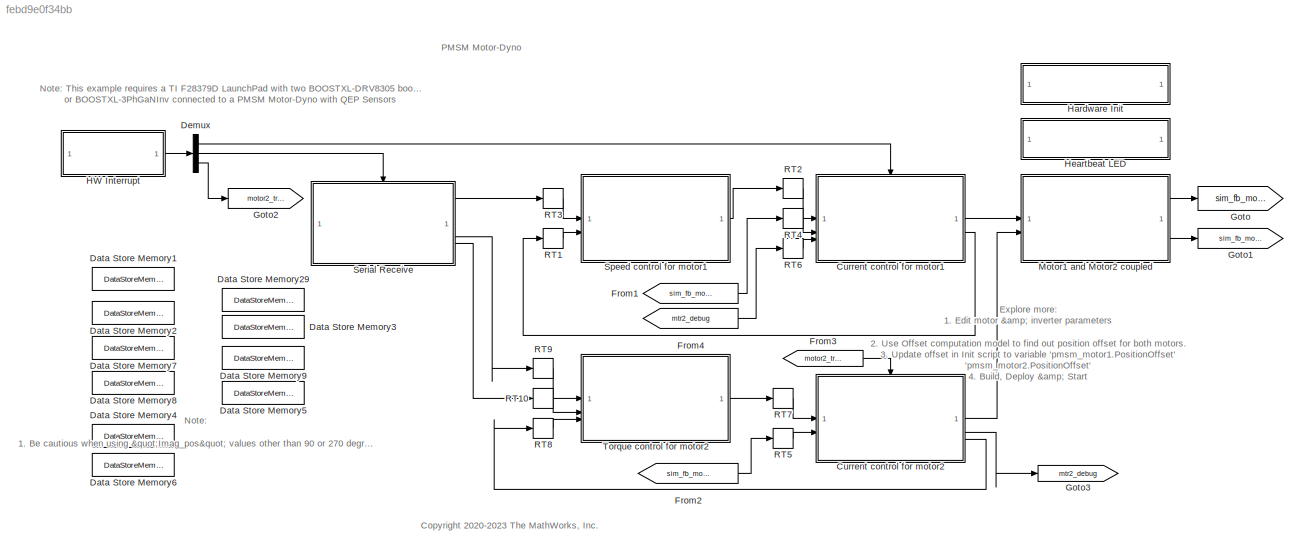
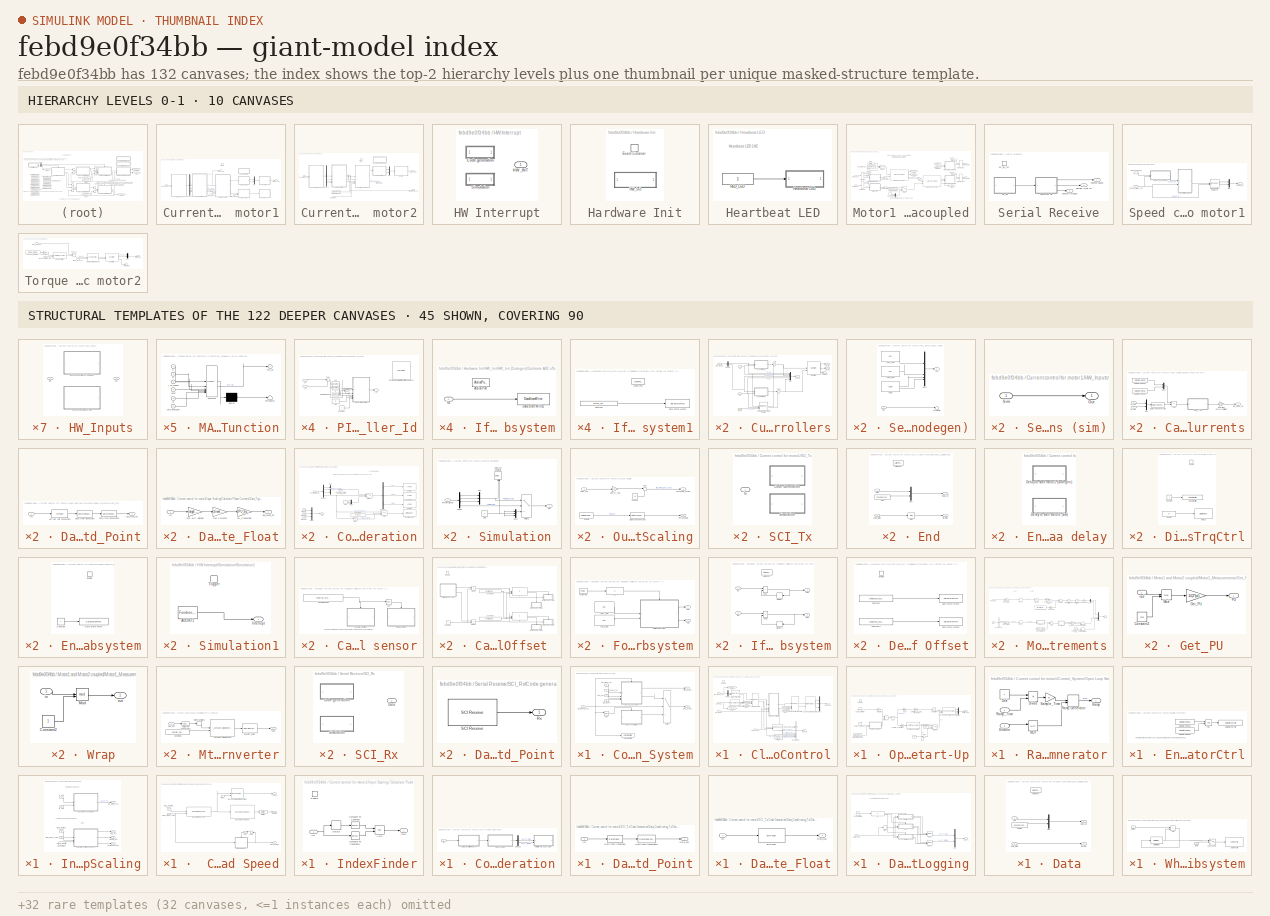
[diagram: thumbnail index - top-2 hierarchy levels (10 canvases) + 45 structural-template representatives of the remaining 122 canvases]
MODEL slx_febd9e0f34bb
KIND model
CONFIG AbsTol = auto
CONFIG EnableMultiTasking = on
CONFIG FixedStep = auto
CONFIG InitFcn = mcb_pmsm_foc_dyno_f28379d_data;\n\n
CONFIG MaxStep = auto
CONFIG MinStep = auto
CONFIG RelTol = 1e-3
CONFIG SampleTimeConstraint = Unconstrained
CONFIG SolverName = FixedStepDiscrete
CONFIG StartTime = 0.0
CONFIG StopTime = 10
WORKSPACE source: mxarray member
WORKSPACE encoderResolution = 2000
WORKSPACE hallOffset = '0.5'
WORKSPACE indexOffset = 850
WORKSPACE polePairs = '4'
BLOCK [SubSystem] Current control for motor1
  RTWMemSecFuncExecute = code_ramfuncs
  RTWSystemCode = Nonreusable function
BLOCK [SubSystem] Current control for motor1/Control_System
BLOCK [SubSystem] Current control for motor1/Control_System/Closed Loop Control
BLOCK [BusCreator] Current control for motor1/Control_System/Closed Loop Control/Bus Creator
  DisplayOption = bar
  InheritFromInputs = on
  Inputs = 6
BLOCK [Reference] Current control for motor1/Control_System/Closed Loop Control/Clarke Transform  REF=mcbcontrolslib/Clarke Transform
  SourceBlock = mcbcontrolslib/Clarke Transform
  SourceType = Clarke Transform
BLOCK [SubSystem] Current control for motor1/Control_System/Closed Loop Control/Current_Controllers
BLOCK [Reference] Current control for motor1/Control_System/Closed Loop Control/Current_Controllers/DQ Limiter  REF=mcbcontrolslib/DQ Limiter
  SourceBlock = mcbcontrolslib/DQ Limiter
  SourceType = DQ Limiter
BLOCK [Demux] Current control for motor1/Control_System/Closed Loop Control/Current_Controllers/Demux
  Outputs = 2
BLOCK [Inport] Current control for motor1/Control_System/Closed Loop Control/Current_Controllers/Id
BLOCK [Inport] Current control for motor1/Control_System/Closed Loop Control/Current_Controllers/Idq_ref_PU
  Port = 3
BLOCK [Inport] Current control for motor1/Control_System/Closed Loop Control/Current_Controllers/Iq
  Port = 2
BLOCK [Mux] Current control for motor1/Control_System/Closed Loop Control/Current_Controllers/Mux
  DisplayOption = bar
  Inputs = 6
BLOCK [SubSystem] Current control for motor1/Control_System/Closed Loop Control/Current_Controllers/PI_Controller_Id
  NameLocation = top
BLOCK [Constant] Current control for motor1/Control_System/Closed Loop Control/Current_Controllers/PI_Controller_Id/Constant
BLOCK [DataStoreRead] Current control for motor1/Control_System/Closed Loop Control/Current_Controllers/PI_Controller_Id/Data Store Read1
  DataStoreName = EnMtrCtrl
  IndexOptions = Index vector (dialog)
  Indices = 1
  OutputSizes = 1
BLOCK [Reference] Current control for motor1/Control_System/Closed Loop Control/Current_Controllers/PI_Controller_Id/Discrete PI Controller with anti-windup & reset  REF=slpidlib/PID Controller
  SourceBlock = slpidlib/PID Controller
  SourceType = PID 1dof
BLOCK [Inport] Current control for motor1/Control_System/Closed Loop Control/Current_Controllers/PI_Controller_Id/I_fb
  Port = 2
BLOCK [Inport] Current control for motor1/Control_System/Closed Loop Control/Current_Controllers/PI_Controller_Id/I_ref
BLOCK [Constant] Current control for motor1/Control_System/Closed Loop Control/Current_Controllers/PI_Controller_Id/Ki
  OutDataTypeStr = dataType
  SampleTime = -1
  Value = PI_params_motor1.Ki_i*Ts
BLOCK [Constant] Current control for motor1/Control_System/Closed Loop Control/Current_Controllers/PI_Controller_Id/Ki1
  NameLocation = top
  OutDataTypeStr = dataType
  SampleTime = -1
  Value = 0
BLOCK [Constant] Current control for motor1/Control_System/Closed Loop Control/Current_Controllers/PI_Controller_Id/Kp
  NameLocation = top
  OutDataTypeStr = dataType
  SampleTime = -1
  Value = PI_params_motor1.Kp_i
BLOCK [Logic] Current control for motor1/Control_System/Closed Loop Control/Current_Controllers/PI_Controller_Id/Logical Operator
  AllPortsSameDT = off
  IconShape = distinctive
  Operator = NOT
  OutDataTypeStr = boolean
BLOCK [SubSystem] Current control for motor1/Control_System/Closed Loop Control/Current_Controllers/PI_Controller_Id/MATLAB Function
  ErrorFcn = Stateflow.Translate.translate
  PermitHierarchicalResolution = ExplicitOnly
  SFBlockType = MATLAB Function
  TreatAsAtomicUnit = on
BLOCK [Demux] Current control for motor1/Control_System/Closed Loop Control/Current_Controllers/PI_Controller_Id/MATLAB Function/ Demux 
  Outputs = 1
BLOCK [S-Function] Current control for motor1/Control_System/Closed Loop Control/Current_Controllers/PI_Controller_Id/MATLAB Function/ SFunction 
  EnableBusSupport = on
  FunctionName = sf_sfun
  PortCounts = [6 2]
  SFcnIsStateOwnerBlock = off
  SFunctionDeploymentMode = off
  Tag = Stateflow S-Function 1
BLOCK [Terminator] Current control for motor1/Control_System/Closed Loop Control/Current_Controllers/PI_Controller_Id/MATLAB Function/ Terminator 
BLOCK [Inport] Current control for motor1/Control_System/Closed Loop Control/Current_Controllers/PI_Controller_Id/MATLAB Function/I_Ts_speed
  Port = 3
BLOCK [Inport] Current control for motor1/Control_System/Closed Loop Control/Current_Controllers/PI_Controller_Id/MATLAB Function/Id0
  Port = 5
BLOCK [Inport] Current control for motor1/Control_System/Closed Loop Control/Current_Controllers/PI_Controller_Id/MATLAB Function/P
  Port = 2
BLOCK [Outport] Current control for motor1/Control_System/Closed Loop Control/Current_Controllers/PI_Controller_Id/MATLAB Function/V_d_ref
BLOCK [Inport] Current control for motor1/Control_System/Closed Loop Control/Current_Controllers/PI_Controller_Id/MATLAB Function/e
BLOCK [Inport] Current control for motor1/Control_System/Closed Loop Control/Current_Controllers/PI_Controller_Id/MATLAB Function/reset
  Port = 4
BLOCK [Inport] Current control for motor1/Control_System/Closed Loop Control/Current_Controllers/PI_Controller_Id/MATLAB Function/saturation_limit
  Port = 6
BLOCK [Sum] Current control for motor1/Control_System/Closed Loop Control/Current_Controllers/PI_Controller_Id/Sum
  AccumDataTypeStr = Inherit: Same as first input
  Inputs = |+-
  OutDataTypeStr = Inherit: Same as first input
BLOCK [Outport] Current control for motor1/Control_System/Closed Loop Control/Current_Controllers/PI_Controller_Id/V_ref
  VectorParamsAs1DForOutWhenUnconnected = off
BLOCK [SubSystem] Current control for motor1/Control_System/Closed Loop Control/Current_Controllers/PI_Controller_Iq
  NameLocation = top
BLOCK [Constant] Current control for motor1/Control_System/Closed Loop Control/Current_Controllers/PI_Controller_Iq/Constant
BLOCK [DataStoreRead] Current control for motor1/Control_System/Closed Loop Control/Current_Controllers/PI_Controller_Iq/Data Store Read1
  DataStoreName = EnMtrCtrl
  IndexOptions = Index vector (dialog)
  Indices = 1
  OutputSizes = 1
BLOCK [Reference] Current control for motor1/Control_System/Closed Loop Control/Current_Controllers/PI_Controller_Iq/Discrete PI Controller with anti-windup & reset  REF=slpidlib/PID Controller
  SourceBlock = slpidlib/PID Controller
  SourceType = PID 1dof
BLOCK [Inport] Current control for motor1/Control_System/Closed Loop Control/Current_Controllers/PI_Controller_Iq/I_fb
  Port = 2
BLOCK [Inport] Current control for motor1/Control_System/Closed Loop Control/Current_Controllers/PI_Controller_Iq/I_ref
BLOCK [Constant] Current control for motor1/Control_System/Closed Loop Control/Current_Controllers/PI_Controller_Iq/Ki
  OutDataTypeStr = dataType
  SampleTime = -1
  Value = PI_params_motor1.Ki_i*Ts
BLOCK [Constant] Current control for motor1/Control_System/Closed Loop Control/Current_Controllers/PI_Controller_Iq/Kp
  NameLocation = top
  OutDataTypeStr = dataType
  SampleTime = -1
  Value = PI_params_motor1.Kp_i
BLOCK [Constant] Current control for motor1/Control_System/Closed Loop Control/Current_Controllers/PI_Controller_Iq/Kp1
  NameLocation = top
  OutDataTypeStr = dataType
  SampleTime = -1
  Value = 0
BLOCK [Logic] Current control for motor1/Control_System/Closed Loop Control/Current_Controllers/PI_Controller_Iq/Logical Operator
  AllPortsSameDT = off
  IconShape = distinctive
  Operator = NOT
  OutDataTypeStr = boolean
BLOCK [SubSystem] Current control for motor1/Control_System/Closed Loop Control/Current_Controllers/PI_Controller_Iq/MATLAB Function
  ErrorFcn = Stateflow.Translate.translate
  PermitHierarchicalResolution = ExplicitOnly
  SFBlockType = MATLAB Function
  TreatAsAtomicUnit = on
BLOCK [Demux] Current control for motor1/Control_System/Closed Loop Control/Current_Controllers/PI_Controller_Iq/MATLAB Function/ Demux 
  Outputs = 1
BLOCK [S-Function] Current control for motor1/Control_System/Closed Loop Control/Current_Controllers/PI_Controller_Iq/MATLAB Function/ SFunction 
  EnableBusSupport = on
  FunctionName = sf_sfun
  PortCounts = [6 2]
  SFcnIsStateOwnerBlock = off
  SFunctionDeploymentMode = off
  Tag = Stateflow S-Function 4
BLOCK [Terminator] Current control for motor1/Control_System/Closed Loop Control/Current_Controllers/PI_Controller_Iq/MATLAB Function/ Terminator 
BLOCK [Inport] Current control for motor1/Control_System/Closed Loop Control/Current_Controllers/PI_Controller_Iq/MATLAB Function/I_Ts_speed
  Port = 3
BLOCK [Inport] Current control for motor1/Control_System/Closed Loop Control/Current_Controllers/PI_Controller_Iq/MATLAB Function/Iq0
  Port = 5
BLOCK [Inport] Current control for motor1/Control_System/Closed Loop Control/Current_Controllers/PI_Controller_Iq/MATLAB Function/P
  Port = 2
BLOCK [Outport] Current control for motor1/Control_System/Closed Loop Control/Current_Controllers/PI_Controller_Iq/MATLAB Function/V_q_ref
BLOCK [Inport] Current control for motor1/Control_System/Closed Loop Control/Current_Controllers/PI_Controller_Iq/MATLAB Function/e
BLOCK [Inport] Current control for motor1/Control_System/Closed Loop Control/Current_Controllers/PI_Controller_Iq/MATLAB Function/reset
  Port = 4
BLOCK [Inport] Current control for motor1/Control_System/Closed Loop Control/Current_Controllers/PI_Controller_Iq/MATLAB Function/saturation_limit
  Port = 6
BLOCK [Sum] Current control for motor1/Control_System/Closed Loop Control/Current_Controllers/PI_Controller_Iq/Sum
  AccumDataTypeStr = Inherit: Same as first input
  Inputs = |+-
  OutDataTypeStr = Inherit: Same as first input
BLOCK [Outport] Current control for motor1/Control_System/Closed Loop Control/Current_Controllers/PI_Controller_Iq/V_ref
  VectorParamsAs1DForOutWhenUnconnected = off
BLOCK [Reference] Current control for motor1/Control_System/Closed Loop Control/Current_Controllers/PMSM Feed Forward Control  REF=mcbpmsmnonlinearlib/PMSM FeedForward Control
  SourceBlock = mcbpmsmnonlinearlib/PMSM FeedForward Control
  SourceType = PMSM FeedForward Control
BLOCK [Sum] Current control for motor1/Control_System/Closed Loop Control/Current_Controllers/Sum
  Inputs = |++
BLOCK [Sum] Current control for motor1/Control_System/Closed Loop Control/Current_Controllers/Sum1
  Inputs = |++
BLOCK [Terminator] Current control for motor1/Control_System/Closed Loop Control/Current_Controllers/Terminator
BLOCK [Outport] Current control for motor1/Control_System/Closed Loop Control/Current_Controllers/Vd_ref
  VectorParamsAs1DForOutWhenUnconnected = off
BLOCK [Outport] Current control for motor1/Control_System/Closed Loop Control/Current_Controllers/Vq_ref
  Port = 2
  VectorParamsAs1DForOutWhenUnconnected = off
BLOCK [Inport] Current control for motor1/Control_System/Closed Loop Control/Current_Controllers/Wm_fb
  Port = 4
BLOCK [Outport] Current control for motor1/Control_System/Closed Loop Control/Current_Controllers/debug
  Port = 3
  VectorParamsAs1DForOutWhenUnconnected = off
BLOCK [Demux] Current control for motor1/Control_System/Closed Loop Control/Demux
  Outputs = 2
BLOCK [EnablePort] Current control for motor1/Control_System/Closed Loop Control/Enable
BLOCK [From] Current control for motor1/Control_System/Closed Loop Control/From
  GotoTag = sinTheta
BLOCK [From] Current control for motor1/Control_System/Closed Loop Control/From1
  GotoTag = cosTheta
BLOCK [From] Current control for motor1/Control_System/Closed Loop Control/From2
  GotoTag = Iab_meas_PU
BLOCK [From] Current control for motor1/Control_System/Closed Loop Control/From3
  GotoTag = Pos_PU
BLOCK [Goto] Current control for motor1/Control_System/Closed Loop Control/Goto
  GotoTag = sinTheta
BLOCK [Goto] Current control for motor1/Control_System/Closed Loop Control/Goto1
  GotoTag = cosTheta
BLOCK [Goto] Current control for motor1/Control_System/Closed Loop Control/Goto2
  GotoTag = Iab_meas_PU
BLOCK [Goto] Current control for motor1/Control_System/Closed Loop Control/Goto3
  GotoTag = Pos_PU
BLOCK [Inport] Current control for motor1/Control_System/Closed Loop Control/Iab_meas_PU
BLOCK [Inport] Current control for motor1/Control_System/Closed Loop Control/Idq_ref_PU
  Port = 4
BLOCK [Reference] Current control for motor1/Control_System/Closed Loop Control/Inverse Park Transform  REF=mcbcontrolslib/Inverse Park Transform
  SourceBlock = mcbcontrolslib/Inverse Park Transform
  SourceType = Inverse Park Transform
BLOCK [Mux] Current control for motor1/Control_System/Closed Loop Control/Mux1
  DisplayOption = bar
  Inputs = 3
BLOCK [Reference] Current control for motor1/Control_System/Closed Loop Control/PMSM Torque Estimator1  REF=mcbpmsmnonlinearlib/PMSM Torque Estimator
  SourceBlock = mcbpmsmnonlinearlib/PMSM Torque Estimator
  SourceType = PMSM Torque Estimator
BLOCK [Reference] Current control for motor1/Control_System/Closed Loop Control/Park Transform  REF=mcbcontrolslib/Park Transform
  SourceBlock = mcbcontrolslib/Park Transform
  SourceType = Park Transform
BLOCK [Inport] Current control for motor1/Control_System/Closed Loop Control/Pos_PU
  Port = 3
BLOCK [Reference] Current control for motor1/Control_System/Closed Loop Control/Sine-Cosine Lookup  REF=mcbcontrolslib/SinCos Embedded Optimized
  SourceBlock = mcbcontrolslib/SinCos Embedded Optimized
  SourceType = SinCos Embedded Optimized
BLOCK [Reference] Current control for motor1/Control_System/Closed Loop Control/Space Vector Generator  REF=mcbcontrolslib/PWM Reference Generator
  SourceBlock = mcbcontrolslib/PWM Reference Generator
  SourceType = PWM Modulation
BLOCK [Outport] Current control for motor1/Control_System/Closed Loop Control/Vabc in PU
  Port = 2
  VectorParamsAs1DForOutWhenUnconnected = off
BLOCK [Outport] Current control for motor1/Control_System/Closed Loop Control/debug
  VectorParamsAs1DForOutWhenUnconnected = off
BLOCK [Inport] Current control for motor1/Control_System/Closed Loop Control/speed_PU
  Port = 2
BLOCK [DataStoreWrite] Current control for motor1/Control_System/Data Store Write
  DataStoreName = EnClosedLoop
  IndexOptions = Index vector (dialog)
  Indices = 1
  OutputSizes = 1
BLOCK [Outport] Current control for motor1/Control_System/Duty_Cycles
  VectorParamsAs1DForOutWhenUnconnected = off
BLOCK [Inport] Current control for motor1/Control_System/EnClosedLoop
  Port = 4
BLOCK [Inport] Current control for motor1/Control_System/Iab_meas_PU
  Port = 2
BLOCK [Inport] Current control for motor1/Control_System/Idq_ref_PU
  Port = 5
BLOCK [Logic] Current control for motor1/Control_System/NOT
  AllPortsSameDT = off
  IconShape = distinctive
  Operator = NOT
  OutDataTypeStr = boolean
BLOCK [SubSystem] Current control for motor1/Control_System/Open Loop Start-Up
BLOCK [Constant] Current control for motor1/Control_System/Open Loop Start-Up/ 
  OutDataTypeStr = dataType
  SampleTime = -1
  Value = 2*pi
BLOCK [Reference] Current control for motor1/Control_System/Open Loop Start-Up/3-Phase Sine Voltage Generator  REF=mcbcontrolslib/3-Phase Sine Voltage Generator
  SourceBlock = mcbcontrolslib/3-Phase Sine Voltage Generator
  SourceType = 3-Phase Sine Voltage Generator
BLOCK [Abs] Current control for motor1/Control_System/Open Loop Start-Up/Abs
  SaturateOnIntegerOverflow = off
BLOCK [Gain] Current control for motor1/Control_System/Open Loop Start-Up/Correction_Factor_sinePWM
  Gain = 2/sqrt(3)
  OutDataTypeStr = Inherit: Same as input
  RndMeth = Simplest
BLOCK [DataStoreRead] Current control for motor1/Control_System/Open Loop Start-Up/Data Store Read
  DataStoreName = SpeedRef
  IndexOptions = Index vector (dialog)
  Indices = 1
  OutputSizes = 1
BLOCK [DataStoreRead] Current control for motor1/Control_System/Open Loop Start-Up/Data Store Read1
  DataStoreName = Enable
  IndexOptions = Index vector (dialog)
  Indices = 1
  OutputSizes = 1
BLOCK [Switch] Current control for motor1/Control_System/Open Loop Start-Up/Direction
  Criteria = u2 > Threshold
  InputSameDT = off
  OutDataTypeStr = dataType
  RndMeth = Simplest
  SaturateOnIntegerOverflow = off
BLOCK [EnablePort] Current control for motor1/Control_System/Open Loop Start-Up/Enable
BLOCK [Mux] Current control for motor1/Control_System/Open Loop Start-Up/Mux1
  DisplayOption = bar
  Inputs = 3
BLOCK [Outport] Current control for motor1/Control_System/Open Loop Start-Up/PWM_Duty
  VectorParamsAs1DForOutWhenUnconnected = off
BLOCK [Reference] Current control for motor1/Control_System/Open Loop Start-Up/Position Generator1  REF=mcbcontrolslib/Position Generator
  SourceBlock = mcbcontrolslib/Position Generator
  SourceType = Position Generator
BLOCK [Product] Current control for motor1/Control_System/Open Loop Start-Up/Product
  OutDataTypeStr = Inherit: Same as first input
  RndMeth = Simplest
BLOCK [SubSystem] Current control for motor1/Control_System/Open Loop Start-Up/Ramp Generator
BLOCK [Product] Current control for motor1/Control_System/Open Loop Start-Up/Ramp Generator/Divide
  Inputs = */
  OutDataTypeStr = Inherit: Same as first input
  RndMeth = Simplest
BLOCK [Inport] Current control for motor1/Control_System/Open Loop Start-Up/Ramp Generator/Enable
  Port = 2
BLOCK [Logic] Current control for motor1/Control_System/Open Loop Start-Up/Ramp Generator/NOT
  AllPortsSameDT = off
  IconShape = distinctive
  Operator = NOT
  OutDataTypeStr = boolean
BLOCK [Constant] Current control for motor1/Control_System/Open Loop Start-Up/Ramp Generator/One
  OutDataTypeStr = dataType
  SampleTime = -1
BLOCK [Outport] Current control for motor1/Control_System/Open Loop Start-Up/Ramp Generator/Ramp
BLOCK [DiscreteIntegrator] Current control for motor1/Control_System/Open Loop Start-Up/Ramp Generator/Ramp Generator
  ExternalReset = sampled level
  ICPrevOutput = DiscIntNeverNeededParam
  ICPrevScaledInput = DiscIntNeverNeededParam
  IntegratorMethod = Accumulation: Forward Euler
  LimitOutput = on
  LowerSaturationLimit = 0
  OutDataTypeStr = dataType
  RndMeth = Simplest
  SampleTime = -1
  UpperSaturationLimit = 1
  gainval = 1
BLOCK [Inport] Current control for motor1/Control_System/Open Loop Start-Up/Ramp Generator/Ramp_Time
BLOCK [Gain] Current control for motor1/Control_System/Open Loop Start-Up/Ramp Generator/Sample_Time
  Gain = Ts
  OutDataTypeStr = Inherit: Same as input
  RndMeth = Simplest
BLOCK [Constant] Current control for motor1/Control_System/Open Loop Start-Up/Ramp_Time (sec)
  OutDataTypeStr = dataType
  SampleTime = -1
  Value = 3
BLOCK [Saturate] Current control for motor1/Control_System/Open Loop Start-Up/Saturation
  LowerLimit = 0.15
  RndMeth = Simplest
  UpperLimit = 0.95
BLOCK [Constant] Current control for motor1/Control_System/Open Loop Start-Up/Speed_ref(rpm)
  OutDataTypeStr = dataType
  SampleTime = -1
  Value = 0.1 * pmsm_motor1.N_base
BLOCK [Sum] Current control for motor1/Control_System/Open Loop Start-Up/Sum
  AccumDataTypeStr = Inherit: Same as first input
  Inputs = |+-
  OutDataTypeStr = Inherit: Same as first input
  RndMeth = Simplest
BLOCK [Gain] Current control for motor1/Control_System/Open Loop Start-Up/V-by-f
  Gain = 1/(pmsm_motor1.N_base*pmsm_motor1.p*2/120)
  OutDataTypeStr = Inherit: Same as input
  RndMeth = Simplest
BLOCK [Gain] Current control for motor1/Control_System/Open Loop Start-Up/position_increment
  Gain = 2*pi*Ts
  OutDataTypeStr = Inherit: Same as input
  RndMeth = Simplest
BLOCK [Gain] Current control for motor1/Control_System/Open Loop Start-Up/rpm2freq
  Gain = pmsm_motor1.p/60
  OutDataTypeStr = Inherit: Same as input
  RndMeth = Simplest
BLOCK [Inport] Current control for motor1/Control_System/Pos_PU
  Port = 3
BLOCK [Switch] Current control for motor1/Control_System/Switch
  Criteria = u2 > Threshold
  InputSameDT = off
  SaturateOnIntegerOverflow = off
  Threshold = 0.5
BLOCK [Outport] Current control for motor1/Control_System/mtr1_debug
  Port = 2
  VectorParamsAs1DForOutWhenUnconnected = off
BLOCK [Inport] Current control for motor1/Control_System/speed_PU
BLOCK [Demux] Current control for motor1/Demux1
BLOCK [Outport] Current control for motor1/Duty Cycles
  InitialOutput = 0
  VectorParamsAs1DForOutWhenUnconnected = off
BLOCK [SubSystem] Current control for motor1/Enable MotorCtrl
BLOCK [Logic] Current control for motor1/Enable MotorCtrl/AND
  AllPortsSameDT = off
  IconShape = distinctive
  OutDataTypeStr = boolean
BLOCK [DataStoreRead] Current control for motor1/Enable MotorCtrl/Data Store Read1
  DataStoreName = Enable
  IndexOptions = Index vector (dialog)
  Indices = 1
  OutputSizes = 1
BLOCK [DataStoreRead] Current control for motor1/Enable MotorCtrl/Data Store Read2
  DataStoreName = EnClosedLoop
  IndexOptions = Index vector (dialog)
  Indices = 1
  OutputSizes = 1
BLOCK [DataStoreWrite] Current control for motor1/Enable MotorCtrl/Data Store Write
  DataStoreName = EnMtrCtrl
  IndexOptions = Index vector (dialog)
  Indices = 1
  OutputSizes = 1
BLOCK [Inport] Current control for motor1/Feedbacks_sim
  Port = 2
BLOCK [SubSystem] Current control for motor1/HW_Inputs
  Variant = on
  VariantControlMode = sim codegen switching
BLOCK [Outport] Current control for motor1/HW_Inputs/Out
BLOCK [SubSystem] Current control for motor1/HW_Inputs/Sensor Driver Blocks (codegen)
  VariantControl = (codegen)
BLOCK [Reference] Current control for motor1/HW_Inputs/Sensor Driver Blocks (codegen)/ADC_B_IN2  REF=c2802xlib/ADC
  SourceBlock = c2802xlib/ADC
  SourceType = ADC Type 3-5
  UserDataPersistent = on
BLOCK [Reference] Current control for motor1/HW_Inputs/Sensor Driver Blocks (codegen)/ADC_C_IN2  REF=c2802xlib/ADC
  SourceBlock = c2802xlib/ADC
  SourceType = ADC Type 3-5
  UserDataPersistent = on
BLOCK [Mux] Current control for motor1/HW_Inputs/Sensor Driver Blocks (codegen)/Mux1
  DisplayOption = bar
BLOCK [Outport] Current control for motor1/HW_Inputs/Sensor Driver Blocks (codegen)/Out
BLOCK [Inport] Current control for motor1/HW_Inputs/Sensor Driver Blocks (codegen)/Sim
BLOCK [Terminator] Current control for motor1/HW_Inputs/Sensor Driver Blocks (codegen)/Terminator
BLOCK [Reference] Current control for motor1/HW_Inputs/Sensor Driver Blocks (codegen)/eQEP  REF=c280xlib/eQEP
  SourceBlock = c280xlib/eQEP
  SourceType = C28x eQEP
BLOCK [SubSystem] Current control for motor1/HW_Inputs/Sensor Driver Blocks (sim)
  VariantControl = (sim)
BLOCK [Outport] Current control for motor1/HW_Inputs/Sensor Driver Blocks (sim)/Out
BLOCK [Inport] Current control for motor1/HW_Inputs/Sensor Driver Blocks (sim)/Sim
BLOCK [Inport] Current control for motor1/HW_Inputs/Sim
BLOCK [Inport] Current control for motor1/Idq_ref_PU
BLOCK [SubSystem] Current control for motor1/Input Scaling
BLOCK [SubSystem] Current control for motor1/Input Scaling/ Calculate Position and Speed
BLOCK [Delay] Current control for motor1/Input Scaling/ Calculate Position and Speed/Delay
  DelayLength = 1
  InputPortMap = u0
BLOCK [Reference] Current control for motor1/Input Scaling/ Calculate Position and Speed/IIR Filter  REF=mcbcontrolslib/IIR Filter
  SourceBlock = mcbcontrolslib/IIR Filter
  SourceType = IIR Filter
BLOCK [SubSystem] Current control for motor1/Input Scaling/ Calculate Position and Speed/IndexFinder
BLOCK [Logic] Current control for motor1/Input Scaling/ Calculate Position and Speed/IndexFinder/AND
  AllPortsSameDT = off
  OutDataTypeStr = boolean
BLOCK [Reference] Current control for motor1/Input Scaling/ Calculate Position and Speed/IndexFinder/Compare To Constant  REF=simulink/Logic and Bit
Operations/Compare
To Constant
  SourceBlock = simulink/Logic and Bit\nOperations/Compare\nTo Constant
  SourceType = Compare To Constant
BLOCK [Reference] Current control for motor1/Input Scaling/ Calculate Position and Speed/IndexFinder/Compare To Constant1  REF=simulink/Logic and Bit
Operations/Compare
To Constant
  SourceBlock = simulink/Logic and Bit\nOperations/Compare\nTo Constant
  SourceType = Compare To Constant
BLOCK [Delay] Current control for motor1/Input Scaling/ Calculate Position and Speed/IndexFinder/Delay3
  DelayLength = 1
  InputPortMap = u0
BLOCK [EnablePort] Current control for motor1/Input Scaling/ Calculate Position and Speed/IndexFinder/Enable
BLOCK [Inport] Current control for motor1/Input Scaling/ Calculate Position and Speed/IndexFinder/In1
BLOCK [Outport] Current control for motor1/Input Scaling/ Calculate Position and Speed/IndexFinder/Out1
BLOCK [Outport] Current control for motor1/Input Scaling/ Calculate Position and Speed/IndexFound
  InitialOutput = 0
  Port = 3
  VectorParamsAs1DForOutWhenUnconnected = off
BLOCK [Reference] Current control for motor1/Input Scaling/ Calculate Position and Speed/Mechanical to Electrical Position  REF=mcbpositiondecoderlib/Mechanical to Electrical Position
  SourceBlock = mcbpositiondecoderlib/Mechanical to Electrical Position
  SourceType = Mechanical to Electrical Position
BLOCK [Logic] Current control for motor1/Input Scaling/ Calculate Position and Speed/NOT
  AllPortsSameDT = off
  Operator = NOT
  OutDataTypeStr = boolean
BLOCK [Inport] Current control for motor1/Input Scaling/ Calculate Position and Speed/Offset
  Port = 3
BLOCK [Inport] Current control for motor1/Input Scaling/ Calculate Position and Speed/QEP_Index_Latch
  Port = 2
BLOCK [Inport] Current control for motor1/Input Scaling/ Calculate Position and Speed/QEP_Position_Count
BLOCK [Reference] Current control for motor1/Input Scaling/ Calculate Position and Speed/Quadrature Decoder  REF=mcbpositiondecoderlib/Quadrature Decoder
  SourceBlock = mcbpositiondecoderlib/Quadrature Decoder
  SourceType = Quadrature Decoder
BLOCK [Reference] Current control for motor1/Input Scaling/ Calculate Position and Speed/Speed Measurement  REF=mcbpositiondecoderlib/Speed Measurement
  SourceBlock = mcbpositiondecoderlib/Speed Measurement
  SourceType = Speed Measurement
BLOCK [Outport] Current control for motor1/Input Scaling/ Calculate Position and Speed/Theta_e
  VectorParamsAs1DForOutWhenUnconnected = off
BLOCK [Outport] Current control for motor1/Input Scaling/ Calculate Position and Speed/speed
  Port = 2
  VectorParamsAs1DForOutWhenUnconnected = off
BLOCK [SubSystem] Current control for motor1/Input Scaling/Calculate Phase Currents
BLOCK [Sum] Current control for motor1/Input Scaling/Calculate Phase Currents/Add
  IconShape = rectangular
  Inputs = -+
BLOCK [DataStoreRead] Current control for motor1/Input Scaling/Calculate Phase Currents/Data Store Read1
  DataStoreName = IaOffset_motor1
  IndexOptions = Index vector (dialog)
  Indices = 1
  OutputSizes = 1
BLOCK [DataStoreRead] Current control for motor1/Input Scaling/Calculate Phase Currents/Data Store Read2
  DataStoreName = IbOffset_motor1
  IndexOptions = Index vector (dialog)
  Indices = 1
  OutputSizes = 1
BLOCK [DataTypeConversion] Current control for motor1/Input Scaling/Calculate Phase Currents/Data Type Conversion
  ConvertRealWorld = Stored Integer (SI)
  OutDataTypeStr = int32
  RndMeth = Simplest
  SaturateOnIntegerOverflow = off
BLOCK [SubSystem] Current control for motor1/Input Scaling/Calculate Phase Currents/Data_Type
  Variant = on
BLOCK [SubSystem] Current control for motor1/Input Scaling/Calculate Phase Currents/Data_Type/Data_Type_Fixed_Point
  VariantControl = ~isequal(dataType,'single')
BLOCK [DataTypeConversion] Current control for motor1/Input Scaling/Calculate Phase Currents/Data_Type/Data_Type_Fixed_Point/Data Type Conversion
  ConvertRealWorld = Stored Integer (SI)
  OutDataTypeStr = fixdt(1,32,17)
  RndMeth = Simplest
  SaturateOnIntegerOverflow = off
BLOCK [DataTypeConversion] Current control for motor1/Input Scaling/Calculate Phase Currents/Data_Type/Data_Type_Fixed_Point/Data Type Conversion1
  OutDataTypeStr = dataType
  RndMeth = Simplest
  SaturateOnIntegerOverflow = off
BLOCK [Outport] Current control for motor1/Input Scaling/Calculate Phase Currents/Data_Type/Data_Type_Fixed_Point/Iab_meas_PU
BLOCK [Inport] Current control for motor1/Input Scaling/Calculate Phase Currents/Data_Type/Data_Type_Fixed_Point/In1
BLOCK [ArithShift] Current control for motor1/Input Scaling/Calculate Phase Currents/Data_Type/Data_Type_Fixed_Point/Q17 per unit conversion
  BitShiftNumber = -6
  InputPortMap = u0
BLOCK [SubSystem] Current control for motor1/Input Scaling/Calculate Phase Currents/Data_Type/Data_Type_Float
  VariantControl = isequal(dataType,'single')
BLOCK [Gain] Current control for motor1/Input Scaling/Calculate Phase Currents/Data_Type/Data_Type_Float/Get ADC Voltage
  Gain = target.ADC_Vref /target.ADC_MaxCount
  OutDataTypeStr = dataType
  RndMeth = Simplest
BLOCK [Gain] Current control for motor1/Input Scaling/Calculate Phase Currents/Data_Type/Data_Type_Float/Get Currents
  Gain = 1/inverter_motor1.ISenseVoltPerAmp
  OutDataTypeStr = Inherit: Same as input
  RndMeth = Simplest
BLOCK [Outport] Current control for motor1/Input Scaling/Calculate Phase Currents/Data_Type/Data_Type_Float/Iab_meas_PU
BLOCK [Inport] Current control for motor1/Input Scaling/Calculate Phase Currents/Data_Type/Data_Type_Float/In1
BLOCK [Gain] Current control for motor1/Input Scaling/Calculate Phase Currents/Data_Type/Data_Type_Float/PU_Conversion
  Gain = 1/PU_System_motor1.I_base
  OutDataTypeStr = Inherit: Same as input
  RndMeth = Simplest
BLOCK [Outport] Current control for motor1/Input Scaling/Calculate Phase Currents/Data_Type/Iab_meas_PU
BLOCK [Inport] Current control for motor1/Input Scaling/Calculate Phase Currents/Data_Type/In1
BLOCK [Inport] Current control for motor1/Input Scaling/Calculate Phase Currents/Ia_ADC
BLOCK [Outport] Current control for motor1/Input Scaling/Calculate Phase Currents/Iab_meas_PU
  VectorParamsAs1DForOutWhenUnconnected = off
BLOCK [Inport] Current control for motor1/Input Scaling/Calculate Phase Currents/Ib_ADC
  Port = 2
BLOCK [Gain] Current control for motor1/Input Scaling/Calculate Phase Currents/Inverting // Non-inverting Current measurement amplifieer
  Gain = inverter_motor1.invertingAmp
  OutDataTypeStr = Inherit: Same as input
  RndMeth = Simplest
BLOCK [Mux] Current control for motor1/Input Scaling/Calculate Phase Currents/Mux
  DisplayOption = bar
  Inputs = 2
BLOCK [Mux] Current control for motor1/Input Scaling/Calculate Phase Currents/Mux1
  DisplayOption = bar
  Inputs = 2
BLOCK [Outport] Current control for motor1/Input Scaling/EnClosedLoop
  Port = 4
BLOCK [Inport] Current control for motor1/Input Scaling/Ia_ADC
BLOCK [Outport] Current control for motor1/Input Scaling/Iab_meas_PU
  Port = 2
BLOCK [Inport] Current control for motor1/Input Scaling/Ib_ADC
  Port = 2
BLOCK [Constant] Current control for motor1/Input Scaling/IndexOffset
  OutDataTypeStr = dataType
  SampleTime = -1
  Value = pmsm_motor1.PositionOffset
BLOCK [Outport] Current control for motor1/Input Scaling/Pos_PU
  Port = 3
BLOCK [Inport] Current control for motor1/Input Scaling/QEP_Index_Latch
  Port = 4
BLOCK [Inport] Current control for motor1/Input Scaling/QEP_Position_Count
  Port = 3
BLOCK [Outport] Current control for motor1/Input Scaling/speed_PU
BLOCK [SubSystem] Current control for motor1/Inverter
  Variant = on
  VariantControlMode = sim codegen switching
BLOCK [SubSystem] Current control for motor1/Inverter/Code Generation
  VariantControl = (codegen)
BLOCK [Constant] Current control for motor1/Inverter/Code Generation/Constant
  Value = inverter_motor1.EnableLogic
BLOCK [Demux] Current control for motor1/Inverter/Code Generation/Demux
BLOCK [Demux] Current control for motor1/Inverter/Code Generation/Demux1
  Outputs = 3
BLOCK [Ground] Current control for motor1/Inverter/Code Generation/Ground
BLOCK [Ground] Current control for motor1/Inverter/Code Generation/Ground1
BLOCK [Ground] Current control for motor1/Inverter/Code Generation/Ground2
BLOCK [Inport] Current control for motor1/Inverter/Code Generation/Inverter Signals
BLOCK [Reference] Current control for motor1/Inverter/Code Generation/Inverter enable  REF=c2837xDlib/Digital Output
  SourceBlock = c2837xDlib/Digital Output
  SourceType = F2837x GPIO Digital Output
  UserDataPersistent = on
BLOCK [Mux] Current control for motor1/Inverter/Code Generation/Mux
  DisplayOption = bar
  Inputs = 3
BLOCK [Mux] Current control for motor1/Inverter/Code Generation/Mux1
  DisplayOption = bar
  Inputs = 3
BLOCK [Mux] Current control for motor1/Inverter/Code Generation/Mux2
  DisplayOption = bar
  Inputs = 3
BLOCK [Logic] Current control for motor1/Inverter/Code Generation/NOT
  AllPortsSameDT = off
  IconShape = distinctive
  Operator = NOT
  OutDataTypeStr = boolean
BLOCK [Gain] Current control for motor1/Inverter/Code Generation/Scale_to_PWM_Counter_PRD
  Gain = target.PWM_Counter_Period
  OutDataTypeStr = uint16
  RndMeth = Simplest
BLOCK [Outport] Current control for motor1/Inverter/Code Generation/Sim
  VectorParamsAs1DForOutWhenUnconnected = off
BLOCK [Switch] Current control for motor1/Inverter/Code Generation/Switch
  Criteria = u2 > Threshold
  InputSameDT = off
  SaturateOnIntegerOverflow = off
BLOCK [Switch] Current control for motor1/Inverter/Code Generation/Switch1
  InputSameDT = off
  SaturateOnIntegerOverflow = off
  Threshold = 0.5
BLOCK [Reference] Current control for motor1/Inverter/Code Generation/ePWM1  REF=c2802xlib/ePWM
  SourceBlock = c2802xlib/ePWM
  SourceType = ePWM Type 1-4
  UserDataPersistent = on
BLOCK [Reference] Current control for motor1/Inverter/Code Generation/ePWM2  REF=c2802xlib/ePWM
  SourceBlock = c2802xlib/ePWM
  SourceType = ePWM Type 1-4
  UserDataPersistent = on
BLOCK [Reference] Current control for motor1/Inverter/Code Generation/ePWM3  REF=c2802xlib/ePWM
  SourceBlock = c2802xlib/ePWM
  SourceType = ePWM Type 1-4
  UserDataPersistent = on
BLOCK [Constant] Current control for motor1/Inverter/Code Generation/stop
  OutDataTypeStr = uint16
  Value = 0
BLOCK [Inport] Current control for motor1/Inverter/Inverter Signals
BLOCK [Outport] Current control for motor1/Inverter/Sim
  VectorParamsAs1DForOutWhenUnconnected = off
BLOCK [SubSystem] Current control for motor1/Inverter/Simulation
  VariantControl = (sim)
BLOCK [DataTypeDuplicate] Current control for motor1/Inverter/Simulation/Data Type Duplicate
BLOCK [Demux] Current control for motor1/Inverter/Simulation/Demux
BLOCK [Inport] Current control for motor1/Inverter/Simulation/Inverter Signals
BLOCK [Mux] Current control for motor1/Inverter/Simulation/Mux
  DisplayOption = bar
  Inputs = 3
BLOCK [Mux] Current control for motor1/Inverter/Simulation/Mux2
  DisplayOption = bar
  Inputs = 3
BLOCK [Outport] Current control for motor1/Inverter/Simulation/Sim
  VectorParamsAs1DForOutWhenUnconnected = off
BLOCK [Switch] Current control for motor1/Inverter/Simulation/Switch1
  InputSameDT = off
  RndMeth = Simplest
  SaturateOnIntegerOverflow = off
  Threshold = 0.5
BLOCK [Constant] Current control for motor1/Inverter/Simulation/stop
  OutDataTypeStr = Inherit: Inherit via back propagation
  Value = 0
BLOCK [Mux] Current control for motor1/Mux
  DisplayOption = bar
  Inputs = 2
BLOCK [SubSystem] Current control for motor1/Output Scaling
BLOCK [Constant] Current control for motor1/Output Scaling/Constant
  OutDataTypeStr = dataType
  SampleTime = -1
  Value = 0.5
BLOCK [DataTypeConversion] Current control for motor1/Output Scaling/Data Type Conversion
  OutDataTypeStr = dataType
  RndMeth = Floor
  SaturateOnIntegerOverflow = off
BLOCK [DataStoreRead] Current control for motor1/Output Scaling/Enable
  DataStoreName = Enable
  IndexOptions = Index vector (dialog)
  Indices = 1
  OutputSizes = 1
BLOCK [Gain] Current control for motor1/Output Scaling/One_by_Two
  Gain = 0.5
  OutDataTypeStr = Inherit: Same as input
  RndMeth = Simplest
BLOCK [Outport] Current control for motor1/Output Scaling/PWM_Duty_Cycles
BLOCK [Outport] Current control for motor1/Output Scaling/PWM_Enable
  Port = 2
BLOCK [Sum] Current control for motor1/Output Scaling/Sum
  AccumDataTypeStr = Inherit: Same as first input
  Inputs = |++
BLOCK [Inport] Current control for motor1/Output Scaling/Vabc_ref
BLOCK [SubSystem] Current control for motor1/SCI_Tx
  Variant = on
  VariantControlMode = sim codegen switching
BLOCK [SubSystem] Current control for motor1/SCI_Tx/Code Generation
  VariantControl = (codegen)
BLOCK [SubSystem] Current control for motor1/SCI_Tx/Code Generation/Data_Conditioning_Tx
  Variant = on
BLOCK [Outport] Current control for motor1/SCI_Tx/Code Generation/Data_Conditioning_Tx/Data_Log
BLOCK [SubSystem] Current control for motor1/SCI_Tx/Code Generation/Data_Conditioning_Tx/Data_Type_Fixed_Point
  VariantControl = ~isequal(dataType,'single')
BLOCK [DataTypeConversion] Current control for motor1/SCI_Tx/Code Generation/Data_Conditioning_Tx/Data_Type_Fixed_Point/Data Type Conversion
  OutDataTypeStr = fixdt(1,32,28)
  RndMeth = Simplest
  SaturateOnIntegerOverflow = off
BLOCK [DataTypeConversion] Current control for motor1/SCI_Tx/Code Generation/Data_Conditioning_Tx/Data_Type_Fixed_Point/Data Type Conversion3
  ConvertRealWorld = Stored Integer (SI)
  OutDataTypeStr = uint32
  RndMeth = Simplest
  SaturateOnIntegerOverflow = off
BLOCK [Outport] Current control for motor1/SCI_Tx/Code Generation/Data_Conditioning_Tx/Data_Type_Fixed_Point/Data_Log
BLOCK [Inport] Current control for motor1/SCI_Tx/Code Generation/Data_Conditioning_Tx/Data_Type_Fixed_Point/In1
BLOCK [SubSystem] Current control for motor1/SCI_Tx/Code Generation/Data_Conditioning_Tx/Data_Type_Float
  VariantControl = isequal(dataType, 'single')
BLOCK [Reference] Current control for motor1/SCI_Tx/Code Generation/Data_Conditioning_Tx/Data_Type_Float/Byte Pack  REF=svdutilitieslib/Byte Pack
  SourceBlock = svdutilitieslib/Byte Pack
  SourceType = Byte pack
BLOCK [Outport] Current control for motor1/SCI_Tx/Code Generation/Data_Conditioning_Tx/Data_Type_Float/Data_Log
BLOCK [Inport] Current control for motor1/SCI_Tx/Code Generation/Data_Conditioning_Tx/Data_Type_Float/In1
BLOCK [Inport] Current control for motor1/SCI_Tx/Code Generation/Data_Conditioning_Tx/In1
BLOCK [SubSystem] Current control for motor1/SCI_Tx/Code Generation/Data_Logging
BLOCK [Reference] Current control for motor1/SCI_Tx/Code Generation/Data_Logging/Counter Limited  REF=simulink/Sources/Counter
Limited
  SourceBlock = simulink/Sources/Counter\nLimited
  SourceType = Counter Limited
BLOCK [SubSystem] Current control for motor1/SCI_Tx/Code Generation/Data_Logging/Data
  TreatAsAtomicUnit = on
BLOCK [ActionPort] Current control for motor1/SCI_Tx/Code Generation/Data_Logging/Data/Action Port
  ActionPortLabel = else
BLOCK [Inport] Current control for motor1/SCI_Tx/Code Generation/Data_Logging/Data/Data
BLOCK [Outport] Current control for motor1/SCI_Tx/Code Generation/Data_Logging/Data/Data_out
  VectorParamsAs1DForOutWhenUnconnected = off
BLOCK [Inport] Current control for motor1/SCI_Tx/Code Generation/Data_Logging/Data/Data_width
  Port = 2
BLOCK [Constant] Current control for motor1/SCI_Tx/Code Generation/Data_Logging/Data/Dummy
  OutDataTypeStr = uint32
  Value = hex2dec('0000')
BLOCK [Outport] Current control for motor1/SCI_Tx/Code Generation/Data_Logging/Data/Iteration
  Port = 2
  VectorParamsAs1DForOutWhenUnconnected = off
BLOCK [Mux] Current control for motor1/SCI_Tx/Code Generation/Data_Logging/Data/Mux
  DisplayOption = bar
  Inputs = 2
BLOCK [Inport] Current control for motor1/SCI_Tx/Code Generation/Data_Logging/Data_Log
BLOCK [SubSystem] Current control for motor1/SCI_Tx/Code Generation/Data_Logging/End
  TreatAsAtomicUnit = on
BLOCK [ActionPort] Current control for motor1/SCI_Tx/Code Generation/Data_Logging/End/Action Port
  ActionPortLabel = elseif(u1 == 599)
BLOCK [Bias] Current control for motor1/SCI_Tx/Code Generation/Data_Logging/End/Bias
  Bias = 1
  SaturateOnIntegerOverflow = off
BLOCK [Inport] Current control for motor1/SCI_Tx/Code Generation/Data_Logging/End/Data
BLOCK [Outport] Current control for motor1/SCI_Tx/Code Generation/Data_Logging/End/Data_out
  VectorParamsAs1DForOutWhenUnconnected = off
BLOCK [Inport] Current control for motor1/SCI_Tx/Code Generation/Data_Logging/End/Data_width
  Port = 2
BLOCK [Constant] Current control for motor1/SCI_Tx/Code Generation/Data_Logging/End/End
  OutDataTypeStr = uint32
  Value = hex2dec('45454545')
BLOCK [Outport] Current control for motor1/SCI_Tx/Code Generation/Data_Logging/End/Iteration
  Port = 2
  VectorParamsAs1DForOutWhenUnconnected = off
BLOCK [Mux] Current control for motor1/SCI_Tx/Code Generation/Data_Logging/End/Mux
  DisplayOption = bar
  Inputs = 2
BLOCK [If] Current control for motor1/SCI_Tx/Code Generation/Data_Logging/If
  ElseIfExpressions = u1 == 599
  IfExpression = u1 == 0
BLOCK [Merge] Current control for motor1/SCI_Tx/Code Generation/Data_Logging/Merge
  Inputs = 3
BLOCK [Merge] Current control for motor1/SCI_Tx/Code Generation/Data_Logging/Merge1
  Inputs = 3
BLOCK [Mux] Current control for motor1/SCI_Tx/Code Generation/Data_Logging/Mux
  DisplayOption = bar
  Inputs = 2
BLOCK [Outport] Current control for motor1/SCI_Tx/Code Generation/Data_Logging/SCI_Tx
BLOCK [SubSystem] Current control for motor1/SCI_Tx/Code Generation/Data_Logging/Start
  TreatAsAtomicUnit = on
BLOCK [ActionPort] Current control for motor1/SCI_Tx/Code Generation/Data_Logging/Start/Action Port
  ActionPortLabel = if(u1 == 0)
BLOCK [Bias] Current control for motor1/SCI_Tx/Code Generation/Data_Logging/Start/Bias
  Bias = 1
  SaturateOnIntegerOverflow = off
BLOCK [Inport] Current control for motor1/SCI_Tx/Code Generation/Data_Logging/Start/Data
BLOCK [Outport] Current control for motor1/SCI_Tx/Code Generation/Data_Logging/Start/Data_out
  VectorParamsAs1DForOutWhenUnconnected = off
BLOCK [Inport] Current control for motor1/SCI_Tx/Code Generation/Data_Logging/Start/Data_width
  Port = 2
BLOCK [Outport] Current control for motor1/SCI_Tx/Code Generation/Data_Logging/Start/Iteration
  Port = 2
  VectorParamsAs1DForOutWhenUnconnected = off
BLOCK [Mux] Current control for motor1/SCI_Tx/Code Generation/Data_Logging/Start/Mux
  DisplayOption = bar
  Inputs = 2
BLOCK [Constant] Current control for motor1/SCI_Tx/Code Generation/Data_Logging/Start/Start
  OutDataTypeStr = uint32
  Value = hex2dec('53535353')
BLOCK [Width] Current control for motor1/SCI_Tx/Code Generation/Data_Logging/Width
  DataType = uint16
  OutDataTypeMode = All ports same datatype
BLOCK [Demux] Current control for motor1/SCI_Tx/Code Generation/Demux2
  Outputs = 2
BLOCK [Inport] Current control for motor1/SCI_Tx/Code Generation/In
BLOCK [SubSystem] Current control for motor1/SCI_Tx/Code Generation/While Iterator Subsystem
  TreatAsAtomicUnit = on
BLOCK [Sum] Current control for motor1/SCI_Tx/Code Generation/While Iterator Subsystem/Add
  IconShape = rectangular
  Inputs = +-
  OutDataTypeStr = Inherit: Same as first input
BLOCK [Inport] Current control for motor1/SCI_Tx/Code Generation/While Iterator Subsystem/Data
BLOCK [MultiPortSwitch] Current control for motor1/SCI_Tx/Code Generation/While Iterator Subsystem/Index Vector
  InputSameDT = off
  Inputs = 1
  SaturateOnIntegerOverflow = off
BLOCK [Inport] Current control for motor1/SCI_Tx/Code Generation/While Iterator Subsystem/Iteration
  Port = 2
BLOCK [Reference] Current control for motor1/SCI_Tx/Code Generation/While Iterator Subsystem/SCI Transmit  REF=c280xlib/SCI Transmit
  SourceBlock = c280xlib/SCI Transmit
  SourceType = C28x SCI Transmit
BLOCK [WhileIterator] Current control for motor1/SCI_Tx/Code Generation/While Iterator Subsystem/While Iterator
  MaxIters = -1
  OutputDataType = int16
  ShowIterationPort = on
  WhileBlockType = do-while
BLOCK [Inport] Current control for motor1/SCI_Tx/In
BLOCK [SubSystem] Current control for motor1/SCI_Tx/Simulation
  VariantControl = (sim)
BLOCK [Demux] Current control for motor1/SCI_Tx/Simulation/Demux
  Outputs = 2
BLOCK [Inport] Current control for motor1/SCI_Tx/Simulation/In
BLOCK [Terminator] Current control for motor1/SCI_Tx/Simulation/Terminator1
BLOCK [Terminator] Current control for motor1/SCI_Tx/Simulation/Terminator2
BLOCK [Outport] Current control for motor1/Speed_fb
  InitialOutput = 0
  Port = 2
  VectorParamsAs1DForOutWhenUnconnected = off
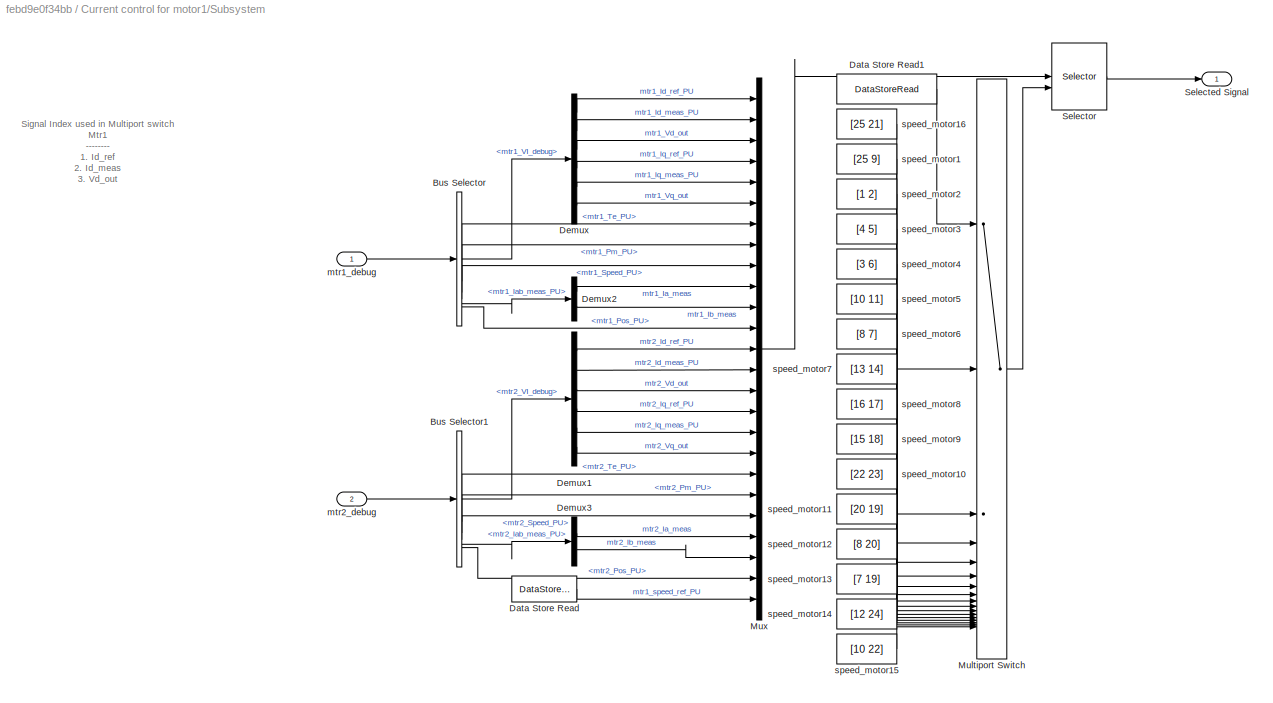
BLOCK [SubSystem] Current control for motor1/Subsystem
BLOCK [BusSelector] Current control for motor1/Subsystem/Bus Selector
  OutputSignals = mtr1_VI_debug,mtr1_Te_PU,mtr1_Pm_PU,mtr1_Speed_PU,mtr1_Iab_meas_PU,mtr1_Pos_PU
BLOCK [BusSelector] Current control for motor1/Subsystem/Bus Selector1
  OutputSignals = mtr2_VI_debug,mtr2_Te_PU,mtr2_Pm_PU,mtr2_Speed_PU,mtr2_Iab_meas_PU,mtr2_Pos_PU
BLOCK [DataStoreRead] Current control for motor1/Subsystem/Data Store Read
  DataStoreName = SpeedRef
  IndexOptions = Index vector (dialog)
  Indices = 1
  OutputSizes = 1
BLOCK [DataStoreRead] Current control for motor1/Subsystem/Data Store Read1
  DataStoreName = Debug_signals
  IndexOptions = Index vector (dialog)
  Indices = 1
  OutputSizes = 1
BLOCK [Demux] Current control for motor1/Subsystem/Demux
  Outputs = 6
BLOCK [Demux] Current control for motor1/Subsystem/Demux1
  Outputs = 6
BLOCK [Demux] Current control for motor1/Subsystem/Demux2
  Outputs = 2
BLOCK [Demux] Current control for motor1/Subsystem/Demux3
  Outputs = 2
BLOCK [MultiPortSwitch] Current control for motor1/Subsystem/Multiport Switch
  DataPortOrder = Zero-based contiguous
  DiagnosticForDefault = Warning
  InputSameDT = off
  Inputs = 16
  OutDataTypeStr = uint16
  RndMeth = Simplest
  SaturateOnIntegerOverflow = off
  zeroidx = on
BLOCK [Mux] Current control for motor1/Subsystem/Mux
  DisplayOption = bar
  Inputs = 25
BLOCK [Outport] Current control for motor1/Subsystem/Selected Signal
BLOCK [Selector] Current control for motor1/Subsystem/Selector
  IndexOptions = Index vector (port)
  Indices = [1 3]
  InputPortWidth = 25
  OutputSizes = 1
BLOCK [Inport] Current control for motor1/Subsystem/mtr1_debug
BLOCK [Inport] Current control for motor1/Subsystem/mtr2_debug
  Port = 2
BLOCK [Constant] Current control for motor1/Subsystem/speed_motor1
  OutDataTypeStr = uint16
  SampleTime = -1
  Value = [25 9]
BLOCK [Constant] Current control for motor1/Subsystem/speed_motor10
  OutDataTypeStr = uint16
  SampleTime = -1
  Value = [22 23]
BLOCK [Constant] Current control for motor1/Subsystem/speed_motor11
  OutDataTypeStr = uint16
  SampleTime = -1
  Value = [20 19]
BLOCK [Constant] Current control for motor1/Subsystem/speed_motor12
  OutDataTypeStr = uint16
  SampleTime = -1
  Value = [8 20]
BLOCK [Constant] Current control for motor1/Subsystem/speed_motor13
  OutDataTypeStr = uint16
  SampleTime = -1
  Value = [7 19]
BLOCK [Constant] Current control for motor1/Subsystem/speed_motor14
  OutDataTypeStr = uint16
  SampleTime = -1
  Value = [12 24]
BLOCK [Constant] Current control for motor1/Subsystem/speed_motor15
  OutDataTypeStr = uint16
  SampleTime = -1
  Value = [10 22]
BLOCK [Constant] Current control for motor1/Subsystem/speed_motor16
  OutDataTypeStr = uint16
  SampleTime = -1
  Value = [25 21]
BLOCK [Constant] Current control for motor1/Subsystem/speed_motor2
  OutDataTypeStr = uint16
  SampleTime = -1
  Value = [1 2]
BLOCK [Constant] Current control for motor1/Subsystem/speed_motor3
  OutDataTypeStr = uint16
  SampleTime = -1
  Value = [4 5]
BLOCK [Constant] Current control for motor1/Subsystem/speed_motor4
  OutDataTypeStr = uint16
  SampleTime = -1
  Value = [3 6]
BLOCK [Constant] Current control for motor1/Subsystem/speed_motor5
  OutDataTypeStr = uint16
  SampleTime = -1
  Value = [10 11]
BLOCK [Constant] Current control for motor1/Subsystem/speed_motor6
  OutDataTypeStr = uint16
  SampleTime = -1
  Value = [8 7]
BLOCK [Constant] Current control for motor1/Subsystem/speed_motor7
  OutDataTypeStr = uint16
  SampleTime = -1
  Value = [13 14]
BLOCK [Constant] Current control for motor1/Subsystem/speed_motor8
  OutDataTypeStr = uint16
  SampleTime = -1
  Value = [16 17]
BLOCK [Constant] Current control for motor1/Subsystem/speed_motor9
  OutDataTypeStr = uint16
  SampleTime = -1
  Value = [15 18]
BLOCK [TriggerPort] Current control for motor1/Trigger
  PortDimensions = 1
  StatesWhenEnabling = held
  TriggerType = function-call
  VariantControl = Variant
BLOCK [Inport] Current control for motor1/mtr2_debug
  Port = 3
BLOCK [SubSystem] Current control for motor2
  RTWMemSecFuncExecute = code_ramfuncs
  RTWSystemCode = Nonreusable function
BLOCK [SubSystem] Current control for motor2/Control_System
BLOCK [SubSystem] Current control for motor2/Control_System/Closed Loop Control
BLOCK [BusCreator] Current control for motor2/Control_System/Closed Loop Control/Bus Creator
  DisplayOption = bar
  InheritFromInputs = on
  Inputs = 6
BLOCK [Reference] Current control for motor2/Control_System/Closed Loop Control/Clarke Transform  REF=mcbcontrolslib/Clarke Transform
  SourceBlock = mcbcontrolslib/Clarke Transform
  SourceType = Clarke Transform
BLOCK [SubSystem] Current control for motor2/Control_System/Closed Loop Control/Current_Controllers
BLOCK [Reference] Current control for motor2/Control_System/Closed Loop Control/Current_Controllers/DQ Limiter  REF=mcbcontrolslib/DQ Limiter
  SourceBlock = mcbcontrolslib/DQ Limiter
  SourceType = DQ Limiter
BLOCK [Demux] Current control for motor2/Control_System/Closed Loop Control/Current_Controllers/Demux
  Outputs = 2
BLOCK [Inport] Current control for motor2/Control_System/Closed Loop Control/Current_Controllers/Id
BLOCK [Inport] Current control for motor2/Control_System/Closed Loop Control/Current_Controllers/Ida_ref_PU
  Port = 3
BLOCK [Inport] Current control for motor2/Control_System/Closed Loop Control/Current_Controllers/Iq
  Port = 2
BLOCK [Mux] Current control for motor2/Control_System/Closed Loop Control/Current_Controllers/Mux
  DisplayOption = bar
  Inputs = 6
BLOCK [SubSystem] Current control for motor2/Control_System/Closed Loop Control/Current_Controllers/PI_Controller_Id
  NameLocation = top
BLOCK [Constant] Current control for motor2/Control_System/Closed Loop Control/Current_Controllers/PI_Controller_Id/Constant
BLOCK [DataStoreRead] Current control for motor2/Control_System/Closed Loop Control/Current_Controllers/PI_Controller_Id/Data Store Read1
  DataStoreName = EnMtr2TrqCtrl
  IndexOptions = Index vector (dialog)
  Indices = 1
  OutputSizes = 1
BLOCK [Reference] Current control for motor2/Control_System/Closed Loop Control/Current_Controllers/PI_Controller_Id/Discrete PI Controller with anti-windup & reset  REF=slpidlib/PID Controller
  SourceBlock = slpidlib/PID Controller
  SourceType = PID 1dof
BLOCK [Inport] Current control for motor2/Control_System/Closed Loop Control/Current_Controllers/PI_Controller_Id/I_fb
  Port = 2
BLOCK [Inport] Current control for motor2/Control_System/Closed Loop Control/Current_Controllers/PI_Controller_Id/I_ref
BLOCK [Constant] Current control for motor2/Control_System/Closed Loop Control/Current_Controllers/PI_Controller_Id/Ki
  OutDataTypeStr = dataType
  SampleTime = -1
  Value = PI_params_motor2.Ki_i*Ts
BLOCK [Constant] Current control for motor2/Control_System/Closed Loop Control/Current_Controllers/PI_Controller_Id/Ki1
  NameLocation = top
  OutDataTypeStr = dataType
  SampleTime = -1
  Value = 0
BLOCK [Constant] Current control for motor2/Control_System/Closed Loop Control/Current_Controllers/PI_Controller_Id/Kp
  NameLocation = top
  OutDataTypeStr = dataType
  SampleTime = -1
  Value = PI_params_motor2.Kp_i
BLOCK [Logic] Current control for motor2/Control_System/Closed Loop Control/Current_Controllers/PI_Controller_Id/Logical Operator
  AllPortsSameDT = off
  IconShape = distinctive
  Operator = NOT
  OutDataTypeStr = boolean
BLOCK [SubSystem] Current control for motor2/Control_System/Closed Loop Control/Current_Controllers/PI_Controller_Id/MATLAB Function
  ErrorFcn = Stateflow.Translate.translate
  PermitHierarchicalResolution = ExplicitOnly
  SFBlockType = MATLAB Function
  TreatAsAtomicUnit = on
BLOCK [Demux] Current control for motor2/Control_System/Closed Loop Control/Current_Controllers/PI_Controller_Id/MATLAB Function/ Demux 
  Outputs = 1
BLOCK [S-Function] Current control for motor2/Control_System/Closed Loop Control/Current_Controllers/PI_Controller_Id/MATLAB Function/ SFunction 
  EnableBusSupport = on
  FunctionName = sf_sfun
  PortCounts = [6 2]
  SFcnIsStateOwnerBlock = off
  SFunctionDeploymentMode = off
  Tag = Stateflow S-Function 3
BLOCK [Terminator] Current control for motor2/Control_System/Closed Loop Control/Current_Controllers/PI_Controller_Id/MATLAB Function/ Terminator 
BLOCK [Inport] Current control for motor2/Control_System/Closed Loop Control/Current_Controllers/PI_Controller_Id/MATLAB Function/I_Ts_speed
  Port = 3
BLOCK [Inport] Current control for motor2/Control_System/Closed Loop Control/Current_Controllers/PI_Controller_Id/MATLAB Function/Id0
  Port = 5
BLOCK [Inport] Current control for motor2/Control_System/Closed Loop Control/Current_Controllers/PI_Controller_Id/MATLAB Function/P
  Port = 2
BLOCK [Outport] Current control for motor2/Control_System/Closed Loop Control/Current_Controllers/PI_Controller_Id/MATLAB Function/V_d_ref
BLOCK [Inport] Current control for motor2/Control_System/Closed Loop Control/Current_Controllers/PI_Controller_Id/MATLAB Function/e
BLOCK [Inport] Current control for motor2/Control_System/Closed Loop Control/Current_Controllers/PI_Controller_Id/MATLAB Function/reset
  Port = 4
BLOCK [Inport] Current control for motor2/Control_System/Closed Loop Control/Current_Controllers/PI_Controller_Id/MATLAB Function/saturation_limit
  Port = 6
BLOCK [Sum] Current control for motor2/Control_System/Closed Loop Control/Current_Controllers/PI_Controller_Id/Sum
  AccumDataTypeStr = Inherit: Same as first input
  Inputs = |+-
  OutDataTypeStr = Inherit: Same as first input
BLOCK [Outport] Current control for motor2/Control_System/Closed Loop Control/Current_Controllers/PI_Controller_Id/V_ref
  VectorParamsAs1DForOutWhenUnconnected = off
BLOCK [SubSystem] Current control for motor2/Control_System/Closed Loop Control/Current_Controllers/PI_Controller_Iq
  NameLocation = top
BLOCK [Constant] Current control for motor2/Control_System/Closed Loop Control/Current_Controllers/PI_Controller_Iq/Constant
BLOCK [DataStoreRead] Current control for motor2/Control_System/Closed Loop Control/Current_Controllers/PI_Controller_Iq/Data Store Read1
  DataStoreName = EnMtr2TrqCtrl
  IndexOptions = Index vector (dialog)
  Indices = 1
  OutputSizes = 1
BLOCK [Reference] Current control for motor2/Control_System/Closed Loop Control/Current_Controllers/PI_Controller_Iq/Discrete PI Controller with anti-windup & reset  REF=slpidlib/PID Controller
  SourceBlock = slpidlib/PID Controller
  SourceType = PID 1dof
BLOCK [Inport] Current control for motor2/Control_System/Closed Loop Control/Current_Controllers/PI_Controller_Iq/I_fb
  Port = 2
BLOCK [Inport] Current control for motor2/Control_System/Closed Loop Control/Current_Controllers/PI_Controller_Iq/I_ref
BLOCK [Constant] Current control for motor2/Control_System/Closed Loop Control/Current_Controllers/PI_Controller_Iq/Ki
  OutDataTypeStr = dataType
  SampleTime = -1
  Value = PI_params_motor2.Ki_i*Ts
BLOCK [Constant] Current control for motor2/Control_System/Closed Loop Control/Current_Controllers/PI_Controller_Iq/Kp
  NameLocation = top
  OutDataTypeStr = dataType
  SampleTime = -1
  Value = PI_params_motor2.Kp_i
BLOCK [Constant] Current control for motor2/Control_System/Closed Loop Control/Current_Controllers/PI_Controller_Iq/Kp1
  NameLocation = top
  OutDataTypeStr = dataType
  SampleTime = -1
  Value = 0
BLOCK [Logic] Current control for motor2/Control_System/Closed Loop Control/Current_Controllers/PI_Controller_Iq/Logical Operator
  AllPortsSameDT = off
  IconShape = distinctive
  Operator = NOT
  OutDataTypeStr = boolean
BLOCK [SubSystem] Current control for motor2/Control_System/Closed Loop Control/Current_Controllers/PI_Controller_Iq/MATLAB Function
  ErrorFcn = Stateflow.Translate.translate
  PermitHierarchicalResolution = ExplicitOnly
  SFBlockType = MATLAB Function
  TreatAsAtomicUnit = on
BLOCK [Demux] Current control for motor2/Control_System/Closed Loop Control/Current_Controllers/PI_Controller_Iq/MATLAB Function/ Demux 
  Outputs = 1
BLOCK [S-Function] Current control for motor2/Control_System/Closed Loop Control/Current_Controllers/PI_Controller_Iq/MATLAB Function/ SFunction 
  EnableBusSupport = on
  FunctionName = sf_sfun
  PortCounts = [6 2]
  SFcnIsStateOwnerBlock = off
  SFunctionDeploymentMode = off
  Tag = Stateflow S-Function 5
BLOCK [Terminator] Current control for motor2/Control_System/Closed Loop Control/Current_Controllers/PI_Controller_Iq/MATLAB Function/ Terminator 
BLOCK [Inport] Current control for motor2/Control_System/Closed Loop Control/Current_Controllers/PI_Controller_Iq/MATLAB Function/I_Ts_speed
  Port = 3
BLOCK [Inport] Current control for motor2/Control_System/Closed Loop Control/Current_Controllers/PI_Controller_Iq/MATLAB Function/Iq0
  Port = 5
BLOCK [Inport] Current control for motor2/Control_System/Closed Loop Control/Current_Controllers/PI_Controller_Iq/MATLAB Function/P
  Port = 2
BLOCK [Outport] Current control for motor2/Control_System/Closed Loop Control/Current_Controllers/PI_Controller_Iq/MATLAB Function/V_q_ref
BLOCK [Inport] Current control for motor2/Control_System/Closed Loop Control/Current_Controllers/PI_Controller_Iq/MATLAB Function/e
BLOCK [Inport] Current control for motor2/Control_System/Closed Loop Control/Current_Controllers/PI_Controller_Iq/MATLAB Function/reset
  Port = 4
BLOCK [Inport] Current control for motor2/Control_System/Closed Loop Control/Current_Controllers/PI_Controller_Iq/MATLAB Function/saturation_limit
  Port = 6
BLOCK [Sum] Current control for motor2/Control_System/Closed Loop Control/Current_Controllers/PI_Controller_Iq/Sum
  AccumDataTypeStr = Inherit: Same as first input
  Inputs = |+-
  OutDataTypeStr = Inherit: Same as first input
BLOCK [Outport] Current control for motor2/Control_System/Closed Loop Control/Current_Controllers/PI_Controller_Iq/V_ref
  VectorParamsAs1DForOutWhenUnconnected = off
BLOCK [Reference] Current control for motor2/Control_System/Closed Loop Control/Current_Controllers/PMSM Feed Forward Control  REF=mcbpmsmnonlinearlib/PMSM FeedForward Control
  SourceBlock = mcbpmsmnonlinearlib/PMSM FeedForward Control
  SourceType = PMSM FeedForward Control
BLOCK [Sum] Current control for motor2/Control_System/Closed Loop Control/Current_Controllers/Sum
  Inputs = |++
BLOCK [Sum] Current control for motor2/Control_System/Closed Loop Control/Current_Controllers/Sum1
  Inputs = |++
BLOCK [Terminator] Current control for motor2/Control_System/Closed Loop Control/Current_Controllers/Terminator
BLOCK [Outport] Current control for motor2/Control_System/Closed Loop Control/Current_Controllers/Vd_ref
  VectorParamsAs1DForOutWhenUnconnected = off
BLOCK [Outport] Current control for motor2/Control_System/Closed Loop Control/Current_Controllers/Vq_ref
  Port = 2
  VectorParamsAs1DForOutWhenUnconnected = off
BLOCK [Inport] Current control for motor2/Control_System/Closed Loop Control/Current_Controllers/Wm_fb
  Port = 4
BLOCK [Outport] Current control for motor2/Control_System/Closed Loop Control/Current_Controllers/debug
  Port = 3
  VectorParamsAs1DForOutWhenUnconnected = off
BLOCK [Demux] Current control for motor2/Control_System/Closed Loop Control/Demux
  Outputs = 2
BLOCK [EnablePort] Current control for motor2/Control_System/Closed Loop Control/Enable
  StatesWhenEnabling = reset
BLOCK [From] Current control for motor2/Control_System/Closed Loop Control/From
  GotoTag = sinTheta
BLOCK [From] Current control for motor2/Control_System/Closed Loop Control/From1
  GotoTag = cosTheta
BLOCK [From] Current control for motor2/Control_System/Closed Loop Control/From2
  GotoTag = Iab_meas_PU
BLOCK [From] Current control for motor2/Control_System/Closed Loop Control/From3
  GotoTag = Pos_PU
BLOCK [Goto] Current control for motor2/Control_System/Closed Loop Control/Goto
  GotoTag = sinTheta
BLOCK [Goto] Current control for motor2/Control_System/Closed Loop Control/Goto1
  GotoTag = cosTheta
BLOCK [Goto] Current control for motor2/Control_System/Closed Loop Control/Goto2
  GotoTag = Iab_meas_PU
BLOCK [Goto] Current control for motor2/Control_System/Closed Loop Control/Goto3
  GotoTag = Pos_PU
BLOCK [Reference] Current control for motor2/Control_System/Closed Loop Control/IIR Filter  REF=mcbcontrolslib/IIR Filter
  SourceBlock = mcbcontrolslib/IIR Filter
  SourceType = IIR Filter
BLOCK [Inport] Current control for motor2/Control_System/Closed Loop Control/Iab_meas_PU
BLOCK [Inport] Current control for motor2/Control_System/Closed Loop Control/Idq_ref_PU
  Port = 4
BLOCK [Reference] Current control for motor2/Control_System/Closed Loop Control/Inverse Park Transform  REF=mcbcontrolslib/Inverse Park Transform
  SourceBlock = mcbcontrolslib/Inverse Park Transform
  SourceType = Inverse Park Transform
BLOCK [Inport] Current control for motor2/Control_System/Closed Loop Control/Mtr2_Speed_PU
  Port = 2
BLOCK [Mux] Current control for motor2/Control_System/Closed Loop Control/Mux1
  DisplayOption = bar
  Inputs = 3
BLOCK [Reference] Current control for motor2/Control_System/Closed Loop Control/PMSM Torque Estimator1  REF=mcbpmsmnonlinearlib/PMSM Torque Estimator
  SourceBlock = mcbpmsmnonlinearlib/PMSM Torque Estimator
  SourceType = PMSM Torque Estimator
BLOCK [Reference] Current control for motor2/Control_System/Closed Loop Control/Park Transform  REF=mcbcontrolslib/Park Transform
  SourceBlock = mcbcontrolslib/Park Transform
  SourceType = Park Transform
BLOCK [Inport] Current control for motor2/Control_System/Closed Loop Control/Pos_PU
  Port = 3
BLOCK [Reference] Current control for motor2/Control_System/Closed Loop Control/Sine-Cosine Lookup  REF=mcbcontrolslib/SinCos Embedded Optimized
  SourceBlock = mcbcontrolslib/SinCos Embedded Optimized
  SourceType = SinCos Embedded Optimized
BLOCK [Reference] Current control for motor2/Control_System/Closed Loop Control/Space Vector Generator  REF=mcbcontrolslib/PWM Reference Generator
  SourceBlock = mcbcontrolslib/PWM Reference Generator
  SourceType = PWM Modulation
BLOCK [Outport] Current control for motor2/Control_System/Closed Loop Control/Vabc in PU
  Port = 2
  VectorParamsAs1DForOutWhenUnconnected = off
BLOCK [Outport] Current control for motor2/Control_System/Closed Loop Control/debug
  VectorParamsAs1DForOutWhenUnconnected = off
BLOCK [Constant] Current control for motor2/Control_System/Constant
  OutDataTypeStr = dataType
  Value = 0
BLOCK [Outport] Current control for motor2/Control_System/Duty_Cycles
  VectorParamsAs1DForOutWhenUnconnected = off
BLOCK [Inport] Current control for motor2/Control_System/EnClosedLoop
  Port = 4
BLOCK [Inport] Current control for motor2/Control_System/Iab_meas_PU
BLOCK [Inport] Current control for motor2/Control_System/Idq_ref_PU
  Port = 5
BLOCK [Inport] Current control for motor2/Control_System/Mtr2_Speed_PU
  Port = 2
BLOCK [Mux] Current control for motor2/Control_System/Mux1
  DisplayOption = bar
  Inputs = 3
BLOCK [Inport] Current control for motor2/Control_System/Pos_PU
  Port = 3
BLOCK [Switch] Current control for motor2/Control_System/Switch
  Criteria = u2 > Threshold
  InputSameDT = off
  SaturateOnIntegerOverflow = off
  Threshold = 0.5
BLOCK [Outport] Current control for motor2/Control_System/debug
  Port = 2
  VectorParamsAs1DForOutWhenUnconnected = off
BLOCK [DataStoreRead] Current control for motor2/Data Store Read1
  DataStoreName = EnMtr2TrqCtrl
  IndexOptions = Index vector (dialog)
  Indices = 1
  OutputSizes = 1
BLOCK [Demux] Current control for motor2/Demux1
BLOCK [Outport] Current control for motor2/Duty Cycles
  InitialOutput = 0
  VectorParamsAs1DForOutWhenUnconnected = off
BLOCK [SubSystem] Current control for motor2/Enable Motor2 after a delay
  Priority = 10
  Variant = on
  VariantControlMode = sim codegen switching
BLOCK [SubSystem] Current control for motor2/Enable Motor2 after a delay/Delay to start motor1 (codegen)
  TreatAsAtomicUnit = on
  VariantControl = (codegen)
BLOCK [Logic] Current control for motor2/Enable Motor2 after a delay/Delay to start motor1 (codegen)/AND
  AllPortsSameDT = off
  IconShape = distinctive
  OutDataTypeStr = boolean
BLOCK [DataStoreRead] Current control for motor2/Enable Motor2 after a delay/Delay to start motor1 (codegen)/Data Store Read1
  DataStoreName = Enable
  IndexOptions = Index vector (dialog)
  Indices = 1
  OutputSizes = 1
BLOCK [DataStoreRead] Current control for motor2/Enable Motor2 after a delay/Delay to start motor1 (codegen)/Data Store Read2
  DataStoreName = EnClosedLoop
  IndexOptions = Index vector (dialog)
  Indices = 1
  OutputSizes = 1
BLOCK [SubSystem] Current control for motor2/Enable Motor2 after a delay/Delay to start motor1 (codegen)/Disable EnMtr2TrqCtrl
  TreatAsAtomicUnit = on
BLOCK [Constant] Current control for motor2/Enable Motor2 after a delay/Delay to start motor1 (codegen)/Disable EnMtr2TrqCtrl/Constant
  OutDataTypeStr = boolean
  Value = 0
BLOCK [DataStoreWrite] Current control for motor2/Enable Motor2 after a delay/Delay to start motor1 (codegen)/Disable EnMtr2TrqCtrl/Data Store Write
  DataStoreName = EnMtr2TrqCtrl
  IndexOptions = Index vector (dialog)
  Indices = 1
  OutputSizes = 1
BLOCK [EnablePort] Current control for motor2/Enable Motor2 after a delay/Delay to start motor1 (codegen)/Disable EnMtr2TrqCtrl/Enable
  StatesWhenEnabling = reset
BLOCK [Constant] Current control for motor2/Enable Motor2 after a delay/Delay to start motor1 (codegen)/Disable EnMtr2TrqCtrl/GPIO Trig
  OutDataTypeStr = uint16
  SampleTime = -1
  Value = 0
BLOCK [Reference] Current control for motor2/Enable Motor2 after a delay/Delay to start motor1 (codegen)/Disable EnMtr2TrqCtrl/GPIO16  REF=c2837xDlib/Digital Output
  SourceBlock = c2837xDlib/Digital Output
  SourceType = F2837x GPIO Digital Output
  UserDataPersistent = on
BLOCK [SubSystem] Current control for motor2/Enable Motor2 after a delay/Delay to start motor1 (codegen)/Enable EnMtr2TrqCtrl after 2 sec delay
  TreatAsAtomicUnit = on
BLOCK [Sum] Current control for motor2/Enable Motor2 after a delay/Delay to start motor1 (codegen)/Enable EnMtr2TrqCtrl after 2 sec delay/Add
  IconShape = rectangular
BLOCK [Constant] Current control for motor2/Enable Motor2 after a delay/Delay to start motor1 (codegen)/Enable EnMtr2TrqCtrl after 2 sec delay/Constant
  OutDataTypeStr = boolean
BLOCK [Constant] Current control for motor2/Enable Motor2 after a delay/Delay to start motor1 (codegen)/Enable EnMtr2TrqCtrl after 2 sec delay/Constant1
  OutDataTypeStr = boolean
  Value = 0
BLOCK [Constant] Current control for motor2/Enable Motor2 after a delay/Delay to start motor1 (codegen)/Enable EnMtr2TrqCtrl after 2 sec delay/Constant2
  OutDataTypeStr = uint32
BLOCK [EnablePort] Current control for motor2/Enable Motor2 after a delay/Delay to start motor1 (codegen)/Enable EnMtr2TrqCtrl after 2 sec delay/Enable
  StatesWhenEnabling = reset
BLOCK [SubSystem] Current control for motor2/Enable Motor2 after a delay/Delay to start motor1 (codegen)/Enable EnMtr2TrqCtrl after 2 sec delay/Enable EnMtr2TrqCtrl
  TreatAsAtomicUnit = on
BLOCK [Constant] Current control for motor2/Enable Motor2 after a delay/Delay to start motor1 (codegen)/Enable EnMtr2TrqCtrl after 2 sec delay/Enable EnMtr2TrqCtrl/Constant
  OutDataTypeStr = boolean
BLOCK [DataStoreWrite] Current control for motor2/Enable Motor2 after a delay/Delay to start motor1 (codegen)/Enable EnMtr2TrqCtrl after 2 sec delay/Enable EnMtr2TrqCtrl/Data Store Write
  DataStoreName = EnMtr2TrqCtrl
  IndexOptions = Index vector (dialog)
  Indices = 1
  OutputSizes = 1
BLOCK [EnablePort] Current control for motor2/Enable Motor2 after a delay/Delay to start motor1 (codegen)/Enable EnMtr2TrqCtrl after 2 sec delay/Enable EnMtr2TrqCtrl/Enable
  StatesWhenEnabling = reset
BLOCK [Constant] Current control for motor2/Enable Motor2 after a delay/Delay to start motor1 (codegen)/Enable EnMtr2TrqCtrl after 2 sec delay/Enable EnMtr2TrqCtrl/GPIO Trig
  OutDataTypeStr = uint16
  SampleTime = -1
BLOCK [Reference] Current control for motor2/Enable Motor2 after a delay/Delay to start motor1 (codegen)/Enable EnMtr2TrqCtrl after 2 sec delay/Enable EnMtr2TrqCtrl/GPIO16  REF=c2837xDlib/Digital Output
  SourceBlock = c2837xDlib/Digital Output
  SourceType = F2837x GPIO Digital Output
  UserDataPersistent = on
BLOCK [Switch] Current control for motor2/Enable Motor2 after a delay/Delay to start motor1 (codegen)/Enable EnMtr2TrqCtrl after 2 sec delay/Switch
  Criteria = u2 > Threshold
  InputSameDT = off
  SaturateOnIntegerOverflow = off
  Threshold = 40000
BLOCK [UnitDelay] Current control for motor2/Enable Motor2 after a delay/Delay to start motor1 (codegen)/Enable EnMtr2TrqCtrl after 2 sec delay/Unit Delay
  HasFrameUpgradeWarning = on
  NameLocation = top
  SampleTime = -1
BLOCK [Logic] Current control for motor2/Enable Motor2 after a delay/Delay to start motor1 (codegen)/NOT
  AllPortsSameDT = off
  IconShape = distinctive
  Operator = NOT
  OutDataTypeStr = boolean
BLOCK [SubSystem] Current control for motor2/Enable Motor2 after a delay/Delay to start motor2 (sim)
  VariantControl = (sim)
BLOCK [Logic] Current control for motor2/Enable Motor2 after a delay/Delay to start motor2 (sim)/AND1
  AllPortsSameDT = off
  IconShape = distinctive
  OutDataTypeStr = boolean
BLOCK [DataStoreRead] Current control for motor2/Enable Motor2 after a delay/Delay to start motor2 (sim)/Data Store Read3
  DataStoreName = Enable
  IndexOptions = Index vector (dialog)
  Indices = 1
  OutputSizes = 1
BLOCK [DataStoreRead] Current control for motor2/Enable Motor2 after a delay/Delay to start motor2 (sim)/Data Store Read4
  DataStoreName = EnClosedLoop
  IndexOptions = Index vector (dialog)
  Indices = 1
  OutputSizes = 1
BLOCK [SubSystem] Current control for motor2/Enable Motor2 after a delay/Delay to start motor2 (sim)/Delay 0.5 sec
  TreatAsAtomicUnit = on
BLOCK [Sum] Current control for motor2/Enable Motor2 after a delay/Delay to start motor2 (sim)/Delay 0.5 sec/Add
  IconShape = rectangular
BLOCK [Constant] Current control for motor2/Enable Motor2 after a delay/Delay to start motor2 (sim)/Delay 0.5 sec/Constant
  OutDataTypeStr = boolean
BLOCK [Constant] Current control for motor2/Enable Motor2 after a delay/Delay to start motor2 (sim)/Delay 0.5 sec/Constant1
  OutDataTypeStr = boolean
  Value = 0
BLOCK [Constant] Current control for motor2/Enable Motor2 after a delay/Delay to start motor2 (sim)/Delay 0.5 sec/Constant2
  OutDataTypeStr = uint32
BLOCK [EnablePort] Current control for motor2/Enable Motor2 after a delay/Delay to start motor2 (sim)/Delay 0.5 sec/Enable
  StatesWhenEnabling = reset
BLOCK [Outport] Current control for motor2/Enable Motor2 after a delay/Delay to start motor2 (sim)/Delay 0.5 sec/Out1
BLOCK [Switch] Current control for motor2/Enable Motor2 after a delay/Delay to start motor2 (sim)/Delay 0.5 sec/Switch
  Criteria = u2 > Threshold
  InputSameDT = off
  SaturateOnIntegerOverflow = off
  Threshold = 10000
BLOCK [UnitDelay] Current control for motor2/Enable Motor2 after a delay/Delay to start motor2 (sim)/Delay 0.5 sec/Unit Delay
  HasFrameUpgradeWarning = on
  NameLocation = top
  SampleTime = -1
BLOCK [SubSystem] Current control for motor2/Enable Motor2 after a delay/Delay to start motor2 (sim)/Enabled Subsystem
  TreatAsAtomicUnit = on
BLOCK [Constant] Current control for motor2/Enable Motor2 after a delay/Delay to start motor2 (sim)/Enabled Subsystem/Constant
  OutDataTypeStr = boolean
BLOCK [DataStoreWrite] Current control for motor2/Enable Motor2 after a delay/Delay to start motor2 (sim)/Enabled Subsystem/Data Store Write
  DataStoreName = EnMtr2TrqCtrl
  IndexOptions = Index vector (dialog)
  Indices = 1
  OutputSizes = 1
BLOCK [EnablePort] Current control for motor2/Enable Motor2 after a delay/Delay to start motor2 (sim)/Enabled Subsystem/Enable
BLOCK [SubSystem] Current control for motor2/Enable Motor2 after a delay/Delay to start motor2 (sim)/Enabled Subsystem2
  TreatAsAtomicUnit = on
BLOCK [Constant] Current control for motor2/Enable Motor2 after a delay/Delay to start motor2 (sim)/Enabled Subsystem2/Constant
  OutDataTypeStr = boolean
  Value = 0
BLOCK [DataStoreWrite] Current control for motor2/Enable Motor2 after a delay/Delay to start motor2 (sim)/Enabled Subsystem2/Data Store Write
  DataStoreName = EnMtr2TrqCtrl
  IndexOptions = Index vector (dialog)
  Indices = 1
  OutputSizes = 1
BLOCK [EnablePort] Current control for motor2/Enable Motor2 after a delay/Delay to start motor2 (sim)/Enabled Subsystem2/Enable
BLOCK [Logic] Current control for motor2/Enable Motor2 after a delay/Delay to start motor2 (sim)/NOT
  AllPortsSameDT = off
  IconShape = distinctive
  Operator = NOT
  OutDataTypeStr = boolean
BLOCK [Inport] Current control for motor2/Feedbacks_sim
  Port = 2
BLOCK [SubSystem] Current control for motor2/HW_Inputs
  Variant = on
  VariantControlMode = sim codegen switching
BLOCK [Outport] Current control for motor2/HW_Inputs/Out
BLOCK [SubSystem] Current control for motor2/HW_Inputs/Sensor Driver Blocks (codegen)
  VariantControl = (codegen)
BLOCK [Reference] Current control for motor2/HW_Inputs/Sensor Driver Blocks (codegen)/ADC_B_IN4  REF=c2802xlib/ADC
  SourceBlock = c2802xlib/ADC
  SourceType = ADC Type 3-5
  UserDataPersistent = on
BLOCK [Reference] Current control for motor2/HW_Inputs/Sensor Driver Blocks (codegen)/ADC_C_IN4  REF=c2802xlib/ADC
  SourceBlock = c2802xlib/ADC
  SourceType = ADC Type 3-5
  UserDataPersistent = on
BLOCK [Mux] Current control for motor2/HW_Inputs/Sensor Driver Blocks (codegen)/Mux2
  DisplayOption = bar
BLOCK [Outport] Current control for motor2/HW_Inputs/Sensor Driver Blocks (codegen)/Out
BLOCK [Inport] Current control for motor2/HW_Inputs/Sensor Driver Blocks (codegen)/Sim
BLOCK [Terminator] Current control for motor2/HW_Inputs/Sensor Driver Blocks (codegen)/Terminator
BLOCK [Reference] Current control for motor2/HW_Inputs/Sensor Driver Blocks (codegen)/eQEP  REF=c280xlib/eQEP
  SourceBlock = c280xlib/eQEP
  SourceType = C28x eQEP
BLOCK [SubSystem] Current control for motor2/HW_Inputs/Sensor Driver Blocks (sim)
  VariantControl = (sim)
BLOCK [Outport] Current control for motor2/HW_Inputs/Sensor Driver Blocks (sim)/Out
BLOCK [Inport] Current control for motor2/HW_Inputs/Sensor Driver Blocks (sim)/Sim
BLOCK [Inport] Current control for motor2/HW_Inputs/Sim
BLOCK [Inport] Current control for motor2/Idq_ref_PU
BLOCK [SubSystem] Current control for motor2/Input Scaling
BLOCK [SubSystem] Current control for motor2/Input Scaling/ Calculate Position and Speed
BLOCK [Reference] Current control for motor2/Input Scaling/ Calculate Position and Speed/IIR Filter  REF=mcbcontrolslib/IIR Filter
  SourceBlock = mcbcontrolslib/IIR Filter
  SourceType = IIR Filter
BLOCK [Reference] Current control for motor2/Input Scaling/ Calculate Position and Speed/Mechanical to Electrical Position  REF=mcbpositiondecoderlib/Mechanical to Electrical Position
  SourceBlock = mcbpositiondecoderlib/Mechanical to Electrical Position
  SourceType = Mechanical to Electrical Position
BLOCK [Inport] Current control for motor2/Input Scaling/ Calculate Position and Speed/Offset
  Port = 3
BLOCK [Inport] Current control for motor2/Input Scaling/ Calculate Position and Speed/QEP_Index_Latch
  Port = 2
BLOCK [Inport] Current control for motor2/Input Scaling/ Calculate Position and Speed/QEP_Position_Count
BLOCK [Reference] Current control for motor2/Input Scaling/ Calculate Position and Speed/Quadrature Decoder  REF=mcbpositiondecoderlib/Quadrature Decoder
  SourceBlock = mcbpositiondecoderlib/Quadrature Decoder
  SourceType = Quadrature Decoder
BLOCK [Reference] Current control for motor2/Input Scaling/ Calculate Position and Speed/Speed Measurement  REF=mcbpositiondecoderlib/Speed Measurement
  SourceBlock = mcbpositiondecoderlib/Speed Measurement
  SourceType = Speed Measurement
BLOCK [Outport] Current control for motor2/Input Scaling/ Calculate Position and Speed/Theta_e
  VectorParamsAs1DForOutWhenUnconnected = off
BLOCK [Outport] Current control for motor2/Input Scaling/ Calculate Position and Speed/speed
  Port = 2
  VectorParamsAs1DForOutWhenUnconnected = off
BLOCK [SubSystem] Current control for motor2/Input Scaling/Calculate Phase Currents
BLOCK [Sum] Current control for motor2/Input Scaling/Calculate Phase Currents/Add
  IconShape = rectangular
  Inputs = -+
BLOCK [DataStoreRead] Current control for motor2/Input Scaling/Calculate Phase Currents/Data Store Read1
  DataStoreName = IaOffset_motor2
  IndexOptions = Index vector (dialog)
  Indices = 1
  OutputSizes = 1
BLOCK [DataStoreRead] Current control for motor2/Input Scaling/Calculate Phase Currents/Data Store Read2
  DataStoreName = IbOffset_motor2
  IndexOptions = Index vector (dialog)
  Indices = 1
  OutputSizes = 1
BLOCK [DataTypeConversion] Current control for motor2/Input Scaling/Calculate Phase Currents/Data Type Conversion
  ConvertRealWorld = Stored Integer (SI)
  OutDataTypeStr = int32
  RndMeth = Simplest
  SaturateOnIntegerOverflow = off
BLOCK [SubSystem] Current control for motor2/Input Scaling/Calculate Phase Currents/Data_Type
  Variant = on
BLOCK [SubSystem] Current control for motor2/Input Scaling/Calculate Phase Currents/Data_Type/Data_Type_Fixed_Point
  VariantControl = ~isequal(dataType,'single')
BLOCK [DataTypeConversion] Current control for motor2/Input Scaling/Calculate Phase Currents/Data_Type/Data_Type_Fixed_Point/Data Type Conversion
  ConvertRealWorld = Stored Integer (SI)
  OutDataTypeStr = fixdt(1,32,17)
  RndMeth = Simplest
  SaturateOnIntegerOverflow = off
BLOCK [DataTypeConversion] Current control for motor2/Input Scaling/Calculate Phase Currents/Data_Type/Data_Type_Fixed_Point/Data Type Conversion1
  OutDataTypeStr = dataType
  RndMeth = Simplest
  SaturateOnIntegerOverflow = off
BLOCK [Outport] Current control for motor2/Input Scaling/Calculate Phase Currents/Data_Type/Data_Type_Fixed_Point/Iab_meas_PU
BLOCK [Inport] Current control for motor2/Input Scaling/Calculate Phase Currents/Data_Type/Data_Type_Fixed_Point/In1
BLOCK [ArithShift] Current control for motor2/Input Scaling/Calculate Phase Currents/Data_Type/Data_Type_Fixed_Point/Q17 per unit conversion
  BitShiftNumber = -6
  InputPortMap = u0
BLOCK [SubSystem] Current control for motor2/Input Scaling/Calculate Phase Currents/Data_Type/Data_Type_Float
  VariantControl = isequal(dataType,'single')
BLOCK [Gain] Current control for motor2/Input Scaling/Calculate Phase Currents/Data_Type/Data_Type_Float/Get ADC Voltage
  Gain = target.ADC_Vref /target.ADC_MaxCount
  OutDataTypeStr = dataType
  RndMeth = Simplest
BLOCK [Gain] Current control for motor2/Input Scaling/Calculate Phase Currents/Data_Type/Data_Type_Float/Get Currents
  Gain = 1/inverter_motor2.ISenseVoltPerAmp
  OutDataTypeStr = Inherit: Same as input
  RndMeth = Simplest
BLOCK [Outport] Current control for motor2/Input Scaling/Calculate Phase Currents/Data_Type/Data_Type_Float/Iab_meas_PU
BLOCK [Inport] Current control for motor2/Input Scaling/Calculate Phase Currents/Data_Type/Data_Type_Float/In1
BLOCK [Gain] Current control for motor2/Input Scaling/Calculate Phase Currents/Data_Type/Data_Type_Float/PU_Conversion
  Gain = 1/PU_System_motor2.I_base
  OutDataTypeStr = Inherit: Same as input
  RndMeth = Simplest
BLOCK [Outport] Current control for motor2/Input Scaling/Calculate Phase Currents/Data_Type/Iab_meas_PU
BLOCK [Inport] Current control for motor2/Input Scaling/Calculate Phase Currents/Data_Type/In1
BLOCK [Inport] Current control for motor2/Input Scaling/Calculate Phase Currents/Ia_ADC
BLOCK [Outport] Current control for motor2/Input Scaling/Calculate Phase Currents/Iab_meas_PU
  VectorParamsAs1DForOutWhenUnconnected = off
BLOCK [Inport] Current control for motor2/Input Scaling/Calculate Phase Currents/Ib_ADC
  Port = 2
BLOCK [Gain] Current control for motor2/Input Scaling/Calculate Phase Currents/Inverting // Non-inverting Current measurement amplifieer
  Gain = inverter_motor2.invertingAmp
  OutDataTypeStr = Inherit: Same as input
  RndMeth = Simplest
BLOCK [Mux] Current control for motor2/Input Scaling/Calculate Phase Currents/Mux
  DisplayOption = bar
  Inputs = 2
BLOCK [Mux] Current control for motor2/Input Scaling/Calculate Phase Currents/Mux1
  DisplayOption = bar
  Inputs = 2
BLOCK [Inport] Current control for motor2/Input Scaling/Ia_ADC
BLOCK [Outport] Current control for motor2/Input Scaling/Iab_meas_PU
BLOCK [Inport] Current control for motor2/Input Scaling/Ib_ADC
  Port = 2
BLOCK [Constant] Current control for motor2/Input Scaling/IndexOffset
  OutDataTypeStr = dataType
  SampleTime = -1
  Value = pmsm_motor2.PositionOffset
BLOCK [Outport] Current control for motor2/Input Scaling/Pos_PU
  Port = 3
BLOCK [Inport] Current control for motor2/Input Scaling/QEP_Index_Latch
  Port = 4
BLOCK [Inport] Current control for motor2/Input Scaling/QEP_Position_Count
  Port = 3
BLOCK [Outport] Current control for motor2/Input Scaling/speed_PU
  Port = 2
BLOCK [SubSystem] Current control for motor2/Inverter
  Variant = on
  VariantControlMode = sim codegen switching
BLOCK [SubSystem] Current control for motor2/Inverter/Code Generation
  VariantControl = (codegen)
BLOCK [Constant] Current control for motor2/Inverter/Code Generation/Constant
  Value = inverter_motor2.EnableLogic
BLOCK [Demux] Current control for motor2/Inverter/Code Generation/Demux
BLOCK [Demux] Current control for motor2/Inverter/Code Generation/Demux1
  Outputs = 3
BLOCK [Ground] Current control for motor2/Inverter/Code Generation/Ground
BLOCK [Ground] Current control for motor2/Inverter/Code Generation/Ground1
BLOCK [Ground] Current control for motor2/Inverter/Code Generation/Ground2
BLOCK [Inport] Current control for motor2/Inverter/Code Generation/Inverter Signals
BLOCK [Reference] Current control for motor2/Inverter/Code Generation/Inverter enable  REF=c2837xDlib/Digital Output
  SourceBlock = c2837xDlib/Digital Output
  SourceType = F2837x GPIO Digital Output
  UserDataPersistent = on
BLOCK [Mux] Current control for motor2/Inverter/Code Generation/Mux
  DisplayOption = bar
  Inputs = 3
BLOCK [Mux] Current control for motor2/Inverter/Code Generation/Mux1
  DisplayOption = bar
  Inputs = 3
BLOCK [Mux] Current control for motor2/Inverter/Code Generation/Mux2
  DisplayOption = bar
  Inputs = 3
BLOCK [Logic] Current control for motor2/Inverter/Code Generation/NOT
  AllPortsSameDT = off
  IconShape = distinctive
  Operator = NOT
  OutDataTypeStr = boolean
BLOCK [Gain] Current control for motor2/Inverter/Code Generation/Scale_to_PWM_Counter_PRD
  Gain = target.PWM_Counter_Period
  OutDataTypeStr = uint16
  RndMeth = Simplest
BLOCK [Outport] Current control for motor2/Inverter/Code Generation/Sim
  VectorParamsAs1DForOutWhenUnconnected = off
BLOCK [Switch] Current control for motor2/Inverter/Code Generation/Switch
  Criteria = u2 > Threshold
  InputSameDT = off
  SaturateOnIntegerOverflow = off
BLOCK [Switch] Current control for motor2/Inverter/Code Generation/Switch1
  InputSameDT = off
  SaturateOnIntegerOverflow = off
  Threshold = 0.5
BLOCK [Reference] Current control for motor2/Inverter/Code Generation/ePWM4  REF=c2802xlib/ePWM
  SourceBlock = c2802xlib/ePWM
  SourceType = ePWM Type 1-4
  UserDataPersistent = on
BLOCK [Reference] Current control for motor2/Inverter/Code Generation/ePWM5  REF=c2802xlib/ePWM
  SourceBlock = c2802xlib/ePWM
  SourceType = ePWM Type 1-4
  UserDataPersistent = on
BLOCK [Reference] Current control for motor2/Inverter/Code Generation/ePWM6  REF=c2802xlib/ePWM
  SourceBlock = c2802xlib/ePWM
  SourceType = ePWM Type 1-4
  UserDataPersistent = on
BLOCK [Constant] Current control for motor2/Inverter/Code Generation/stop
  OutDataTypeStr = uint16
  Value = 0
BLOCK [Inport] Current control for motor2/Inverter/Inverter Signals
BLOCK [Outport] Current control for motor2/Inverter/Sim
  VectorParamsAs1DForOutWhenUnconnected = off
BLOCK [SubSystem] Current control for motor2/Inverter/Simulation
  VariantControl = (sim)
BLOCK [DataTypeDuplicate] Current control for motor2/Inverter/Simulation/Data Type Duplicate
BLOCK [Demux] Current control for motor2/Inverter/Simulation/Demux
BLOCK [Inport] Current control for motor2/Inverter/Simulation/Inverter Signals
BLOCK [Mux] Current control for motor2/Inverter/Simulation/Mux
  DisplayOption = bar
  Inputs = 3
BLOCK [Mux] Current control for motor2/Inverter/Simulation/Mux2
  DisplayOption = bar
  Inputs = 3
BLOCK [Outport] Current control for motor2/Inverter/Simulation/Sim
  VectorParamsAs1DForOutWhenUnconnected = off
BLOCK [Switch] Current control for motor2/Inverter/Simulation/Switch1
  InputSameDT = off
  RndMeth = Simplest
  SaturateOnIntegerOverflow = off
  Threshold = 0.5
BLOCK [Constant] Current control for motor2/Inverter/Simulation/stop
  OutDataTypeStr = Inherit: Inherit via back propagation
  Value = 0
BLOCK [Mux] Current control for motor2/Mux
  DisplayOption = bar
  Inputs = 2
BLOCK [SubSystem] Current control for motor2/Output Scaling
BLOCK [Constant] Current control for motor2/Output Scaling/Constant
  OutDataTypeStr = dataType
  SampleTime = -1
  Value = 0.5
BLOCK [DataTypeConversion] Current control for motor2/Output Scaling/Data Type Conversion
  OutDataTypeStr = dataType
  RndMeth = Floor
  SaturateOnIntegerOverflow = off
BLOCK [DataStoreRead] Current control for motor2/Output Scaling/Enable
  DataStoreName = EnMtr2TrqCtrl
  IndexOptions = Index vector (dialog)
  Indices = 1
  OutputSizes = 1
BLOCK [Gain] Current control for motor2/Output Scaling/One_by_Two
  Gain = 0.5
  OutDataTypeStr = Inherit: Same as input
  RndMeth = Simplest
BLOCK [Outport] Current control for motor2/Output Scaling/PWM_Duty_Cycles
BLOCK [Outport] Current control for motor2/Output Scaling/PWM_Enable
  Port = 2
BLOCK [Sum] Current control for motor2/Output Scaling/Sum
  AccumDataTypeStr = Inherit: Same as first input
  Inputs = |++
BLOCK [Inport] Current control for motor2/Output Scaling/Vabc_ref
BLOCK [TriggerPort] Current control for motor2/Trigger
  PortDimensions = 1
  StatesWhenEnabling = held
  TriggerType = function-call
  VariantControl = Variant
BLOCK [Outport] Current control for motor2/mtr2_debug
  InitialOutput = 0
  Port = 2
  VectorParamsAs1DForOutWhenUnconnected = off
BLOCK [Outport] Current control for motor2/mtr2_speed_PU
  InitialOutput = 0
  Port = 3
  VectorParamsAs1DForOutWhenUnconnected = off
BLOCK [DataStoreMemory] Data Store Memory1
  DataStoreName = IaOffset_motor1
  InitialValue = inverter_motor1.CtSensAOffset
  ReadBeforeWriteMsg = warning
  ShowAdditionalParam = off
  WriteAfterReadMsg = warning
  WriteAfterWriteMsg = warning
BLOCK [DataStoreMemory] Data Store Memory2
  DataStoreName = IbOffset_motor1
  InitialValue = inverter_motor1.CtSensBOffset
  ReadBeforeWriteMsg = warning
  ShowAdditionalParam = off
  WriteAfterReadMsg = warning
  WriteAfterWriteMsg = warning
BLOCK [DataStoreMemory] Data Store Memory29
  DataStoreName = Enable
  OutDataTypeStr = boolean
  ReadBeforeWriteMsg = warning
  ShowAdditionalParam = off
  WriteAfterReadMsg = warning
  WriteAfterWriteMsg = warning
BLOCK [DataStoreMemory] Data Store Memory3
  DataStoreName = EnClosedLoop
  OutDataTypeStr = boolean
  ReadBeforeWriteMsg = warning
  ShowAdditionalParam = off
  WriteAfterReadMsg = warning
  WriteAfterWriteMsg = warning
BLOCK [DataStoreMemory] Data Store Memory4
  DataStoreName = SpeedRef
  ShowAdditionalParam = off
BLOCK [DataStoreMemory] Data Store Memory5
  DataStoreName = EnMtr2TrqCtrl
  OutDataTypeStr = boolean
  ReadBeforeWriteMsg = warning
  ShowAdditionalParam = off
  WriteAfterReadMsg = warning
  WriteAfterWriteMsg = warning
BLOCK [DataStoreMemory] Data Store Memory6
  DataStoreName = Debug_signals
  InitialValue = 5
  OutDataTypeStr = uint16
  ReadBeforeWriteMsg = warning
  ShowAdditionalParam = off
  WriteAfterReadMsg = warning
  WriteAfterWriteMsg = warning
BLOCK [DataStoreMemory] Data Store Memory7
  DataStoreName = IbOffset_motor2
  InitialValue = inverter_motor2.CtSensBOffset
  ReadBeforeWriteMsg = warning
  ShowAdditionalParam = off
  WriteAfterReadMsg = warning
  WriteAfterWriteMsg = warning
BLOCK [DataStoreMemory] Data Store Memory8
  DataStoreName = IaOffset_motor2
  InitialValue = inverter_motor2.CtSensBOffset
  ReadBeforeWriteMsg = warning
  ShowAdditionalParam = off
  WriteAfterReadMsg = warning
  WriteAfterWriteMsg = warning
BLOCK [DataStoreMemory] Data Store Memory9
  DataStoreName = EnMtrCtrl
  OutDataTypeStr = boolean
  ReadBeforeWriteMsg = warning
  ShowAdditionalParam = off
  WriteAfterReadMsg = warning
  WriteAfterWriteMsg = warning
BLOCK [Demux] Demux
  Outputs = 3
BLOCK [From] From1
  GotoTag = sim_fb_motor1
BLOCK [From] From2
  GotoTag = sim_fb_motor2
BLOCK [From] From3
  GotoTag = motor2_trig
BLOCK [From] From4
  GotoTag = mtr2_debug
BLOCK [Goto] Goto
  GotoTag = sim_fb_motor1
BLOCK [Goto] Goto1
  GotoTag = sim_fb_motor2
BLOCK [Goto] Goto2
  GotoTag = motor2_trig
BLOCK [Goto] Goto3
  GotoTag = mtr2_debug
BLOCK [SubSystem] HW Interrupt
  Variant = on
  VariantControlMode = sim codegen switching
BLOCK [SubSystem] HW Interrupt/Code generation
  VariantControl = (codegen)
BLOCK [Reference] HW Interrupt/Code generation/HWI_ADCB1_INT  REF=svdschedulerlib/Hardware Interrupt v2
  LibrarySourceBlock = c2000lib/Scheduling/Hardware Interrupt
  SourceBlock = svdschedulerlib/Hardware Interrupt v2
  SourceType = HardwareInterrupt
  UserDataPersistent = on
BLOCK [Reference] HW Interrupt/Code generation/HWI_ADCC1_INT  REF=svdschedulerlib/Hardware Interrupt v2
  LibrarySourceBlock = c2000lib/Scheduling/Hardware Interrupt
  SourceBlock = svdschedulerlib/Hardware Interrupt v2
  SourceType = HardwareInterrupt
  UserDataPersistent = on
BLOCK [Reference] HW Interrupt/Code generation/HWI_SCIA_RX_INT  REF=svdschedulerlib/Hardware Interrupt v2
  LibrarySourceBlock = c2000lib/Scheduling/Hardware Interrupt
  SourceBlock = svdschedulerlib/Hardware Interrupt v2
  SourceType = HardwareInterrupt
  UserDataPersistent = on
BLOCK [Outport] HW Interrupt/Code generation/HW_INT
BLOCK [Mux] HW Interrupt/Code generation/Mux
  DisplayOption = bar
  Inputs = 3
BLOCK [Outport] HW Interrupt/HW_INT
  OutputFunctionCall = on
BLOCK [SubSystem] HW Interrupt/Simulation
  VariantControl = (sim)
BLOCK [Outport] HW Interrupt/Simulation/HW_INT
BLOCK [Mux] HW Interrupt/Simulation/Mux
  DisplayOption = bar
  Inputs = 3
BLOCK [DiscretePulseGenerator] HW Interrupt/Simulation/Pulse Generator1
  Period = Ts
  PhaseDelay = Ts
  PulseType = Time based
  PulseWidth = 20
BLOCK [DiscretePulseGenerator] HW Interrupt/Simulation/Pulse Generator2
  Period = Ts
  PulseType = Time based
  PulseWidth = 20
BLOCK [Reference] HW Interrupt/Simulation/SCI_Rx_INT  REF=simulink/Ports &
Subsystems/Function-Call
Generator
  SourceBlock = simulink/Ports &\nSubsystems/Function-Call\nGenerator
  SourceType = Function-Call Generator
BLOCK [SubSystem] HW Interrupt/Simulation/Simulation1
BLOCK [Reference] HW Interrupt/Simulation/Simulation1/ADCINT1  REF=simulink/Ports &
Subsystems/Function-Call
Generator
  SourceBlock = simulink/Ports &\nSubsystems/Function-Call\nGenerator
  SourceType = Function-Call Generator
BLOCK [Outport] HW Interrupt/Simulation/Simulation1/Interrupt
BLOCK [TriggerPort] HW Interrupt/Simulation/Simulation1/Trigger
  PortDimensions = 1
  StatesWhenEnabling = held
  VariantControl = Variant
BLOCK [SubSystem] HW Interrupt/Simulation/Simulation2
BLOCK [Reference] HW Interrupt/Simulation/Simulation2/ADCINT1  REF=simulink/Ports &
Subsystems/Function-Call
Generator
  SourceBlock = simulink/Ports &\nSubsystems/Function-Call\nGenerator
  SourceType = Function-Call Generator
BLOCK [Outport] HW Interrupt/Simulation/Simulation2/Interrupt
BLOCK [TriggerPort] HW Interrupt/Simulation/Simulation2/Trigger
  PortDimensions = 1
  StatesWhenEnabling = held
  VariantControl = Variant
BLOCK [SubSystem] Hardware Init
  TreatAsAtomicUnit = on
BLOCK [EventListener] Hardware Init/Event Listener
  DisableCoverage = on
  EventName = reset
BLOCK [SubSystem] Hardware Init/HW_Init
  Variant = on
  VariantControlMode = sim codegen switching
BLOCK [SubSystem] Hardware Init/HW_Init/HW_Init (Codegen)
  VariantControl = (codegen)
BLOCK [SubSystem] Hardware Init/HW_Init/HW_Init (Codegen)/Calibrate ADC offset for motor 1 current sensor
  Priority = 11
  TreatAsAtomicUnit = on
BLOCK [Constant] Hardware Init/HW_Init/HW_Init (Codegen)/Calibrate ADC offset for motor 1 current sensor/ADC Calib Enable
  OutDataTypeStr = Inherit: Inherit via back propagation
  Value = inverter_motor1.ADCOffsetCalibEnable
BLOCK [SubSystem] Hardware Init/HW_Init/HW_Init (Codegen)/Calibrate ADC offset for motor 1 current sensor/Calculate ADC Offset 
  Priority = 1001
  TreatAsAtomicUnit = on
BLOCK [Constant] Hardware Init/HW_Init/HW_Init (Codegen)/Calibrate ADC offset for motor 1 current sensor/Calculate ADC Offset /Constant
  Value = 8
BLOCK [Constant] Hardware Init/HW_Init/HW_Init (Codegen)/Calibrate ADC offset for motor 1 current sensor/Calculate ADC Offset /Constant1
  OutDataTypeStr = Inherit: Inherit via back propagation
  Value = inverter_motor1.CtSensOffsetMax
BLOCK [Constant] Hardware Init/HW_Init/HW_Init (Codegen)/Calibrate ADC offset for motor 1 current sensor/Calculate ADC Offset /Constant2
  OutDataTypeStr = Inherit: Inherit via back propagation
  Value = inverter_motor1.CtSensOffsetMin
BLOCK [Product] Hardware Init/HW_Init/HW_Init (Codegen)/Calibrate ADC offset for motor 1 current sensor/Calculate ADC Offset /Divide
  Inputs = */
  OutDataTypeStr = uint16
BLOCK [Product] Hardware Init/HW_Init/HW_Init (Codegen)/Calibrate ADC offset for motor 1 current sensor/Calculate ADC Offset /Divide1
  Inputs = */
  OutDataTypeStr = uint16
BLOCK [EnablePort] Hardware Init/HW_Init/HW_Init (Codegen)/Calibrate ADC offset for motor 1 current sensor/Calculate ADC Offset /Enable
BLOCK [SubSystem] Hardware Init/HW_Init/HW_Init (Codegen)/Calibrate ADC offset for motor 1 current sensor/Calculate ADC Offset /For Iterator Subsystem
  TreatAsAtomicUnit = on
BLOCK [Reference] Hardware Init/HW_Init/HW_Init (Codegen)/Calibrate ADC offset for motor 1 current sensor/Calculate ADC Offset /For Iterator Subsystem/ADC_A_IN0  REF=c2802xlib/ADC
  Priority = 20
  SourceBlock = c2802xlib/ADC
  SourceType = ADC Type 3-5
  UserDataPersistent = on
BLOCK [Reference] Hardware Init/HW_Init/HW_Init (Codegen)/Calibrate ADC offset for motor 1 current sensor/Calculate ADC Offset /For Iterator Subsystem/ADC_B_IN0  REF=c2802xlib/ADC
  Priority = 20
  SourceBlock = c2802xlib/ADC
  SourceType = ADC Type 3-5
  UserDataPersistent = on
BLOCK [ForIterator] Hardware Init/HW_Init/HW_Init (Codegen)/Calibrate ADC offset for motor 1 current sensor/Calculate ADC Offset /For Iterator Subsystem/For Iterator
  IterationLimit = 16
  IterationVariableDataType = uint16
BLOCK [If] Hardware Init/HW_Init/HW_Init (Codegen)/Calibrate ADC offset for motor 1 current sensor/Calculate ADC Offset /For Iterator Subsystem/If
  IfExpression = u1 > 8
  ShowElse = off
BLOCK [SubSystem] Hardware Init/HW_Init/HW_Init (Codegen)/Calibrate ADC offset for motor 1 current sensor/Calculate ADC Offset /For Iterator Subsystem/If Action Subsystem
  TreatAsAtomicUnit = on
BLOCK [ActionPort] Hardware Init/HW_Init/HW_Init (Codegen)/Calibrate ADC offset for motor 1 current sensor/Calculate ADC Offset /For Iterator Subsystem/If Action Subsystem/Action Port
  ActionPortLabel = if(u1 > 8)
BLOCK [Inport] Hardware Init/HW_Init/HW_Init (Codegen)/Calibrate ADC offset for motor 1 current sensor/Calculate ADC Offset /For Iterator Subsystem/If Action Subsystem/In1
BLOCK [Inport] Hardware Init/HW_Init/HW_Init (Codegen)/Calibrate ADC offset for motor 1 current sensor/Calculate ADC Offset /For Iterator Subsystem/If Action Subsystem/In2
  Port = 2
BLOCK [Memory] Hardware Init/HW_Init/HW_Init (Codegen)/Calibrate ADC offset for motor 1 current sensor/Calculate ADC Offset /For Iterator Subsystem/If Action Subsystem/Memory
  InheritSampleTime = on
  NameLocation = top
BLOCK [Memory] Hardware Init/HW_Init/HW_Init (Codegen)/Calibrate ADC offset for motor 1 current sensor/Calculate ADC Offset /For Iterator Subsystem/If Action Subsystem/Memory1
  InheritSampleTime = on
  NameLocation = top
BLOCK [Outport] Hardware Init/HW_Init/HW_Init (Codegen)/Calibrate ADC offset for motor 1 current sensor/Calculate ADC Offset /For Iterator Subsystem/If Action Subsystem/Out1
BLOCK [Outport] Hardware Init/HW_Init/HW_Init (Codegen)/Calibrate ADC offset for motor 1 current sensor/Calculate ADC Offset /For Iterator Subsystem/If Action Subsystem/Out2
  Port = 2
BLOCK [Sum] Hardware Init/HW_Init/HW_Init (Codegen)/Calibrate ADC offset for motor 1 current sensor/Calculate ADC Offset /For Iterator Subsystem/If Action Subsystem/Sum
  IconShape = rectangular
BLOCK [Sum] Hardware Init/HW_Init/HW_Init (Codegen)/Calibrate ADC offset for motor 1 current sensor/Calculate ADC Offset /For Iterator Subsystem/If Action Subsystem/Sum1
  IconShape = rectangular
BLOCK [Outport] Hardware Init/HW_Init/HW_Init (Codegen)/Calibrate ADC offset for motor 1 current sensor/Calculate ADC Offset /For Iterator Subsystem/Out1
BLOCK [Outport] Hardware Init/HW_Init/HW_Init (Codegen)/Calibrate ADC offset for motor 1 current sensor/Calculate ADC Offset /For Iterator Subsystem/Out2
  Port = 2
BLOCK [If] Hardware Init/HW_Init/HW_Init (Codegen)/Calibrate ADC offset for motor 1 current sensor/Calculate ADC Offset /If
  IfExpression = u1 > u3 & u1 < u2
  NumInputs = 3
BLOCK [SubSystem] Hardware Init/HW_Init/HW_Init (Codegen)/Calibrate ADC offset for motor 1 current sensor/Calculate ADC Offset /If Action Subsystem
  TreatAsAtomicUnit = on
BLOCK [ActionPort] Hardware Init/HW_Init/HW_Init (Codegen)/Calibrate ADC offset for motor 1 current sensor/Calculate ADC Offset /If Action Subsystem/Action Port
  ActionPortLabel = if(u1 > u3 & u1 < u2)
BLOCK [DataStoreWrite] Hardware Init/HW_Init/HW_Init (Codegen)/Calibrate ADC offset for motor 1 current sensor/Calculate ADC Offset /If Action Subsystem/Data Store Write1
  DataStoreName = IaOffset_motor1
  IndexOptions = Index vector (dialog)
  Indices = 1
  OutputSizes = 1
BLOCK [Inport] Hardware Init/HW_Init/HW_Init (Codegen)/Calibrate ADC offset for motor 1 current sensor/Calculate ADC Offset /If Action Subsystem/In1
BLOCK [SubSystem] Hardware Init/HW_Init/HW_Init (Codegen)/Calibrate ADC offset for motor 1 current sensor/Calculate ADC Offset /If Action Subsystem1
  TreatAsAtomicUnit = on
BLOCK [ActionPort] Hardware Init/HW_Init/HW_Init (Codegen)/Calibrate ADC offset for motor 1 current sensor/Calculate ADC Offset /If Action Subsystem1/Action Port
  ActionPortLabel = else
BLOCK [Constant] Hardware Init/HW_Init/HW_Init (Codegen)/Calibrate ADC offset for motor 1 current sensor/Calculate ADC Offset /If Action Subsystem1/Constant
  OutDataTypeStr = Inherit: Inherit via back propagation
  Value = inverter_motor1.CtSensAOffset
BLOCK [DataStoreWrite] Hardware Init/HW_Init/HW_Init (Codegen)/Calibrate ADC offset for motor 1 current sensor/Calculate ADC Offset /If Action Subsystem1/Data Store Write1
  DataStoreName = IaOffset_motor1
  IndexOptions = Index vector (dialog)
  Indices = 1
  OutputSizes = 1
BLOCK [SubSystem] Hardware Init/HW_Init/HW_Init (Codegen)/Calibrate ADC offset for motor 1 current sensor/Calculate ADC Offset /If Action Subsystem2
  TreatAsAtomicUnit = on
BLOCK [ActionPort] Hardware Init/HW_Init/HW_Init (Codegen)/Calibrate ADC offset for motor 1 current sensor/Calculate ADC Offset /If Action Subsystem2/Action Port
  ActionPortLabel = if(u1 > u3 & u1 < u2)
BLOCK [DataStoreWrite] Hardware Init/HW_Init/HW_Init (Codegen)/Calibrate ADC offset for motor 1 current sensor/Calculate ADC Offset /If Action Subsystem2/Data Store Write2
  DataStoreName = IbOffset_motor1
  IndexOptions = Index vector (dialog)
  Indices = 1
  OutputSizes = 1
BLOCK [Inport] Hardware Init/HW_Init/HW_Init (Codegen)/Calibrate ADC offset for motor 1 current sensor/Calculate ADC Offset /If Action Subsystem2/In1
BLOCK [SubSystem] Hardware Init/HW_Init/HW_Init (Codegen)/Calibrate ADC offset for motor 1 current sensor/Calculate ADC Offset /If Action Subsystem3
  TreatAsAtomicUnit = on
BLOCK [ActionPort] Hardware Init/HW_Init/HW_Init (Codegen)/Calibrate ADC offset for motor 1 current sensor/Calculate ADC Offset /If Action Subsystem3/Action Port
  ActionPortLabel = else
BLOCK [Constant] Hardware Init/HW_Init/HW_Init (Codegen)/Calibrate ADC offset for motor 1 current sensor/Calculate ADC Offset /If Action Subsystem3/Constant1
  OutDataTypeStr = Inherit: Inherit via back propagation
  Value = inverter_motor1.CtSensBOffset
BLOCK [DataStoreWrite] Hardware Init/HW_Init/HW_Init (Codegen)/Calibrate ADC offset for motor 1 current sensor/Calculate ADC Offset /If Action Subsystem3/Data Store Write2
  DataStoreName = IbOffset_motor1
  IndexOptions = Index vector (dialog)
  Indices = 1
  OutputSizes = 1
BLOCK [If] Hardware Init/HW_Init/HW_Init (Codegen)/Calibrate ADC offset for motor 1 current sensor/Calculate ADC Offset /If1
  IfExpression = u1 > u3 & u1 < u2
  NumInputs = 3
BLOCK [SubSystem] Hardware Init/HW_Init/HW_Init (Codegen)/Calibrate ADC offset for motor 1 current sensor/Default ADC Offset
  Priority = 1001
  TreatAsAtomicUnit = on
BLOCK [Constant] Hardware Init/HW_Init/HW_Init (Codegen)/Calibrate ADC offset for motor 1 current sensor/Default ADC Offset/Constant
  OutDataTypeStr = Inherit: Inherit via back propagation
  Value = inverter_motor1.CtSensAOffset
BLOCK [Constant] Hardware Init/HW_Init/HW_Init (Codegen)/Calibrate ADC offset for motor 1 current sensor/Default ADC Offset/Constant1
  OutDataTypeStr = Inherit: Inherit via back propagation
  Value = inverter_motor1.CtSensBOffset
BLOCK [DataStoreWrite] Hardware Init/HW_Init/HW_Init (Codegen)/Calibrate ADC offset for motor 1 current sensor/Default ADC Offset/Data Store Write1
  DataStoreName = IaOffset_motor1
  IndexOptions = Index vector (dialog)
  Indices = 1
  OutputSizes = 1
BLOCK [DataStoreWrite] Hardware Init/HW_Init/HW_Init (Codegen)/Calibrate ADC offset for motor 1 current sensor/Default ADC Offset/Data Store Write2
  DataStoreName = IbOffset_motor1
  IndexOptions = Index vector (dialog)
  Indices = 1
  OutputSizes = 1
BLOCK [EnablePort] Hardware Init/HW_Init/HW_Init (Codegen)/Calibrate ADC offset for motor 1 current sensor/Default ADC Offset/Enable
BLOCK [Logic] Hardware Init/HW_Init/HW_Init (Codegen)/Calibrate ADC offset for motor 1 current sensor/NOT
  AllPortsSameDT = off
  IconShape = distinctive
  Operator = NOT
  OutDataTypeStr = boolean
BLOCK [SubSystem] Hardware Init/HW_Init/HW_Init (Codegen)/Calibrate ADC offset for motor 2 current sensor
  Priority = 12
  TreatAsAtomicUnit = on
BLOCK [Constant] Hardware Init/HW_Init/HW_Init (Codegen)/Calibrate ADC offset for motor 2 current sensor/ADC Calib Enable
  OutDataTypeStr = Inherit: Inherit via back propagation
  Value = inverter_motor2.ADCOffsetCalibEnable
BLOCK [SubSystem] Hardware Init/HW_Init/HW_Init (Codegen)/Calibrate ADC offset for motor 2 current sensor/Calculate ADC Offset 
  Priority = 1001
  TreatAsAtomicUnit = on
BLOCK [Constant] Hardware Init/HW_Init/HW_Init (Codegen)/Calibrate ADC offset for motor 2 current sensor/Calculate ADC Offset /Constant1
  Value = 8
BLOCK [Constant] Hardware Init/HW_Init/HW_Init (Codegen)/Calibrate ADC offset for motor 2 current sensor/Calculate ADC Offset /Constant2
  OutDataTypeStr = Inherit: Inherit via back propagation
  Value = inverter_motor2.CtSensOffsetMax
BLOCK [Constant] Hardware Init/HW_Init/HW_Init (Codegen)/Calibrate ADC offset for motor 2 current sensor/Calculate ADC Offset /Constant3
  OutDataTypeStr = Inherit: Inherit via back propagation
  Value = inverter_motor2.CtSensOffsetMin
BLOCK [Product] Hardware Init/HW_Init/HW_Init (Codegen)/Calibrate ADC offset for motor 2 current sensor/Calculate ADC Offset /Divide2
  Inputs = */
  OutDataTypeStr = uint16
BLOCK [Product] Hardware Init/HW_Init/HW_Init (Codegen)/Calibrate ADC offset for motor 2 current sensor/Calculate ADC Offset /Divide3
  Inputs = */
  OutDataTypeStr = uint16
BLOCK [EnablePort] Hardware Init/HW_Init/HW_Init (Codegen)/Calibrate ADC offset for motor 2 current sensor/Calculate ADC Offset /Enable
BLOCK [SubSystem] Hardware Init/HW_Init/HW_Init (Codegen)/Calibrate ADC offset for motor 2 current sensor/Calculate ADC Offset /For Iterator Subsystem
  TreatAsAtomicUnit = on
BLOCK [Reference] Hardware Init/HW_Init/HW_Init (Codegen)/Calibrate ADC offset for motor 2 current sensor/Calculate ADC Offset /For Iterator Subsystem/ADC_A_IN1  REF=c2802xlib/ADC
  Priority = 20
  SourceBlock = c2802xlib/ADC
  SourceType = ADC Type 3-5
  UserDataPersistent = on
BLOCK [Reference] Hardware Init/HW_Init/HW_Init (Codegen)/Calibrate ADC offset for motor 2 current sensor/Calculate ADC Offset /For Iterator Subsystem/ADC_B_IN1  REF=c2802xlib/ADC
  Priority = 20
  SourceBlock = c2802xlib/ADC
  SourceType = ADC Type 3-5
  UserDataPersistent = on
BLOCK [ForIterator] Hardware Init/HW_Init/HW_Init (Codegen)/Calibrate ADC offset for motor 2 current sensor/Calculate ADC Offset /For Iterator Subsystem/For Iterator
  IterationLimit = 16
  IterationVariableDataType = uint16
BLOCK [SubSystem] Hardware Init/HW_Init/HW_Init (Codegen)/Calibrate ADC offset for motor 2 current sensor/Calculate ADC Offset /For Iterator Subsystem/If Action Subsystem1
  TreatAsAtomicUnit = on
BLOCK [ActionPort] Hardware Init/HW_Init/HW_Init (Codegen)/Calibrate ADC offset for motor 2 current sensor/Calculate ADC Offset /For Iterator Subsystem/If Action Subsystem1/Action Port
  ActionPortLabel = if(u1 > 8)
BLOCK [Inport] Hardware Init/HW_Init/HW_Init (Codegen)/Calibrate ADC offset for motor 2 current sensor/Calculate ADC Offset /For Iterator Subsystem/If Action Subsystem1/In1
BLOCK [Inport] Hardware Init/HW_Init/HW_Init (Codegen)/Calibrate ADC offset for motor 2 current sensor/Calculate ADC Offset /For Iterator Subsystem/If Action Subsystem1/In2
  Port = 2
BLOCK [Memory] Hardware Init/HW_Init/HW_Init (Codegen)/Calibrate ADC offset for motor 2 current sensor/Calculate ADC Offset /For Iterator Subsystem/If Action Subsystem1/Memory
  InheritSampleTime = on
  NameLocation = top
BLOCK [Memory] Hardware Init/HW_Init/HW_Init (Codegen)/Calibrate ADC offset for motor 2 current sensor/Calculate ADC Offset /For Iterator Subsystem/If Action Subsystem1/Memory1
  InheritSampleTime = on
  NameLocation = top
BLOCK [Outport] Hardware Init/HW_Init/HW_Init (Codegen)/Calibrate ADC offset for motor 2 current sensor/Calculate ADC Offset /For Iterator Subsystem/If Action Subsystem1/Out1
BLOCK [Outport] Hardware Init/HW_Init/HW_Init (Codegen)/Calibrate ADC offset for motor 2 current sensor/Calculate ADC Offset /For Iterator Subsystem/If Action Subsystem1/Out2
  Port = 2
BLOCK [Sum] Hardware Init/HW_Init/HW_Init (Codegen)/Calibrate ADC offset for motor 2 current sensor/Calculate ADC Offset /For Iterator Subsystem/If Action Subsystem1/Sum
  IconShape = rectangular
BLOCK [Sum] Hardware Init/HW_Init/HW_Init (Codegen)/Calibrate ADC offset for motor 2 current sensor/Calculate ADC Offset /For Iterator Subsystem/If Action Subsystem1/Sum1
  IconShape = rectangular
BLOCK [If] Hardware Init/HW_Init/HW_Init (Codegen)/Calibrate ADC offset for motor 2 current sensor/Calculate ADC Offset /For Iterator Subsystem/If1
  IfExpression = u1 > 8
  ShowElse = off
BLOCK [Outport] Hardware Init/HW_Init/HW_Init (Codegen)/Calibrate ADC offset for motor 2 current sensor/Calculate ADC Offset /For Iterator Subsystem/Out3
BLOCK [Outport] Hardware Init/HW_Init/HW_Init (Codegen)/Calibrate ADC offset for motor 2 current sensor/Calculate ADC Offset /For Iterator Subsystem/Out4
  Port = 2
BLOCK [SubSystem] Hardware Init/HW_Init/HW_Init (Codegen)/Calibrate ADC offset for motor 2 current sensor/Calculate ADC Offset /If Action Subsystem4
  TreatAsAtomicUnit = on
BLOCK [ActionPort] Hardware Init/HW_Init/HW_Init (Codegen)/Calibrate ADC offset for motor 2 current sensor/Calculate ADC Offset /If Action Subsystem4/Action Port
  ActionPortLabel = if(u1 > u3 & u1 < u2)
BLOCK [DataStoreWrite] Hardware Init/HW_Init/HW_Init (Codegen)/Calibrate ADC offset for motor 2 current sensor/Calculate ADC Offset /If Action Subsystem4/Data Store Write1
  DataStoreName = IaOffset_motor2
  IndexOptions = Index vector (dialog)
  Indices = 1
  OutputSizes = 1
BLOCK [Inport] Hardware Init/HW_Init/HW_Init (Codegen)/Calibrate ADC offset for motor 2 current sensor/Calculate ADC Offset /If Action Subsystem4/In1
BLOCK [SubSystem] Hardware Init/HW_Init/HW_Init (Codegen)/Calibrate ADC offset for motor 2 current sensor/Calculate ADC Offset /If Action Subsystem5
  TreatAsAtomicUnit = on
BLOCK [ActionPort] Hardware Init/HW_Init/HW_Init (Codegen)/Calibrate ADC offset for motor 2 current sensor/Calculate ADC Offset /If Action Subsystem5/Action Port
  ActionPortLabel = else
BLOCK [Constant] Hardware Init/HW_Init/HW_Init (Codegen)/Calibrate ADC offset for motor 2 current sensor/Calculate ADC Offset /If Action Subsystem5/Constant
  OutDataTypeStr = Inherit: Inherit via back propagation
  Value = inverter_motor2.CtSensAOffset
BLOCK [DataStoreWrite] Hardware Init/HW_Init/HW_Init (Codegen)/Calibrate ADC offset for motor 2 current sensor/Calculate ADC Offset /If Action Subsystem5/Data Store Write1
  DataStoreName = IaOffset_motor2
  IndexOptions = Index vector (dialog)
  Indices = 1
  OutputSizes = 1
BLOCK [SubSystem] Hardware Init/HW_Init/HW_Init (Codegen)/Calibrate ADC offset for motor 2 current sensor/Calculate ADC Offset /If Action Subsystem6
  TreatAsAtomicUnit = on
BLOCK [ActionPort] Hardware Init/HW_Init/HW_Init (Codegen)/Calibrate ADC offset for motor 2 current sensor/Calculate ADC Offset /If Action Subsystem6/Action Port
  ActionPortLabel = if(u1 > u3 & u1 < u2)
BLOCK [DataStoreWrite] Hardware Init/HW_Init/HW_Init (Codegen)/Calibrate ADC offset for motor 2 current sensor/Calculate ADC Offset /If Action Subsystem6/Data Store Write2
  DataStoreName = IbOffset_motor2
  IndexOptions = Index vector (dialog)
  Indices = 1
  OutputSizes = 1
BLOCK [Inport] Hardware Init/HW_Init/HW_Init (Codegen)/Calibrate ADC offset for motor 2 current sensor/Calculate ADC Offset /If Action Subsystem6/In1
BLOCK [SubSystem] Hardware Init/HW_Init/HW_Init (Codegen)/Calibrate ADC offset for motor 2 current sensor/Calculate ADC Offset /If Action Subsystem7
  TreatAsAtomicUnit = on
BLOCK [ActionPort] Hardware Init/HW_Init/HW_Init (Codegen)/Calibrate ADC offset for motor 2 current sensor/Calculate ADC Offset /If Action Subsystem7/Action Port
  ActionPortLabel = else
BLOCK [Constant] Hardware Init/HW_Init/HW_Init (Codegen)/Calibrate ADC offset for motor 2 current sensor/Calculate ADC Offset /If Action Subsystem7/Constant1
  OutDataTypeStr = Inherit: Inherit via back propagation
  Value = inverter_motor2.CtSensBOffset
BLOCK [DataStoreWrite] Hardware Init/HW_Init/HW_Init (Codegen)/Calibrate ADC offset for motor 2 current sensor/Calculate ADC Offset /If Action Subsystem7/Data Store Write2
  DataStoreName = IbOffset_motor2
  IndexOptions = Index vector (dialog)
  Indices = 1
  OutputSizes = 1
BLOCK [If] Hardware Init/HW_Init/HW_Init (Codegen)/Calibrate ADC offset for motor 2 current sensor/Calculate ADC Offset /If2
  IfExpression = u1 > u3 & u1 < u2
  NumInputs = 3
BLOCK [If] Hardware Init/HW_Init/HW_Init (Codegen)/Calibrate ADC offset for motor 2 current sensor/Calculate ADC Offset /If3
  IfExpression = u1 > u3 & u1 < u2
  NumInputs = 3
BLOCK [SubSystem] Hardware Init/HW_Init/HW_Init (Codegen)/Calibrate ADC offset for motor 2 current sensor/Default ADC Offset
  Priority = 1001
  TreatAsAtomicUnit = on
BLOCK [Constant] Hardware Init/HW_Init/HW_Init (Codegen)/Calibrate ADC offset for motor 2 current sensor/Default ADC Offset/Constant2
  OutDataTypeStr = Inherit: Inherit via back propagation
  Value = inverter_motor2.CtSensAOffset
BLOCK [Constant] Hardware Init/HW_Init/HW_Init (Codegen)/Calibrate ADC offset for motor 2 current sensor/Default ADC Offset/Constant3
  OutDataTypeStr = Inherit: Inherit via back propagation
  Value = inverter_motor2.CtSensBOffset
BLOCK [DataStoreWrite] Hardware Init/HW_Init/HW_Init (Codegen)/Calibrate ADC offset for motor 2 current sensor/Default ADC Offset/Data Store Write3
  DataStoreName = IaOffset_motor2
  IndexOptions = Index vector (dialog)
  Indices = 1
  OutputSizes = 1
BLOCK [DataStoreWrite] Hardware Init/HW_Init/HW_Init (Codegen)/Calibrate ADC offset for motor 2 current sensor/Default ADC Offset/Data Store Write4
  DataStoreName = IbOffset_motor2
  IndexOptions = Index vector (dialog)
  Indices = 1
  OutputSizes = 1
BLOCK [EnablePort] Hardware Init/HW_Init/HW_Init (Codegen)/Calibrate ADC offset for motor 2 current sensor/Default ADC Offset/Enable
BLOCK [Logic] Hardware Init/HW_Init/HW_Init (Codegen)/Calibrate ADC offset for motor 2 current sensor/NOT
  AllPortsSameDT = off
  IconShape = distinctive
  Operator = NOT
  OutDataTypeStr = boolean
BLOCK [SubSystem] Hardware Init/HW_Init/HW_Init (Codegen)/Enable DRV8305 for motor 1 and motor 2
  Priority = 10
  TreatAsAtomicUnit = on
BLOCK [Reference] Hardware Init/HW_Init/HW_Init (Codegen)/Enable DRV8305 for motor 1 and motor 2/Bottom DRV8305 EN  REF=c2837xDlib/Digital Output
  SourceBlock = c2837xDlib/Digital Output
  SourceType = F2837x GPIO Digital Output
  UserDataPersistent = on
BLOCK [Constant] Hardware Init/HW_Init/HW_Init (Codegen)/Enable DRV8305 for motor 1 and motor 2/Constant
  Value = inverter_motor1.EnableLogic
BLOCK [Constant] Hardware Init/HW_Init/HW_Init (Codegen)/Enable DRV8305 for motor 1 and motor 2/Constant1
  Value = inverter_motor2.EnableLogic
BLOCK [Reference] Hardware Init/HW_Init/HW_Init (Codegen)/Enable DRV8305 for motor 1 and motor 2/Digital Output  REF=c2837xDlib/Digital Output
  Priority = 10
  SourceBlock = c2837xDlib/Digital Output
  SourceType = F2837x GPIO Digital Output
  UserDataPersistent = on
BLOCK [Constant] Hardware Init/HW_Init/HW_Init (Codegen)/Enable DRV8305 for motor 1 and motor 2/Inverter 1 Enable
  OutDataTypeStr = uint16
  SampleTime = -1
BLOCK [Constant] Hardware Init/HW_Init/HW_Init (Codegen)/Enable DRV8305 for motor 1 and motor 2/Inverter 2 Enable
  OutDataTypeStr = uint16
  SampleTime = -1
BLOCK [Logic] Hardware Init/HW_Init/HW_Init (Codegen)/Enable DRV8305 for motor 1 and motor 2/NOT
  AllPortsSameDT = off
  IconShape = distinctive
  Operator = NOT
  OutDataTypeStr = boolean
BLOCK [Logic] Hardware Init/HW_Init/HW_Init (Codegen)/Enable DRV8305 for motor 1 and motor 2/NOT1
  AllPortsSameDT = off
  IconShape = distinctive
  Operator = NOT
  OutDataTypeStr = boolean
BLOCK [Switch] Hardware Init/HW_Init/HW_Init (Codegen)/Enable DRV8305 for motor 1 and motor 2/Switch
  Criteria = u2 > Threshold
  InputSameDT = off
  SaturateOnIntegerOverflow = off
BLOCK [Switch] Hardware Init/HW_Init/HW_Init (Codegen)/Enable DRV8305 for motor 1 and motor 2/Switch1
  Criteria = u2 > Threshold
  InputSameDT = off
  SaturateOnIntegerOverflow = off
BLOCK [SubSystem] Hardware Init/HW_Init/HW_Init (sim)
  VariantControl = (sim)
BLOCK [SubSystem] Heartbeat LED
  TreatAsAtomicUnit = on
BLOCK [SubSystem] Heartbeat LED/Heartbeat LED
  Variant = on
  VariantControlMode = sim codegen switching
BLOCK [SubSystem] Heartbeat LED/Heartbeat LED/Code generation
  VariantControl = (codegen)
BLOCK [Reference] Heartbeat LED/Heartbeat LED/Code generation/Digital Output  REF=c2837xDlib/Digital Output
  SourceBlock = c2837xDlib/Digital Output
  SourceType = F2837x GPIO Digital Output
  UserDataPersistent = on
BLOCK [Inport] Heartbeat LED/Heartbeat LED/Code generation/In1
BLOCK [Inport] Heartbeat LED/Heartbeat LED/In1
BLOCK [SubSystem] Heartbeat LED/Heartbeat LED/Simulation
  VariantControl = (sim)
BLOCK [Inport] Heartbeat LED/Heartbeat LED/Simulation/In1
BLOCK [Terminator] Heartbeat LED/Heartbeat LED/Simulation/Simulation_Terminator
BLOCK [Constant] Heartbeat LED/RED_LED
  OutDataTypeStr = uint16
  SampleTime = 0.5
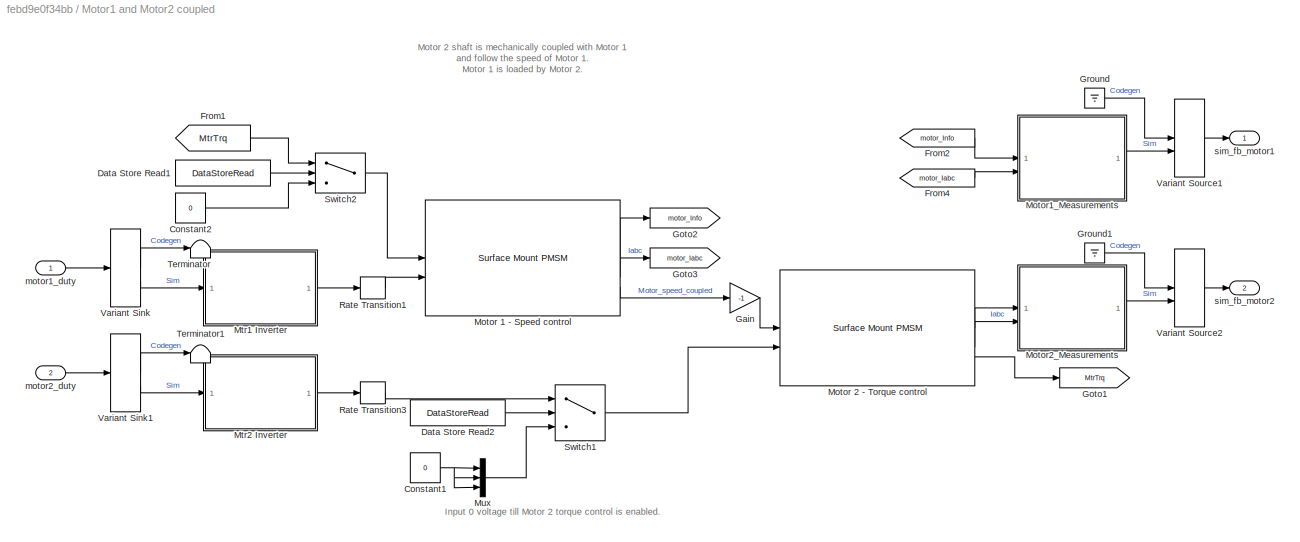
BLOCK [SubSystem] Motor1 and Motor2 coupled
  RTWSystemCode = Reusable function
BLOCK [Constant] Motor1 and Motor2 coupled/Constant1
  Value = 0
BLOCK [Constant] Motor1 and Motor2 coupled/Constant2
  Value = 0
BLOCK [DataStoreRead] Motor1 and Motor2 coupled/Data Store Read1
  DataStoreName = EnMtr2TrqCtrl
  IndexOptions = Index vector (dialog)
  Indices = 1
  OutputSizes = 1
BLOCK [DataStoreRead] Motor1 and Motor2 coupled/Data Store Read2
  DataStoreName = EnMtr2TrqCtrl
  IndexOptions = Index vector (dialog)
  Indices = 1
  OutputSizes = 1
BLOCK [From] Motor1 and Motor2 coupled/From1
  GotoTag = MtrTrq
BLOCK [From] Motor1 and Motor2 coupled/From2
  GotoTag = motor_Info
BLOCK [From] Motor1 and Motor2 coupled/From4
  GotoTag = motor_Iabc
BLOCK [Gain] Motor1 and Motor2 coupled/Gain
  Gain = -1
BLOCK [Goto] Motor1 and Motor2 coupled/Goto1
  GotoTag = MtrTrq
BLOCK [Goto] Motor1 and Motor2 coupled/Goto2
  GotoTag = motor_Info
BLOCK [Goto] Motor1 and Motor2 coupled/Goto3
  GotoTag = motor_Iabc
BLOCK [Ground] Motor1 and Motor2 coupled/Ground
BLOCK [Ground] Motor1 and Motor2 coupled/Ground1
BLOCK [Reference] Motor1 and Motor2 coupled/Motor 1 - Speed control  REF=autolibpmsmexterior/Surface Mount PMSM
  LibrarySourceBlock = mcblib/Electrical Systems/Motors/Surface Mount PMSM
  SourceBlock = autolibpmsmexterior/Surface Mount PMSM
  SourceType = Surface Mount PMSM
BLOCK [Reference] Motor1 and Motor2 coupled/Motor 2 - Torque control  REF=autolibpmsmexterior/Surface Mount PMSM
  LibrarySourceBlock = mcblib/Electrical Systems/Motors/Surface Mount PMSM
  SourceBlock = autolibpmsmexterior/Surface Mount PMSM
  SourceType = Surface Mount PMSM
BLOCK [SubSystem] Motor1 and Motor2 coupled/Motor1_Measurements
BLOCK [Sum] Motor1 and Motor2 coupled/Motor1_Measurements/Add Offset
  IconShape = rectangular
  RndMeth = Simplest
BLOCK [Sum] Motor1 and Motor2 coupled/Motor1_Measurements/Add1
  IconShape = rectangular
  RndMeth = Simplest
BLOCK [BusSelector] Motor1 and Motor2 coupled/Motor1_Measurements/Bus Selector
  OutputSignals = MtrPos
BLOCK [DataTypeConversion] Motor1 and Motor2 coupled/Motor1_Measurements/Data Type Conversion2
  OutDataTypeStr = single
  RndMeth = Simplest
  SaturateOnIntegerOverflow = off
BLOCK [DataTypeConversion] Motor1 and Motor2 coupled/Motor1_Measurements/Data Type Conversion4
  OutDataTypeStr = single
  RndMeth = Simplest
  SaturateOnIntegerOverflow = off
BLOCK [DataTypeConversion] Motor1 and Motor2 coupled/Motor1_Measurements/Data Type Conversion6
  OutDataTypeStr = uint16
  RndMeth = Simplest
  SaturateOnIntegerOverflow = off
BLOCK [DataTypeConversion] Motor1 and Motor2 coupled/Motor1_Measurements/Data Type Conversion7
  OutDataTypeStr = uint16
  RndMeth = Simplest
  SaturateOnIntegerOverflow = off
BLOCK [Delay] Motor1 and Motor2 coupled/Motor1_Measurements/Delay1
  DelayLength = PI_params_motor1.delay_Currents
  InputPortMap = u0
BLOCK [Delay] Motor1 and Motor2 coupled/Motor1_Measurements/Delay2
  DelayLength = PI_params_motor1.delay_Position
  InputPortMap = u0
BLOCK [Demux] Motor1 and Motor2 coupled/Motor1_Measurements/Demux
  Outputs = 2
BLOCK [Gain] Motor1 and Motor2 coupled/Motor1_Measurements/Get ADC Count
  Gain = target.ADC_MaxCount/target.ADC_Vref
  OutDataTypeStr = uint16
  OutMax = target.ADC_MaxCount
  OutMin = 0
  RndMeth = Simplest
BLOCK [Gain] Motor1 and Motor2 coupled/Motor1_Measurements/Get Current Sense Voltage
  Gain = inverter_motor1.ISenseVoltPerAmp * inverter_motor1.invertingAmp
  OutDataTypeStr = Inherit: Same as input
  RndMeth = Simplest
BLOCK [SubSystem] Motor1 and Motor2 coupled/Motor1_Measurements/Get_PU 
BLOCK [Constant] Motor1 and Motor2 coupled/Motor1_Measurements/Get_PU /Constant2
  OutDataTypeStr = single
  SampleTime = -1
  Value = 2*pi
BLOCK [Gain] Motor1 and Motor2 coupled/Motor1_Measurements/Get_PU /Get_PU
  Gain = 1/(2*pi)
  OutDataTypeStr = Inherit: Same as input
  RndMeth = Simplest
BLOCK [Math] Motor1 and Motor2 coupled/Motor1_Measurements/Get_PU /Mod
  Operator = mod
BLOCK [Outport] Motor1 and Motor2 coupled/Motor1_Measurements/Get_PU /PU
  VectorParamsAs1DForOutWhenUnconnected = off
BLOCK [Inport] Motor1 and Motor2 coupled/Motor1_Measurements/Get_PU /rad
BLOCK [Gain] Motor1 and Motor2 coupled/Motor1_Measurements/Get_QEP_Counts
  Gain = pmsm_motor1.QEPSlits*4
  OutDataTypeStr = uint16
  RndMeth = Simplest
BLOCK [Constant] Motor1 and Motor2 coupled/Motor1_Measurements/IndexOffset in PU
  OutDataTypeStr = single
  SampleTime = -1
  Value = pmsm_motor1.PositionOffset
BLOCK [Inport] Motor1 and Motor2 coupled/Motor1_Measurements/Info
BLOCK [Mux] Motor1 and Motor2 coupled/Motor1_Measurements/Mux1
  DisplayOption = bar
BLOCK [Gain] Motor1 and Motor2 coupled/Motor1_Measurements/Offset voltage
  Gain = target.ADC_Vref / target.ADC_MaxCount
  RndMeth = Simplest
BLOCK [Inport] Motor1 and Motor2 coupled/Motor1_Measurements/PhaseCurr
  Port = 2
BLOCK [Saturate] Motor1 and Motor2 coupled/Motor1_Measurements/Saturate at ADC Vref
  LowerLimit = 0
  UpperLimit = target.ADC_Vref
BLOCK [Saturate] Motor1 and Motor2 coupled/Motor1_Measurements/Saturate at inverter Vref
  LowerLimit = 0
  UpperLimit = inverter_motor1.ISenseVref
BLOCK [Selector] Motor1 and Motor2 coupled/Motor1_Measurements/Selector
  IndexOptions = Index vector (dialog)
  Indices = [1 2]
  InputPortWidth = 3
  OutputSizes = 1
BLOCK [Outport] Motor1 and Motor2 coupled/Motor1_Measurements/Sim_fb
  VectorParamsAs1DForOutWhenUnconnected = off
BLOCK [Step] Motor1 and Motor2 coupled/Motor1_Measurements/Switch to closed loop 
  SampleTime = Ts_motor
  Time = 0.1
BLOCK [SubSystem] Motor1 and Motor2 coupled/Motor1_Measurements/Wrap
BLOCK [Constant] Motor1 and Motor2 coupled/Motor1_Measurements/Wrap/Constant2
  OutDataTypeStr = single
  SampleTime = -1
BLOCK [Math] Motor1 and Motor2 coupled/Motor1_Measurements/Wrap/Mod
  Operator = mod
BLOCK [Inport] Motor1 and Motor2 coupled/Motor1_Measurements/Wrap/in
BLOCK [Outport] Motor1 and Motor2 coupled/Motor1_Measurements/Wrap/out
  VectorParamsAs1DForOutWhenUnconnected = off
BLOCK [Constant] Motor1 and Motor2 coupled/Motor1_Measurements/~1.65V in ADC counts
  OutDataTypeStr = uint16
  SampleTime = -1
  Value = [inverter_motor1.CtSensAOffset inverter_motor1.CtSensBOffset]
BLOCK [SubSystem] Motor1 and Motor2 coupled/Motor2_Measurements
BLOCK [Sum] Motor1 and Motor2 coupled/Motor2_Measurements/Add Offset
  IconShape = rectangular
  RndMeth = Simplest
BLOCK [Sum] Motor1 and Motor2 coupled/Motor2_Measurements/Add1
  IconShape = rectangular
  RndMeth = Simplest
BLOCK [BusSelector] Motor1 and Motor2 coupled/Motor2_Measurements/Bus Selector
  OutputSignals = MtrPos
BLOCK [DataTypeConversion] Motor1 and Motor2 coupled/Motor2_Measurements/Data Type Conversion2
  OutDataTypeStr = single
  RndMeth = Simplest
  SaturateOnIntegerOverflow = off
BLOCK [DataTypeConversion] Motor1 and Motor2 coupled/Motor2_Measurements/Data Type Conversion4
  OutDataTypeStr = single
  RndMeth = Simplest
  SaturateOnIntegerOverflow = off
BLOCK [DataTypeConversion] Motor1 and Motor2 coupled/Motor2_Measurements/Data Type Conversion6
  OutDataTypeStr = uint16
  RndMeth = Simplest
  SaturateOnIntegerOverflow = off
BLOCK [DataTypeConversion] Motor1 and Motor2 coupled/Motor2_Measurements/Data Type Conversion7
  OutDataTypeStr = uint16
  RndMeth = Simplest
  SaturateOnIntegerOverflow = off
BLOCK [Delay] Motor1 and Motor2 coupled/Motor2_Measurements/Delay1
  DelayLength = PI_params_motor2.delay_Currents
  InputPortMap = u0
BLOCK [Delay] Motor1 and Motor2 coupled/Motor2_Measurements/Delay2
  DelayLength = PI_params_motor2.delay_Position
  InputPortMap = u0
BLOCK [Demux] Motor1 and Motor2 coupled/Motor2_Measurements/Demux
  Outputs = 2
BLOCK [Gain] Motor1 and Motor2 coupled/Motor2_Measurements/Get ADC Count
  Gain = target.ADC_MaxCount/target.ADC_Vref
  OutDataTypeStr = uint16
  OutMax = target.ADC_MaxCount
  OutMin = 0
  RndMeth = Simplest
BLOCK [Gain] Motor1 and Motor2 coupled/Motor2_Measurements/Get Current Sense Voltage
  Gain = inverter_motor2.ISenseVoltPerAmp * inverter_motor2.invertingAmp
  OutDataTypeStr = Inherit: Same as input
  RndMeth = Simplest
BLOCK [SubSystem] Motor1 and Motor2 coupled/Motor2_Measurements/Get_PU 
BLOCK [Constant] Motor1 and Motor2 coupled/Motor2_Measurements/Get_PU /Constant2
  OutDataTypeStr = single
  SampleTime = -1
  Value = 2*pi
BLOCK [Gain] Motor1 and Motor2 coupled/Motor2_Measurements/Get_PU /Get_PU
  Gain = 1/(2*pi)
  OutDataTypeStr = Inherit: Same as input
  RndMeth = Simplest
BLOCK [Math] Motor1 and Motor2 coupled/Motor2_Measurements/Get_PU /Mod
  Operator = mod
BLOCK [Outport] Motor1 and Motor2 coupled/Motor2_Measurements/Get_PU /PU
  VectorParamsAs1DForOutWhenUnconnected = off
BLOCK [Inport] Motor1 and Motor2 coupled/Motor2_Measurements/Get_PU /rad
BLOCK [Gain] Motor1 and Motor2 coupled/Motor2_Measurements/Get_QEP_Counts
  Gain = pmsm_motor2.QEPSlits*4
  OutDataTypeStr = uint16
  RndMeth = Simplest
BLOCK [Constant] Motor1 and Motor2 coupled/Motor2_Measurements/IndexOffset in PU
  OutDataTypeStr = single
  SampleTime = -1
  Value = pmsm_motor2.PositionOffset
BLOCK [Inport] Motor1 and Motor2 coupled/Motor2_Measurements/Info
BLOCK [Mux] Motor1 and Motor2 coupled/Motor2_Measurements/Mux1
  DisplayOption = bar
BLOCK [Gain] Motor1 and Motor2 coupled/Motor2_Measurements/Offset voltage
  Gain = target.ADC_Vref / target.ADC_MaxCount
  RndMeth = Simplest
BLOCK [Inport] Motor1 and Motor2 coupled/Motor2_Measurements/PhaseCurr
  Port = 2
BLOCK [Saturate] Motor1 and Motor2 coupled/Motor2_Measurements/Saturate at ADC Vref
  LowerLimit = 0
  UpperLimit = target.ADC_Vref
BLOCK [Saturate] Motor1 and Motor2 coupled/Motor2_Measurements/Saturate at inverter Vref
  LowerLimit = 0
  UpperLimit = inverter_motor2.ISenseVref
BLOCK [Selector] Motor1 and Motor2 coupled/Motor2_Measurements/Selector
  IndexOptions = Index vector (dialog)
  Indices = [1 2]
  InputPortWidth = 3
  OutputSizes = 1
BLOCK [Outport] Motor1 and Motor2 coupled/Motor2_Measurements/Sim_fb
  VectorParamsAs1DForOutWhenUnconnected = off
BLOCK [Step] Motor1 and Motor2 coupled/Motor2_Measurements/Switch to closed loop 
  SampleTime = Ts_motor
  Time = 0.1
BLOCK [SubSystem] Motor1 and Motor2 coupled/Motor2_Measurements/Wrap
BLOCK [Constant] Motor1 and Motor2 coupled/Motor2_Measurements/Wrap/Constant2
  OutDataTypeStr = single
  SampleTime = -1
BLOCK [Math] Motor1 and Motor2 coupled/Motor2_Measurements/Wrap/Mod
  Operator = mod
BLOCK [Inport] Motor1 and Motor2 coupled/Motor2_Measurements/Wrap/in
BLOCK [Outport] Motor1 and Motor2 coupled/Motor2_Measurements/Wrap/out
  VectorParamsAs1DForOutWhenUnconnected = off
BLOCK [Constant] Motor1 and Motor2 coupled/Motor2_Measurements/~1.65V in ADC counts
  OutDataTypeStr = uint16
  SampleTime = -1
  Value = [inverter_motor2.CtSensAOffset inverter_motor2.CtSensBOffset]
BLOCK [SubSystem] Motor1 and Motor2 coupled/Mtr1 Inverter
BLOCK [Reference] Motor1 and Motor2 coupled/Mtr1 Inverter/Average-Value Inverter  REF=mcbplantlib/Average-Value Inverter
  SourceBlock = mcbplantlib/Average-Value Inverter
  SourceType = Average Value Inverter
BLOCK [Constant] Motor1 and Motor2 coupled/Mtr1 Inverter/Constant2
  OutDataTypeStr = single
  Value = inverter_motor1.V_dc
BLOCK [DataTypeConversion] Motor1 and Motor2 coupled/Mtr1 Inverter/Data Type Conversion1
  OutDataTypeStr = single
  RndMeth = Simplest
  SaturateOnIntegerOverflow = off
BLOCK [Inport] Motor1 and Motor2 coupled/Mtr1 Inverter/Duty_abc
BLOCK [DiscreteTransferFcn] Motor1 and Motor2 coupled/Mtr1 Inverter/Inverter_delay
  Denominator = [1 -exp(-Ts_inverter/(T_pwm/2))]
  InputPortMap = u0
  Numerator = [1-exp(-Ts_inverter/(T_pwm/2))]
  RndMeth = Simplest
BLOCK [RateTransition] Motor1 and Motor2 coupled/Mtr1 Inverter/Rate Transition3
  Integrity = off
  OutPortSampleTime = Ts_inverter
BLOCK [Outport] Motor1 and Motor2 coupled/Mtr1 Inverter/Vabc
  VectorParamsAs1DForOutWhenUnconnected = off
BLOCK [SubSystem] Motor1 and Motor2 coupled/Mtr2 Inverter
BLOCK [Reference] Motor1 and Motor2 coupled/Mtr2 Inverter/Average-Value Inverter  REF=mcbplantlib/Average-Value Inverter
  SourceBlock = mcbplantlib/Average-Value Inverter
  SourceType = Average Value Inverter
BLOCK [Constant] Motor1 and Motor2 coupled/Mtr2 Inverter/Constant2
  OutDataTypeStr = single
  Value = inverter_motor2.V_dc
BLOCK [DataTypeConversion] Motor1 and Motor2 coupled/Mtr2 Inverter/Data Type Conversion1
  OutDataTypeStr = single
  RndMeth = Simplest
  SaturateOnIntegerOverflow = off
BLOCK [Inport] Motor1 and Motor2 coupled/Mtr2 Inverter/Duty_abc
BLOCK [DiscreteTransferFcn] Motor1 and Motor2 coupled/Mtr2 Inverter/Inverter_delay
  Denominator = [1 -exp(-Ts_inverter/(T_pwm/2))]
  InputPortMap = u0
  Numerator = [1-exp(-Ts_inverter/(T_pwm/2))]
  RndMeth = Simplest
BLOCK [RateTransition] Motor1 and Motor2 coupled/Mtr2 Inverter/Rate Transition3
  Integrity = off
  OutPortSampleTime = Ts_inverter
BLOCK [Outport] Motor1 and Motor2 coupled/Mtr2 Inverter/Vabc
  VectorParamsAs1DForOutWhenUnconnected = off
BLOCK [Mux] Motor1 and Motor2 coupled/Mux
  DisplayOption = bar
  Inputs = 3
BLOCK [RateTransition] Motor1 and Motor2 coupled/Rate Transition1
  Deterministic = off
  OutPortSampleTime = Ts_motor
BLOCK [RateTransition] Motor1 and Motor2 coupled/Rate Transition3
  Integrity = off
  OutPortSampleTime = Ts_motor
BLOCK [Switch] Motor1 and Motor2 coupled/Switch1
  Criteria = u2 > Threshold
  InputSameDT = off
  SaturateOnIntegerOverflow = off
BLOCK [Switch] Motor1 and Motor2 coupled/Switch2
  Criteria = u2 > Threshold
  InputSameDT = off
  SaturateOnIntegerOverflow = off
BLOCK [Terminator] Motor1 and Motor2 coupled/Terminator
BLOCK [Terminator] Motor1 and Motor2 coupled/Terminator1
BLOCK [VariantSink] Motor1 and Motor2 coupled/Variant Sink
  VariantControlMode = sim codegen switching
BLOCK [VariantSink] Motor1 and Motor2 coupled/Variant Sink1
  VariantControlMode = sim codegen switching
BLOCK [VariantSource] Motor1 and Motor2 coupled/Variant Source1
  VariantControlMode = sim codegen switching
BLOCK [VariantSource] Motor1 and Motor2 coupled/Variant Source2
  VariantControlMode = sim codegen switching
BLOCK [Inport] Motor1 and Motor2 coupled/motor1_duty
BLOCK [Inport] Motor1 and Motor2 coupled/motor2_duty
  Port = 2
BLOCK [Outport] Motor1 and Motor2 coupled/sim_fb_motor1
  VectorParamsAs1DForOutWhenUnconnected = off
BLOCK [Outport] Motor1 and Motor2 coupled/sim_fb_motor2
  Port = 2
  VectorParamsAs1DForOutWhenUnconnected = off
BLOCK [RateTransition] RT1
  Deterministic = off
  OutPortSampleTime = Ts_speed
BLOCK [RateTransition] RT10
  Deterministic = off
  OutPortSampleTime = Ts_speed
BLOCK [RateTransition] RT2
  Deterministic = off
BLOCK [RateTransition] RT3
  Deterministic = off
  OutPortSampleTime = Ts_speed
BLOCK [RateTransition] RT4
  Deterministic = off
BLOCK [RateTransition] RT5
  Deterministic = off
BLOCK [RateTransition] RT6
  Deterministic = off
BLOCK [RateTransition] RT7
  Deterministic = off
BLOCK [RateTransition] RT8
  Deterministic = off
  OutPortSampleTime = Ts_speed
BLOCK [RateTransition] RT9
  Deterministic = off
  OutPortSampleTime = Ts_speed
BLOCK [SubSystem] Serial Receive
BLOCK [Outport] Serial Receive/Desired Imagpos
  Port = 3
  VectorParamsAs1DForOutWhenUnconnected = off
BLOCK [Outport] Serial Receive/Desired Speed
  VectorParamsAs1DForOutWhenUnconnected = off
BLOCK [Outport] Serial Receive/Desried Imag ref
  Port = 2
  VectorParamsAs1DForOutWhenUnconnected = off
BLOCK [SubSystem] Serial Receive/Parse SCI Rx
BLOCK [DataStoreWrite] Serial Receive/Parse SCI Rx/Data Store Write
  DataStoreName = Enable
  IndexOptions = Index vector (dialog)
  Indices = 1
  OutputSizes = 1
BLOCK [DataStoreWrite] Serial Receive/Parse SCI Rx/Data Store Write1
  DataStoreName = SpeedRef
  IndexOptions = Index vector (dialog)
  Indices = 1
  OutputSizes = 1
BLOCK [DataStoreWrite] Serial Receive/Parse SCI Rx/Data Store Write2
  DataStoreName = Debug_signals
  IndexOptions = Index vector (dialog)
  Indices = 1
  OutputSizes = 1
BLOCK [SubSystem] Serial Receive/Parse SCI Rx/Data_Conditioning_Rx
  Variant = on
BLOCK [SubSystem] Serial Receive/Parse SCI Rx/Data_Conditioning_Rx/Data_Type_Fixed_Point
  VariantControl = ~isequal(dataType, 'single')
BLOCK [DataTypeConversion] Serial Receive/Parse SCI Rx/Data_Conditioning_Rx/Data_Type_Fixed_Point/Data Type Conversion1
  OutDataTypeStr = dataType
  RndMeth = Simplest
  SaturateOnIntegerOverflow = off
BLOCK [DataTypeConversion] Serial Receive/Parse SCI Rx/Data_Conditioning_Rx/Data_Type_Fixed_Point/Data Type Conversion2
  ConvertRealWorld = Stored Integer (SI)
  OutDataTypeStr = fixdt(1,32,28)
  RndMeth = Simplest
  SaturateOnIntegerOverflow = off
BLOCK [DataTypeConversion] Serial Receive/Parse SCI Rx/Data_Conditioning_Rx/Data_Type_Fixed_Point/Data Type Conversion3
  OutDataTypeStr = uint16
  RndMeth = Simplest
  SaturateOnIntegerOverflow = off
BLOCK [DataTypeConversion] Serial Receive/Parse SCI Rx/Data_Conditioning_Rx/Data_Type_Fixed_Point/Data Type Conversion4
  OutDataTypeStr = dataType
  RndMeth = Simplest
  SaturateOnIntegerOverflow = off
BLOCK [DataTypeConversion] Serial Receive/Parse SCI Rx/Data_Conditioning_Rx/Data_Type_Fixed_Point/Data Type Conversion5
  ConvertRealWorld = Stored Integer (SI)
  OutDataTypeStr = fixdt(1,32,28)
  RndMeth = Simplest
  SaturateOnIntegerOverflow = off
BLOCK [DataTypeConversion] Serial Receive/Parse SCI Rx/Data_Conditioning_Rx/Data_Type_Fixed_Point/Data Type Conversion6
  OutDataTypeStr = dataType
  RndMeth = Simplest
  SaturateOnIntegerOverflow = off
BLOCK [DataTypeConversion] Serial Receive/Parse SCI Rx/Data_Conditioning_Rx/Data_Type_Fixed_Point/Data Type Conversion7
  ConvertRealWorld = Stored Integer (SI)
  OutDataTypeStr = fixdt(1,32,28)
  RndMeth = Simplest
  SaturateOnIntegerOverflow = off
BLOCK [Demux] Serial Receive/Parse SCI Rx/Data_Conditioning_Rx/Data_Type_Fixed_Point/Demux
BLOCK [Outport] Serial Receive/Parse SCI Rx/Data_Conditioning_Rx/Data_Type_Fixed_Point/Desired Imag
  Port = 3
BLOCK [Outport] Serial Receive/Parse SCI Rx/Data_Conditioning_Rx/Data_Type_Fixed_Point/Desired Imagpos
  Port = 4
BLOCK [Outport] Serial Receive/Parse SCI Rx/Data_Conditioning_Rx/Data_Type_Fixed_Point/Desired Speed
BLOCK [Outport] Serial Receive/Parse SCI Rx/Data_Conditioning_Rx/Data_Type_Fixed_Point/Enable
  Port = 2
BLOCK [Inport] Serial Receive/Parse SCI Rx/Data_Conditioning_Rx/Data_Type_Fixed_Point/Rx
BLOCK [SubSystem] Serial Receive/Parse SCI Rx/Data_Conditioning_Rx/Data_Type_Float
  VariantControl = isequal(dataType, 'single')
BLOCK [DataTypeConversion] Serial Receive/Parse SCI Rx/Data_Conditioning_Rx/Data_Type_Float/Data Type Conversion2
  OutDataTypeStr = uint16
  RndMeth = Simplest
  SaturateOnIntegerOverflow = off
BLOCK [Demux] Serial Receive/Parse SCI Rx/Data_Conditioning_Rx/Data_Type_Float/Demux
BLOCK [Outport] Serial Receive/Parse SCI Rx/Data_Conditioning_Rx/Data_Type_Float/Desired Imag
  Port = 3
BLOCK [Outport] Serial Receive/Parse SCI Rx/Data_Conditioning_Rx/Data_Type_Float/Desired Imagpos
  Port = 4
BLOCK [Outport] Serial Receive/Parse SCI Rx/Data_Conditioning_Rx/Data_Type_Float/Desired Speed
BLOCK [Outport] Serial Receive/Parse SCI Rx/Data_Conditioning_Rx/Data_Type_Float/Enable
  Port = 2
BLOCK [Inport] Serial Receive/Parse SCI Rx/Data_Conditioning_Rx/Data_Type_Float/Rx
BLOCK [Outport] Serial Receive/Parse SCI Rx/Data_Conditioning_Rx/Desired Imag
  Port = 3
BLOCK [Outport] Serial Receive/Parse SCI Rx/Data_Conditioning_Rx/Desired Imagpos
  Port = 4
BLOCK [Outport] Serial Receive/Parse SCI Rx/Data_Conditioning_Rx/Desired Speed
BLOCK [Outport] Serial Receive/Parse SCI Rx/Data_Conditioning_Rx/Enable
  Port = 2
BLOCK [Inport] Serial Receive/Parse SCI Rx/Data_Conditioning_Rx/Rx
BLOCK [Outport] Serial Receive/Parse SCI Rx/Desired Imagpos
  Port = 3
  VectorParamsAs1DForOutWhenUnconnected = off
BLOCK [Outport] Serial Receive/Parse SCI Rx/Desired Speed
  VectorParamsAs1DForOutWhenUnconnected = off
BLOCK [Outport] Serial Receive/Parse SCI Rx/Desried Imag ref
  Port = 2
  VectorParamsAs1DForOutWhenUnconnected = off
BLOCK [Inport] Serial Receive/Parse SCI Rx/Rx
BLOCK [SubSystem] Serial Receive/Parse SCI Rx/unParse
BLOCK [Reference] Serial Receive/Parse SCI Rx/unParse/Bitwise Operator  REF=simulink/Logic and Bit
Operations/Bitwise
Operator
  SourceBlock = simulink/Logic and Bit\nOperations/Bitwise\nOperator
  SourceType = Bitwise Operator
BLOCK [Reference] Serial Receive/Parse SCI Rx/unParse/Bitwise Operator1  REF=simulink/Logic and Bit
Operations/Bitwise
Operator
  SourceBlock = simulink/Logic and Bit\nOperations/Bitwise\nOperator
  SourceType = Bitwise Operator
BLOCK [Inport] Serial Receive/Parse SCI Rx/unParse/Data
BLOCK [DataTypeConversion] Serial Receive/Parse SCI Rx/unParse/Data Type Conversion3
  OutDataTypeStr = boolean
  RndMeth = Simplest
  SaturateOnIntegerOverflow = off
BLOCK [DataTypeConversion] Serial Receive/Parse SCI Rx/unParse/Data Type Conversion4
  NameLocation = left
  OutDataTypeStr = uint16
  RndMeth = Simplest
  SaturateOnIntegerOverflow = off
BLOCK [Outport] Serial Receive/Parse SCI Rx/unParse/Debug_signals
  Port = 2
BLOCK [Outport] Serial Receive/Parse SCI Rx/unParse/Enable_PWM
BLOCK [ArithShift] Serial Receive/Parse SCI Rx/unParse/Shift Arithmetic1
  BitShiftNumber = 4
  InputPortMap = u0
BLOCK [SubSystem] Serial Receive/SCI_Rx
  Variant = on
  VariantControlMode = sim codegen switching
BLOCK [SubSystem] Serial Receive/SCI_Rx/Code generation
  VariantControl = (codegen)
BLOCK [Outport] Serial Receive/SCI_Rx/Code generation/Data
BLOCK [SubSystem] Serial Receive/SCI_Rx/Code generation/Serial Rx
  Variant = on
BLOCK [SubSystem] Serial Receive/SCI_Rx/Code generation/Serial Rx/Data_Type_Fixed_Point
  VariantControl = ~isequal(dataType, 'single')
BLOCK [Outport] Serial Receive/SCI_Rx/Code generation/Serial Rx/Data_Type_Fixed_Point/Rx
BLOCK [Reference] Serial Receive/SCI_Rx/Code generation/Serial Rx/Data_Type_Fixed_Point/SCI Receive  REF=c280xlib/SCI Receive
  SourceBlock = c280xlib/SCI Receive
  SourceType = C28x SCI Receive
BLOCK [SubSystem] Serial Receive/SCI_Rx/Code generation/Serial Rx/Data_Type_Float
  VariantControl = isequal(dataType, 'single')
BLOCK [Outport] Serial Receive/SCI_Rx/Code generation/Serial Rx/Data_Type_Float/Rx
BLOCK [Reference] Serial Receive/SCI_Rx/Code generation/Serial Rx/Data_Type_Float/SCI Receive  REF=c280xlib/SCI Receive
  SourceBlock = c280xlib/SCI Receive
  SourceType = C28x SCI Receive
BLOCK [Outport] Serial Receive/SCI_Rx/Code generation/Serial Rx/Rx
BLOCK [Outport] Serial Receive/SCI_Rx/Data
BLOCK [SubSystem] Serial Receive/SCI_Rx/Simulation
  VariantControl = (sim)
BLOCK [Outport] Serial Receive/SCI_Rx/Simulation/Data
BLOCK [Constant] Serial Receive/SCI_Rx/Simulation/Motor1 speed ref in rpm
  OutDataTypeStr = dataType
  Value = 1200
BLOCK [Constant] Serial Receive/SCI_Rx/Simulation/Motor2 Imag_pos_deg
  OutDataTypeStr = dataType
  Value = 90
BLOCK [Constant] Serial Receive/SCI_Rx/Simulation/Motor2 Imag_ref in A
  OutDataTypeStr = dataType
BLOCK [SubSystem] Serial Receive/SCI_Rx/Simulation/Signal Packing
BLOCK [Constant] Serial Receive/SCI_Rx/Simulation/Signal Packing/Constant
  OutDataTypeStr = uint16
BLOCK [Outport] Serial Receive/SCI_Rx/Simulation/Signal Packing/Data
BLOCK [SubSystem] Serial Receive/SCI_Rx/Simulation/Signal Packing/Data_Conditioning_Tx
  Variant = on
BLOCK [Outport] Serial Receive/SCI_Rx/Simulation/Signal Packing/Data_Conditioning_Tx/Data
BLOCK [SubSystem] Serial Receive/SCI_Rx/Simulation/Signal Packing/Data_Conditioning_Tx/Data_Type_Fixed_Point
  VariantControl = ~isequal(dataType, 'single')
BLOCK [Outport] Serial Receive/SCI_Rx/Simulation/Signal Packing/Data_Conditioning_Tx/Data_Type_Fixed_Point/Data
BLOCK [DataTypeConversion] Serial Receive/SCI_Rx/Simulation/Signal Packing/Data_Conditioning_Tx/Data_Type_Fixed_Point/Data Type Conversion
  OutDataTypeStr = fixdt(1,32,28)
  RndMeth = Simplest
  SaturateOnIntegerOverflow = off
BLOCK [DataTypeConversion] Serial Receive/SCI_Rx/Simulation/Signal Packing/Data_Conditioning_Tx/Data_Type_Fixed_Point/Data Type Conversion1
  OutDataTypeStr = uint32
  RndMeth = Simplest
  SaturateOnIntegerOverflow = off
BLOCK [DataTypeConversion] Serial Receive/SCI_Rx/Simulation/Signal Packing/Data_Conditioning_Tx/Data_Type_Fixed_Point/Data Type Conversion2
  OutDataTypeStr = fixdt(1,32,28)
  RndMeth = Simplest
  SaturateOnIntegerOverflow = off
BLOCK [DataTypeConversion] Serial Receive/SCI_Rx/Simulation/Signal Packing/Data_Conditioning_Tx/Data_Type_Fixed_Point/Data Type Conversion3
  ConvertRealWorld = Stored Integer (SI)
  OutDataTypeStr = uint32
  RndMeth = Simplest
  SaturateOnIntegerOverflow = off
BLOCK [DataTypeConversion] Serial Receive/SCI_Rx/Simulation/Signal Packing/Data_Conditioning_Tx/Data_Type_Fixed_Point/Data Type Conversion4
  ConvertRealWorld = Stored Integer (SI)
  OutDataTypeStr = uint32
  RndMeth = Simplest
  SaturateOnIntegerOverflow = off
BLOCK [DataTypeConversion] Serial Receive/SCI_Rx/Simulation/Signal Packing/Data_Conditioning_Tx/Data_Type_Fixed_Point/Data Type Conversion5
  OutDataTypeStr = fixdt(1,32,28)
  RndMeth = Simplest
  SaturateOnIntegerOverflow = off
BLOCK [DataTypeConversion] Serial Receive/SCI_Rx/Simulation/Signal Packing/Data_Conditioning_Tx/Data_Type_Fixed_Point/Data Type Conversion6
  ConvertRealWorld = Stored Integer (SI)
  OutDataTypeStr = uint32
  RndMeth = Simplest
  SaturateOnIntegerOverflow = off
BLOCK [Inport] Serial Receive/SCI_Rx/Simulation/Signal Packing/Data_Conditioning_Tx/Data_Type_Fixed_Point/In1
BLOCK [Inport] Serial Receive/SCI_Rx/Simulation/Signal Packing/Data_Conditioning_Tx/Data_Type_Fixed_Point/In2
  Port = 2
BLOCK [Inport] Serial Receive/SCI_Rx/Simulation/Signal Packing/Data_Conditioning_Tx/Data_Type_Fixed_Point/In3
  Port = 3
BLOCK [Inport] Serial Receive/SCI_Rx/Simulation/Signal Packing/Data_Conditioning_Tx/Data_Type_Fixed_Point/In4
  Port = 4
BLOCK [Mux] Serial Receive/SCI_Rx/Simulation/Signal Packing/Data_Conditioning_Tx/Data_Type_Fixed_Point/Mux
  DisplayOption = bar
BLOCK [SubSystem] Serial Receive/SCI_Rx/Simulation/Signal Packing/Data_Conditioning_Tx/Data_Type_Float
  VariantControl = isequal(dataType, 'single')
BLOCK [Outport] Serial Receive/SCI_Rx/Simulation/Signal Packing/Data_Conditioning_Tx/Data_Type_Float/Data
BLOCK [DataTypeConversion] Serial Receive/SCI_Rx/Simulation/Signal Packing/Data_Conditioning_Tx/Data_Type_Float/Data Type Conversion2
  OutDataTypeStr = single
  RndMeth = Simplest
  SaturateOnIntegerOverflow = off
BLOCK [Inport] Serial Receive/SCI_Rx/Simulation/Signal Packing/Data_Conditioning_Tx/Data_Type_Float/In1
BLOCK [Inport] Serial Receive/SCI_Rx/Simulation/Signal Packing/Data_Conditioning_Tx/Data_Type_Float/In2
  Port = 2
BLOCK [Inport] Serial Receive/SCI_Rx/Simulation/Signal Packing/Data_Conditioning_Tx/Data_Type_Float/In3
  Port = 3
BLOCK [Inport] Serial Receive/SCI_Rx/Simulation/Signal Packing/Data_Conditioning_Tx/Data_Type_Float/In4
  Port = 4
BLOCK [Mux] Serial Receive/SCI_Rx/Simulation/Signal Packing/Data_Conditioning_Tx/Data_Type_Float/Mux
  DisplayOption = bar
BLOCK [Inport] Serial Receive/SCI_Rx/Simulation/Signal Packing/Data_Conditioning_Tx/In1
BLOCK [Inport] Serial Receive/SCI_Rx/Simulation/Signal Packing/Data_Conditioning_Tx/In2
  Port = 2
BLOCK [Inport] Serial Receive/SCI_Rx/Simulation/Signal Packing/Data_Conditioning_Tx/In3
  Port = 3
BLOCK [Inport] Serial Receive/SCI_Rx/Simulation/Signal Packing/Data_Conditioning_Tx/In4
  Port = 4
BLOCK [Constant] Serial Receive/SCI_Rx/Simulation/Signal Packing/Debug_signals
  OutDataTypeStr = uint16
  SampleTime = -1
BLOCK [Inport] Serial Receive/SCI_Rx/Simulation/Signal Packing/ImagRef
  Port = 2
BLOCK [Inport] Serial Receive/SCI_Rx/Simulation/Signal Packing/Imag_pos_deg
  Port = 3
BLOCK [Gain] Serial Receive/SCI_Rx/Simulation/Signal Packing/IqRef_current_to_PU
  Gain = 1/PU_System_motor2.I_base
  OutDataTypeStr = Inherit: Same as input
  RndMeth = Simplest
BLOCK [SubSystem] Serial Receive/SCI_Rx/Simulation/Signal Packing/Parse
BLOCK [Reference] Serial Receive/SCI_Rx/Simulation/Signal Packing/Parse/Bitwise Operator  REF=simulink/Logic and Bit
Operations/Bitwise
Operator
  SourceBlock = simulink/Logic and Bit\nOperations/Bitwise\nOperator
  SourceType = Bitwise Operator
BLOCK [Reference] Serial Receive/SCI_Rx/Simulation/Signal Packing/Parse/Bitwise Operator1  REF=simulink/Logic and Bit
Operations/Bitwise
Operator
  SourceBlock = simulink/Logic and Bit\nOperations/Bitwise\nOperator
  SourceType = Bitwise Operator
BLOCK [Outport] Serial Receive/SCI_Rx/Simulation/Signal Packing/Parse/Data
BLOCK [Inport] Serial Receive/SCI_Rx/Simulation/Signal Packing/Parse/Debug_signals
  Port = 2
BLOCK [Inport] Serial Receive/SCI_Rx/Simulation/Signal Packing/Parse/Enable_PWM
BLOCK [ArithShift] Serial Receive/SCI_Rx/Simulation/Signal Packing/Parse/Shift Arithmetic1
  BitShiftNumber = -4
  InputPortMap = u0
BLOCK [Sum] Serial Receive/SCI_Rx/Simulation/Signal Packing/Parse/Sum
  IconShape = rectangular
BLOCK [Gain] Serial Receive/SCI_Rx/Simulation/Signal Packing/Pos_to_PU
  Gain = 1/360
  OutDataTypeStr = Inherit: Same as input
  RndMeth = Simplest
BLOCK [Inport] Serial Receive/SCI_Rx/Simulation/Signal Packing/Speedref
BLOCK [Gain] Serial Receive/SCI_Rx/Simulation/Signal Packing/rpm2PU
  Gain = 1/pmsm_motor1.N_base
  OutDataTypeStr = Inherit: Same as input
  RndMeth = Simplest
BLOCK [TriggerPort] Serial Receive/SCI_Rx_INT
  StatesWhenEnabling = held
  TriggerType = function-call
  VariantControl = Variant
BLOCK [SubSystem] Speed control for motor1
  RTWSystemCode = Reusable function
  SystemSampleTime = Ts_speed
  TreatAsAtomicUnit = on
BLOCK [Outport] Speed control for motor1/IdqRef_PU
  VectorParamsAs1DForOutWhenUnconnected = off
BLOCK [Reference] Speed control for motor1/MTPA Control Reference  REF=mcbcontrolslib/MTPA Control Reference
  SourceBlock = mcbcontrolslib/MTPA Control Reference
  SourceType = MTPA Control Reference
BLOCK [Mux] Speed control for motor1/Mux
  DisplayOption = bar
  Inputs = 2
BLOCK [SubSystem] Speed control for motor1/PI_Controller_Speed
BLOCK [Constant] Speed control for motor1/PI_Controller_Speed/Constant
BLOCK [Constant] Speed control for motor1/PI_Controller_Speed/Constant1
  Value = Ts_speed
BLOCK [DataStoreRead] Speed control for motor1/PI_Controller_Speed/Data Store Read1
  DataStoreName = EnMtrCtrl
  IndexOptions = Index vector (dialog)
  Indices = 1
  OutputSizes = 1
BLOCK [Reference] Speed control for motor1/PI_Controller_Speed/Discrete PI Controller with anti-windup & reset  REF=slpidlib/PID Controller
  SourceBlock = slpidlib/PID Controller
  SourceType = PID 1dof
BLOCK [Constant] Speed control for motor1/PI_Controller_Speed/Ki1
  NameLocation = top
  OutDataTypeStr = dataType
  SampleTime = -1
  Value = PI_params_motor1.Ki_speed*Ts_speed
BLOCK [Constant] Speed control for motor1/PI_Controller_Speed/Ki2
  NameLocation = top
  OutDataTypeStr = dataType
  SampleTime = -1
  Value = 0
BLOCK [Constant] Speed control for motor1/PI_Controller_Speed/Kp1
  NameLocation = top
  OutDataTypeStr = dataType
  SampleTime = -1
  Value = PI_params_motor1.Kp_speed
BLOCK [Logic] Speed control for motor1/PI_Controller_Speed/Logical Operator
  AllPortsSameDT = off
  IconShape = distinctive
  Operator = NOT
  OutDataTypeStr = boolean
BLOCK [SubSystem] Speed control for motor1/PI_Controller_Speed/MATLAB Function
  ErrorFcn = Stateflow.Translate.translate
  PermitHierarchicalResolution = ExplicitOnly
  SFBlockType = MATLAB Function
  TreatAsAtomicUnit = on
BLOCK [Demux] Speed control for motor1/PI_Controller_Speed/MATLAB Function/ Demux 
  Outputs = 1
BLOCK [S-Function] Speed control for motor1/PI_Controller_Speed/MATLAB Function/ SFunction 
  EnableBusSupport = on
  FunctionName = sf_sfun
  PortCounts = [6 2]
  SFcnIsStateOwnerBlock = off
  SFunctionDeploymentMode = off
  Tag = Stateflow S-Function 2
BLOCK [Terminator] Speed control for motor1/PI_Controller_Speed/MATLAB Function/ Terminator 
BLOCK [Inport] Speed control for motor1/PI_Controller_Speed/MATLAB Function/I0
  Port = 5
BLOCK [Inport] Speed control for motor1/PI_Controller_Speed/MATLAB Function/I_Ts_speed
  Port = 3
BLOCK [Inport] Speed control for motor1/PI_Controller_Speed/MATLAB Function/P
  Port = 2
BLOCK [Outport] Speed control for motor1/PI_Controller_Speed/MATLAB Function/Trq_ref
BLOCK [Inport] Speed control for motor1/PI_Controller_Speed/MATLAB Function/e
BLOCK [Inport] Speed control for motor1/PI_Controller_Speed/MATLAB Function/reset
  Port = 4
BLOCK [Inport] Speed control for motor1/PI_Controller_Speed/MATLAB Function/saturation_limit
  Port = 6
BLOCK [SubSystem] Speed control for motor1/PI_Controller_Speed/MATLAB Function1
  Commented = on
  ErrorFcn = Stateflow.Translate.translate
  PermitHierarchicalResolution = ExplicitOnly
  SFBlockType = MATLAB Function
  TreatAsAtomicUnit = on
BLOCK [Demux] Speed control for motor1/PI_Controller_Speed/MATLAB Function1/ Demux 
  Outputs = 1
BLOCK [S-Function] Speed control for motor1/PI_Controller_Speed/MATLAB Function1/ SFunction 
  EnableBusSupport = on
  FunctionName = sf_sfun
  PortCounts = [2 4]
  SFcnIsStateOwnerBlock = off
  SFunctionDeploymentMode = off
  Tag = Stateflow S-Function 6
BLOCK [Terminator] Speed control for motor1/PI_Controller_Speed/MATLAB Function1/ Terminator 
BLOCK [Outport] Speed control for motor1/PI_Controller_Speed/MATLAB Function1/IAE
  Port = 2
BLOCK [Outport] Speed control for motor1/PI_Controller_Speed/MATLAB Function1/ISE
BLOCK [Outport] Speed control for motor1/PI_Controller_Speed/MATLAB Function1/ITAE
  Port = 3
BLOCK [Inport] Speed control for motor1/PI_Controller_Speed/MATLAB Function1/Ts
  Port = 2
BLOCK [Inport] Speed control for motor1/PI_Controller_Speed/MATLAB Function1/error
BLOCK [Inport] Speed control for motor1/PI_Controller_Speed/N_fb
  Port = 2
BLOCK [Inport] Speed control for motor1/PI_Controller_Speed/N_ref
BLOCK [Scope] Speed control for motor1/PI_Controller_Speed/Scope
  Floating = off
  NumInputPorts = 3
  ScopeSpecificationString = Simulink.scopes.TimeScopeBlockCfg('CurrentConfiguration', extmgr.ConfigurationSet(extmgr.Configuration('Core','General UI',true),extmgr.Configuration('Core','Source UI',true),extmgr.Configuration('Sources','WiredSimulink',true),extmgr.Configuration('Visuals','Time Domain',true,'SerializedDisplays',{struct('MinYLimReal','-0.00002','MaxYLimReal','0.00019','YLabelReal','','MinYLimMag','0.00000','MaxY...<+2962ch>
BLOCK [Sum] Speed control for motor1/PI_Controller_Speed/Sum
  Inputs = |+-
  OutDataTypeStr = Inherit: Same as first input
BLOCK [ToWorkspace] Speed control for motor1/PI_Controller_Speed/To Workspace
  MaxDataPoints = inf
  SampleTime = -1
  Save2DSignal = 2-D array (concatenate along first dimension)
  VariableName = error
BLOCK [Outport] Speed control for motor1/PI_Controller_Speed/Trq_ref
  VectorParamsAs1DForOutWhenUnconnected = off
BLOCK [Inport] Speed control for motor1/Speed_Meas_PU
  Port = 2
BLOCK [Inport] Speed control for motor1/Speed_Ref_PU
BLOCK [SubSystem] Speed control for motor1/Speed_Ref_Selector
BLOCK [DataStoreRead] Speed control for motor1/Speed_Ref_Selector/Data Store Read
  DataStoreName = EnMtrCtrl
  IndexOptions = Index vector (dialog)
  Indices = 1
  OutputSizes = 1
BLOCK [Reference] Speed control for motor1/Speed_Ref_Selector/IIR Filter  REF=mcbcontrolslib/IIR Filter
  SourceBlock = mcbcontrolslib/IIR Filter
  SourceType = IIR Filter
BLOCK [Inport] Speed control for motor1/Speed_Ref_Selector/Speed_Ref_In
BLOCK [Inport] Speed control for motor1/Speed_Ref_Selector/Speed_Ref_Open
  Port = 2
BLOCK [Outport] Speed control for motor1/Speed_Ref_Selector/Speed_Ref_PU
BLOCK [Switch] Speed control for motor1/Speed_Ref_Selector/Switch
  Criteria = u2 > Threshold
  InputSameDT = off
  SaturateOnIntegerOverflow = off
  Threshold = 0.5
BLOCK [SubSystem] Torque control for motor2
  RTWSystemCode = Reusable function
  SystemSampleTime = Ts_speed
  TreatAsAtomicUnit = on
BLOCK [Gain] Torque control for motor2/Convert_PU
  Gain = 1/pmsm_motor1.N_base
  OutDataTypeStr = Inherit: Same as input
  RndMeth = Simplest
BLOCK [Reference] Torque control for motor2/DQ Limiter  REF=mcbcontrolslib/DQ Limiter
  SourceBlock = mcbcontrolslib/DQ Limiter
  SourceType = DQ Limiter
BLOCK [Inport] Torque control for motor2/Imag_Pos_PU
  Port = 2
BLOCK [Inport] Torque control for motor2/Imag_Ref_PU
BLOCK [Outport] Torque control for motor2/IqRef_PU
  VectorParamsAs1DForOutWhenUnconnected = off
BLOCK [Mux] Torque control for motor2/Mux
  DisplayOption = bar
  Inputs = 2
BLOCK [Product] Torque control for motor2/Product
  OutDataTypeStr = Inherit: Same as first input
BLOCK [Reference] Torque control for motor2/Speed Limiter  REF=mcbcontrolslib/Derating Function
  SourceBlock = mcbcontrolslib/Derating Function
  SourceType = Derating Function
BLOCK [Inport] Torque control for motor2/Speed_Meas_PU
  Port = 3
BLOCK [Constant] Torque control for motor2/Speed_max (rpm)
  OutDataTypeStr = dataType
  Value = pmsm_motor1.N_base
BLOCK [Terminator] Torque control for motor2/Terminator
BLOCK [Reference] Torque control for motor2/Vector Control Reference  REF=mcbcontrolslib/Vector Control Reference
  SourceBlock = mcbcontrolslib/Vector Control Reference
  SourceType = Vector Control Reference
ANNOTATION (root): Explore more: 1. Edit motor & inverter parameters 2. Use Offset computation model to find out position offset for both motors. 3. Update offset in Init script to variable ' pmsm_motor1.PositionOffset ' ' pmsm_motor2.PositionOffset ' 4. Build, Deploy & Start 5. Control motor via host model 6. Learn more about this example.
ANNOTATION (root): Note: 1. Be cautious when using "Imag_pos" values other than 90 or 270 degrees. These values generate current along the d-axis that creates magnetizing effect. Excess current along d-axis can create saturation/damage magnets.
ANNOTATION (root): <copyright redacted>
ANNOTATION (root): Note: This example requires a TI F28379D LaunchPad with two BOOSTXL-DRV8305 booster pack or BOOSTXL-3PhGaNInv connected to a PMSM Motor-Dyno with QEP Sensors
ANNOTATION (root): PMSM Motor-Dyno
ANNOTATION Current control for motor1/Enable MotorCtrl: Enable EnMtrCtrl (motor1 current control), if Enable (from host model) is true and EnClosedLoop (QEP Index found) is true
ANNOTATION Current control for motor1/Input Scaling: Current Measurements
ANNOTATION Current control for motor1/Input Scaling: Position & Speed Measurements
ANNOTATION Current control for motor1/Input Scaling: QEP
ANNOTATION Current control for motor1/Inverter/Code Generation: System Outputs
ANNOTATION Current control for motor1/Inverter/Code Generation: for BoostXL-DRV8305 connected with LaunchXL-28379D
ANNOTATION Current control for motor1/SCI_Tx/Code Generation/Data_Logging: Fast Serial Data Monitoring (32-bit)
ANNOTATION Current control for motor1/Subsystem: Signal Index used in Multiport switch Mtr1 -------- 1. Id_ref 2. Id_meas 3. Vd_out 4. Iq_ref 5. Iq_meas 6. Vq_out 7. Te 8. Pm 9. Speed_meas 10. Ia_meas 11. Ib_meas 12. Pos Mtr2 -------- 13. Id_ref 14. Id_meas 15. Vd_out 16. Iq_ref 17. Iq_meas 18. Vq_out 19. Te 20. Pm 21. Speed_meas 22. Ia_meas 23. Ib_meas 24. Pos 25.Speed ref
ANNOTATION Current control for motor2/Enable Motor2 after a delay/Delay to start motor1 (codegen): Add 2 seconds delay from Enable and Closed-loop enable. This ensures motor with speed control starts and settles before motor with torque control starts.
ANNOTATION Current control for motor2/Enable Motor2 after a delay/Delay to start motor2 (sim): In simulation, delay 0.5 second after Enable and EnClosedLoop (Index found).
ANNOTATION Current control for motor2/Input Scaling: Current Measurements
ANNOTATION Current control for motor2/Input Scaling: Position & Speed Measurements
ANNOTATION Current control for motor2/Input Scaling: QEP
ANNOTATION Current control for motor2/Inverter/Code Generation: System Outputs
ANNOTATION Current control for motor2/Inverter/Code Generation: for BoostXL-DRV8305 connected with LaunchXL-28379D
ANNOTATION Hardware Init/HW_Init/HW_Init (Codegen): Block priorities are set to ensure the sequence of operation.
ANNOTATION Hardware Init/HW_Init/HW_Init (Codegen): System Outputs
ANNOTATION Hardware Init/HW_Init/HW_Init (Codegen): for BoostXL-DRV8305 connected to LaunchXL-28379D
ANNOTATION Hardware Init/HW_Init/HW_Init (Codegen)/Calibrate ADC offset for motor 1 current sensor: Enable ADC offset calibration only when motor is not loaded and not rotating due to external factors
ANNOTATION Hardware Init/HW_Init/HW_Init (Codegen)/Calibrate ADC offset for motor 2 current sensor: Enable ADC offset calibration only when motor is not loaded and not rotating due to external factors
ANNOTATION Hardware Init/HW_Init/HW_Init (Codegen)/Enable DRV8305 for motor 1 and motor 2: Enable inverter for Motor 1
ANNOTATION Hardware Init/HW_Init/HW_Init (Codegen)/Enable DRV8305 for motor 1 and motor 2: Enable inverter for Motor 2
ANNOTATION Heartbeat LED: Heartbeat LED 1HZ
ANNOTATION Motor1 and Motor2 coupled: Motor 2 shaft is mechanically coupled with Motor 1 and follow the speed of Motor 1. Motor 1 is loaded by Motor 2.
ANNOTATION Motor1 and Motor2 coupled: Input 0 voltage till Motor 2 torque control is enabled.
ANNOTATION Motor1 and Motor2 coupled/Motor1_Measurements: Delays
ANNOTATION Motor1 and Motor2 coupled/Motor1_Measurements: Scaling
ANNOTATION Motor1 and Motor2 coupled/Motor2_Measurements: Delays
ANNOTATION Motor1 and Motor2 coupled/Motor2_Measurements: Scaling
LINE Current control for motor1/Control_System/Closed Loop Control/Bus Creator:1 -> Current control for motor1/Control_System/Closed Loop Control/debug:1
LINE Current control for motor1/Control_System/Closed Loop Control/Clarke Transform:1 -> Current control for motor1/Control_System/Closed Loop Control/Park Transform:1
LINE Current control for motor1/Control_System/Closed Loop Control/Clarke Transform:2 -> Current control for motor1/Control_System/Closed Loop Control/Park Transform:2
LINE Current control for motor1/Control_System/Closed Loop Control/Current_Controllers/DQ Limiter:1 -> Current control for motor1/Control_System/Closed Loop Control/Current_Controllers/Vd_ref:1
LINE Current control for motor1/Control_System/Closed Loop Control/Current_Controllers/DQ Limiter:2 -> Current control for motor1/Control_System/Closed Loop Control/Current_Controllers/Vq_ref:1
LINE Current control for motor1/Control_System/Closed Loop Control/Current_Controllers/DQ Limiter:3 -> Current control for motor1/Control_System/Closed Loop Control/Current_Controllers/Terminator:1
NET Current control for motor1/Control_System/Closed Loop Control/Current_Controllers/Demux:1 -> Current control for motor1/Control_System/Closed Loop Control/Current_Controllers/Mux:1, Current control for motor1/Control_System/Closed Loop Control/Current_Controllers/PI_Controller_Id:1
NET Current control for motor1/Control_System/Closed Loop Control/Current_Controllers/Demux:2 -> Current control for motor1/Control_System/Closed Loop Control/Current_Controllers/Mux:4, Current control for motor1/Control_System/Closed Loop Control/Current_Controllers/PI_Controller_Iq:1
NET Current control for motor1/Control_System/Closed Loop Control/Current_Controllers/Id:1 -> Current control for motor1/Control_System/Closed Loop Control/Current_Controllers/Mux:2, Current control for motor1/Control_System/Closed Loop Control/Current_Controllers/PI_Controller_Id:2, Current control for motor1/Control_System/Closed Loop Control/Current_Controllers/PMSM Feed Forward Control:1
LINE Current control for motor1/Control_System/Closed Loop Control/Current_Controllers/Idq_ref_PU:1 -> Current control for motor1/Control_System/Closed Loop Control/Current_Controllers/Demux:1
NET Current control for motor1/Control_System/Closed Loop Control/Current_Controllers/Iq:1 -> Current control for motor1/Control_System/Closed Loop Control/Current_Controllers/Mux:5, Current control for motor1/Control_System/Closed Loop Control/Current_Controllers/PI_Controller_Iq:2, Current control for motor1/Control_System/Closed Loop Control/Current_Controllers/PMSM Feed Forward Control:2
LINE Current control for motor1/Control_System/Closed Loop Control/Current_Controllers/Mux:1 -> Current control for motor1/Control_System/Closed Loop Control/Current_Controllers/debug:1
LINE Current control for motor1/Control_System/Closed Loop Control/Current_Controllers/PI_Controller_Id/Constant:1 -> Current control for motor1/Control_System/Closed Loop Control/Current_Controllers/PI_Controller_Id/MATLAB Function:6
LINE Current control for motor1/Control_System/Closed Loop Control/Current_Controllers/PI_Controller_Id/Data Store Read1:1 -> Current control for motor1/Control_System/Closed Loop Control/Current_Controllers/PI_Controller_Id/Logical Operator:1
LINE Current control for motor1/Control_System/Closed Loop Control/Current_Controllers/PI_Controller_Id/I_fb:1 -> Current control for motor1/Control_System/Closed Loop Control/Current_Controllers/PI_Controller_Id/Sum:2
LINE Current control for motor1/Control_System/Closed Loop Control/Current_Controllers/PI_Controller_Id/I_ref:1 -> Current control for motor1/Control_System/Closed Loop Control/Current_Controllers/PI_Controller_Id/Sum:1
LINE Current control for motor1/Control_System/Closed Loop Control/Current_Controllers/PI_Controller_Id/Ki1:1 -> Current control for motor1/Control_System/Closed Loop Control/Current_Controllers/PI_Controller_Id/MATLAB Function:5
LINE Current control for motor1/Control_System/Closed Loop Control/Current_Controllers/PI_Controller_Id/Ki:1 -> Current control for motor1/Control_System/Closed Loop Control/Current_Controllers/PI_Controller_Id/MATLAB Function:3
LINE Current control for motor1/Control_System/Closed Loop Control/Current_Controllers/PI_Controller_Id/Kp:1 -> Current control for motor1/Control_System/Closed Loop Control/Current_Controllers/PI_Controller_Id/MATLAB Function:2
LINE Current control for motor1/Control_System/Closed Loop Control/Current_Controllers/PI_Controller_Id/Logical Operator:1 -> Current control for motor1/Control_System/Closed Loop Control/Current_Controllers/PI_Controller_Id/MATLAB Function:4
LINE Current control for motor1/Control_System/Closed Loop Control/Current_Controllers/PI_Controller_Id/MATLAB Function:1 -> Current control for motor1/Control_System/Closed Loop Control/Current_Controllers/PI_Controller_Id/V_ref:1
LINE Current control for motor1/Control_System/Closed Loop Control/Current_Controllers/PI_Controller_Id/Sum:1 -> Current control for motor1/Control_System/Closed Loop Control/Current_Controllers/PI_Controller_Id/MATLAB Function:1
LINE Current control for motor1/Control_System/Closed Loop Control/Current_Controllers/PI_Controller_Id:1 -> Current control for motor1/Control_System/Closed Loop Control/Current_Controllers/Sum:1
LINE Current control for motor1/Control_System/Closed Loop Control/Current_Controllers/PI_Controller_Iq/Constant:1 -> Current control for motor1/Control_System/Closed Loop Control/Current_Controllers/PI_Controller_Iq/MATLAB Function:6
LINE Current control for motor1/Control_System/Closed Loop Control/Current_Controllers/PI_Controller_Iq/Data Store Read1:1 -> Current control for motor1/Control_System/Closed Loop Control/Current_Controllers/PI_Controller_Iq/Logical Operator:1
LINE Current control for motor1/Control_System/Closed Loop Control/Current_Controllers/PI_Controller_Iq/I_fb:1 -> Current control for motor1/Control_System/Closed Loop Control/Current_Controllers/PI_Controller_Iq/Sum:2
LINE Current control for motor1/Control_System/Closed Loop Control/Current_Controllers/PI_Controller_Iq/I_ref:1 -> Current control for motor1/Control_System/Closed Loop Control/Current_Controllers/PI_Controller_Iq/Sum:1
LINE Current control for motor1/Control_System/Closed Loop Control/Current_Controllers/PI_Controller_Iq/Ki:1 -> Current control for motor1/Control_System/Closed Loop Control/Current_Controllers/PI_Controller_Iq/MATLAB Function:3
LINE Current control for motor1/Control_System/Closed Loop Control/Current_Controllers/PI_Controller_Iq/Kp1:1 -> Current control for motor1/Control_System/Closed Loop Control/Current_Controllers/PI_Controller_Iq/MATLAB Function:5
LINE Current control for motor1/Control_System/Closed Loop Control/Current_Controllers/PI_Controller_Iq/Kp:1 -> Current control for motor1/Control_System/Closed Loop Control/Current_Controllers/PI_Controller_Iq/MATLAB Function:2
LINE Current control for motor1/Control_System/Closed Loop Control/Current_Controllers/PI_Controller_Iq/Logical Operator:1 -> Current control for motor1/Control_System/Closed Loop Control/Current_Controllers/PI_Controller_Iq/MATLAB Function:4
LINE Current control for motor1/Control_System/Closed Loop Control/Current_Controllers/PI_Controller_Iq/MATLAB Function:1 -> Current control for motor1/Control_System/Closed Loop Control/Current_Controllers/PI_Controller_Iq/V_ref:1
LINE Current control for motor1/Control_System/Closed Loop Control/Current_Controllers/PI_Controller_Iq/Sum:1 -> Current control for motor1/Control_System/Closed Loop Control/Current_Controllers/PI_Controller_Iq/MATLAB Function:1
LINE Current control for motor1/Control_System/Closed Loop Control/Current_Controllers/PI_Controller_Iq:1 -> Current control for motor1/Control_System/Closed Loop Control/Current_Controllers/Sum1:1
LINE Current control for motor1/Control_System/Closed Loop Control/Current_Controllers/PMSM Feed Forward Control:1 -> Current control for motor1/Control_System/Closed Loop Control/Current_Controllers/Sum:2
LINE Current control for motor1/Control_System/Closed Loop Control/Current_Controllers/PMSM Feed Forward Control:2 -> Current control for motor1/Control_System/Closed Loop Control/Current_Controllers/Sum1:2
NET Current control for motor1/Control_System/Closed Loop Control/Current_Controllers/Sum1:1 -> Current control for motor1/Control_System/Closed Loop Control/Current_Controllers/DQ Limiter:2, Current control for motor1/Control_System/Closed Loop Control/Current_Controllers/Mux:6
NET Current control for motor1/Control_System/Closed Loop Control/Current_Controllers/Sum:1 -> Current control for motor1/Control_System/Closed Loop Control/Current_Controllers/DQ Limiter:1, Current control for motor1/Control_System/Closed Loop Control/Current_Controllers/Mux:3
LINE Current control for motor1/Control_System/Closed Loop Control/Current_Controllers/Wm_fb:1 -> Current control for motor1/Control_System/Closed Loop Control/Current_Controllers/PMSM Feed Forward Control:3
LINE Current control for motor1/Control_System/Closed Loop Control/Current_Controllers:1 -> Current control for motor1/Control_System/Closed Loop Control/Inverse Park Transform:1
LINE Current control for motor1/Control_System/Closed Loop Control/Current_Controllers:2 -> Current control for motor1/Control_System/Closed Loop Control/Inverse Park Transform:2
LINE Current control for motor1/Control_System/Closed Loop Control/Current_Controllers:3 -> Current control for motor1/Control_System/Closed Loop Control/Bus Creator:1
LINE Current control for motor1/Control_System/Closed Loop Control/Demux:1 -> Current control for motor1/Control_System/Closed Loop Control/Clarke Transform:1
LINE Current control for motor1/Control_System/Closed Loop Control/Demux:2 -> Current control for motor1/Control_System/Closed Loop Control/Clarke Transform:2
LINE Current control for motor1/Control_System/Closed Loop Control/From1:1 -> Current control for motor1/Control_System/Closed Loop Control/Inverse Park Transform:4
LINE Current control for motor1/Control_System/Closed Loop Control/From2:1 -> Current control for motor1/Control_System/Closed Loop Control/Bus Creator:5
LINE Current control for motor1/Control_System/Closed Loop Control/From3:1 -> Current control for motor1/Control_System/Closed Loop Control/Bus Creator:6
LINE Current control for motor1/Control_System/Closed Loop Control/From:1 -> Current control for motor1/Control_System/Closed Loop Control/Inverse Park Transform:3
NET Current control for motor1/Control_System/Closed Loop Control/Iab_meas_PU:1 -> Current control for motor1/Control_System/Closed Loop Control/Demux:1, Current control for motor1/Control_System/Closed Loop Control/Goto2:1
LINE Current control for motor1/Control_System/Closed Loop Control/Idq_ref_PU:1 -> Current control for motor1/Control_System/Closed Loop Control/Current_Controllers:3
LINE Current control for motor1/Control_System/Closed Loop Control/Inverse Park Transform:1 -> Current control for motor1/Control_System/Closed Loop Control/Space Vector Generator:1
LINE Current control for motor1/Control_System/Closed Loop Control/Inverse Park Transform:2 -> Current control for motor1/Control_System/Closed Loop Control/Space Vector Generator:2
LINE Current control for motor1/Control_System/Closed Loop Control/Mux1:1 -> Current control for motor1/Control_System/Closed Loop Control/Vabc in PU:1
LINE Current control for motor1/Control_System/Closed Loop Control/PMSM Torque Estimator1:1 -> Current control for motor1/Control_System/Closed Loop Control/Bus Creator:2
LINE Current control for motor1/Control_System/Closed Loop Control/PMSM Torque Estimator1:2 -> Current control for motor1/Control_System/Closed Loop Control/Bus Creator:3
NET Current control for motor1/Control_System/Closed Loop Control/Park Transform:1 -> Current control for motor1/Control_System/Closed Loop Control/Current_Controllers:1, Current control for motor1/Control_System/Closed Loop Control/PMSM Torque Estimator1:1
NET Current control for motor1/Control_System/Closed Loop Control/Park Transform:2 -> Current control for motor1/Control_System/Closed Loop Control/Current_Controllers:2, Current control for motor1/Control_System/Closed Loop Control/PMSM Torque Estimator1:2
NET Current control for motor1/Control_System/Closed Loop Control/Pos_PU:1 -> Current control for motor1/Control_System/Closed Loop Control/Goto3:1, Current control for motor1/Control_System/Closed Loop Control/Sine-Cosine Lookup:1
NET Current control for motor1/Control_System/Closed Loop Control/Sine-Cosine Lookup:1 -> Current control for motor1/Control_System/Closed Loop Control/Goto:1, Current control for motor1/Control_System/Closed Loop Control/Park Transform:3
NET Current control for motor1/Control_System/Closed Loop Control/Sine-Cosine Lookup:2 -> Current control for motor1/Control_System/Closed Loop Control/Goto1:1, Current control for motor1/Control_System/Closed Loop Control/Park Transform:4
LINE Current control for motor1/Control_System/Closed Loop Control/Space Vector Generator:1 -> Current control for motor1/Control_System/Closed Loop Control/Mux1:1
LINE Current control for motor1/Control_System/Closed Loop Control/Space Vector Generator:2 -> Current control for motor1/Control_System/Closed Loop Control/Mux1:2
LINE Current control for motor1/Control_System/Closed Loop Control/Space Vector Generator:3 -> Current control for motor1/Control_System/Closed Loop Control/Mux1:3
NET Current control for motor1/Control_System/Closed Loop Control/speed_PU:1 -> Current control for motor1/Control_System/Closed Loop Control/Bus Creator:4, Current control for motor1/Control_System/Closed Loop Control/Current_Controllers:4, Current control for motor1/Control_System/Closed Loop Control/PMSM Torque Estimator1:3
LINE Current control for motor1/Control_System/Closed Loop Control:1 -> Current control for motor1/Control_System/mtr1_debug:1
LINE Current control for motor1/Control_System/Closed Loop Control:2 -> Current control for motor1/Control_System/Switch:1
NET Current control for motor1/Control_System/EnClosedLoop:1 -> Current control for motor1/Control_System/Closed Loop Control:enable, Current control for motor1/Control_System/Data Store Write:1, Current control for motor1/Control_System/NOT:1, Current control for motor1/Control_System/Switch:2
LINE Current control for motor1/Control_System/Iab_meas_PU:1 -> Current control for motor1/Control_System/Closed Loop Control:1
LINE Current control for motor1/Control_System/Idq_ref_PU:1 -> Current control for motor1/Control_System/Closed Loop Control:4
LINE Current control for motor1/Control_System/NOT:1 -> Current control for motor1/Control_System/Open Loop Start-Up:enable
LINE Current control for motor1/Control_System/Open Loop Start-Up/ :1 -> Current control for motor1/Control_System/Open Loop Start-Up/Sum:1
LINE Current control for motor1/Control_System/Open Loop Start-Up/3-Phase Sine Voltage Generator:1 -> Current control for motor1/Control_System/Open Loop Start-Up/Mux1:1
LINE Current control for motor1/Control_System/Open Loop Start-Up/3-Phase Sine Voltage Generator:2 -> Current control for motor1/Control_System/Open Loop Start-Up/Mux1:2
LINE Current control for motor1/Control_System/Open Loop Start-Up/3-Phase Sine Voltage Generator:3 -> Current control for motor1/Control_System/Open Loop Start-Up/Mux1:3
NET Current control for motor1/Control_System/Open Loop Start-Up/Abs:1 -> Current control for motor1/Control_System/Open Loop Start-Up/V-by-f:1, Current control for motor1/Control_System/Open Loop Start-Up/position_increment:1
LINE Current control for motor1/Control_System/Open Loop Start-Up/Correction_Factor_sinePWM:1 -> Current control for motor1/Control_System/Open Loop Start-Up/Saturation:1
LINE Current control for motor1/Control_System/Open Loop Start-Up/Data Store Read1:1 -> Current control for motor1/Control_System/Open Loop Start-Up/Ramp Generator:2
LINE Current control for motor1/Control_System/Open Loop Start-Up/Data Store Read:1 -> Current control for motor1/Control_System/Open Loop Start-Up/Direction:2
LINE Current control for motor1/Control_System/Open Loop Start-Up/Direction:1 -> Current control for motor1/Control_System/Open Loop Start-Up/3-Phase Sine Voltage Generator:2
LINE Current control for motor1/Control_System/Open Loop Start-Up/Mux1:1 -> Current control for motor1/Control_System/Open Loop Start-Up/PWM_Duty:1
NET Current control for motor1/Control_System/Open Loop Start-Up/Position Generator1:1 -> Current control for motor1/Control_System/Open Loop Start-Up/Direction:1, Current control for motor1/Control_System/Open Loop Start-Up/Sum:2
LINE Current control for motor1/Control_System/Open Loop Start-Up/Product:1 -> Current control for motor1/Control_System/Open Loop Start-Up/Abs:1
LINE Current control for motor1/Control_System/Open Loop Start-Up/Ramp Generator/Divide:1 -> Current control for motor1/Control_System/Open Loop Start-Up/Ramp Generator/Sample_Time:1
LINE Current control for motor1/Control_System/Open Loop Start-Up/Ramp Generator/Enable:1 -> Current control for motor1/Control_System/Open Loop Start-Up/Ramp Generator/NOT:1
LINE Current control for motor1/Control_System/Open Loop Start-Up/Ramp Generator/NOT:1 -> Current control for motor1/Control_System/Open Loop Start-Up/Ramp Generator/Ramp Generator:2
LINE Current control for motor1/Control_System/Open Loop Start-Up/Ramp Generator/One:1 -> Current control for motor1/Control_System/Open Loop Start-Up/Ramp Generator/Divide:1
LINE Current control for motor1/Control_System/Open Loop Start-Up/Ramp Generator/Ramp Generator:1 -> Current control for motor1/Control_System/Open Loop Start-Up/Ramp Generator/Ramp:1
LINE Current control for motor1/Control_System/Open Loop Start-Up/Ramp Generator/Ramp_Time:1 -> Current control for motor1/Control_System/Open Loop Start-Up/Ramp Generator/Divide:2
LINE Current control for motor1/Control_System/Open Loop Start-Up/Ramp Generator/Sample_Time:1 -> Current control for motor1/Control_System/Open Loop Start-Up/Ramp Generator/Ramp Generator:1
LINE Current control for motor1/Control_System/Open Loop Start-Up/Ramp Generator:1 -> Current control for motor1/Control_System/Open Loop Start-Up/Product:2
LINE Current control for motor1/Control_System/Open Loop Start-Up/Ramp_Time (sec):1 -> Current control for motor1/Control_System/Open Loop Start-Up/Ramp Generator:1
LINE Current control for motor1/Control_System/Open Loop Start-Up/Saturation:1 -> Current control for motor1/Control_System/Open Loop Start-Up/3-Phase Sine Voltage Generator:1
LINE Current control for motor1/Control_System/Open Loop Start-Up/Speed_ref(rpm):1 -> Current control for motor1/Control_System/Open Loop Start-Up/rpm2freq:1
LINE Current control for motor1/Control_System/Open Loop Start-Up/Sum:1 -> Current control for motor1/Control_System/Open Loop Start-Up/Direction:3
LINE Current control for motor1/Control_System/Open Loop Start-Up/V-by-f:1 -> Current control for motor1/Control_System/Open Loop Start-Up/Correction_Factor_sinePWM:1
LINE Current control for motor1/Control_System/Open Loop Start-Up/position_increment:1 -> Current control for motor1/Control_System/Open Loop Start-Up/Position Generator1:1
LINE Current control for motor1/Control_System/Open Loop Start-Up/rpm2freq:1 -> Current control for motor1/Control_System/Open Loop Start-Up/Product:1
LINE Current control for motor1/Control_System/Open Loop Start-Up:1 -> Current control for motor1/Control_System/Switch:3
LINE Current control for motor1/Control_System/Pos_PU:1 -> Current control for motor1/Control_System/Closed Loop Control:3
LINE Current control for motor1/Control_System/Switch:1 -> Current control for motor1/Control_System/Duty_Cycles:1
LINE Current control for motor1/Control_System/speed_PU:1 -> Current control for motor1/Control_System/Closed Loop Control:2
LINE Current control for motor1/Control_System:1 -> Current control for motor1/Output Scaling:1
LINE Current control for motor1/Control_System:2 -> Current control for motor1/Subsystem:1
LINE Current control for motor1/Demux1:1 -> Current control for motor1/Input Scaling:1
LINE Current control for motor1/Demux1:2 -> Current control for motor1/Input Scaling:2
LINE Current control for motor1/Demux1:3 -> Current control for motor1/Input Scaling:3
LINE Current control for motor1/Demux1:4 -> Current control for motor1/Input Scaling:4
LINE Current control for motor1/Enable MotorCtrl/AND:1 -> Current control for motor1/Enable MotorCtrl/Data Store Write:1
LINE Current control for motor1/Enable MotorCtrl/Data Store Read1:1 -> Current control for motor1/Enable MotorCtrl/AND:1
LINE Current control for motor1/Enable MotorCtrl/Data Store Read2:1 -> Current control for motor1/Enable MotorCtrl/AND:2
LINE Current control for motor1/Feedbacks_sim:1 -> Current control for motor1/HW_Inputs:1
LINE Current control for motor1/HW_Inputs/Sensor Driver Blocks (codegen)/ADC_B_IN2:1 -> Current control for motor1/HW_Inputs/Sensor Driver Blocks (codegen)/Mux1:2
LINE Current control for motor1/HW_Inputs/Sensor Driver Blocks (codegen)/ADC_C_IN2:1 -> Current control for motor1/HW_Inputs/Sensor Driver Blocks (codegen)/Mux1:1
LINE Current control for motor1/HW_Inputs/Sensor Driver Blocks (codegen)/Mux1:1 -> Current control for motor1/HW_Inputs/Sensor Driver Blocks (codegen)/Out:1
LINE Current control for motor1/HW_Inputs/Sensor Driver Blocks (codegen)/Sim:1 -> Current control for motor1/HW_Inputs/Sensor Driver Blocks (codegen)/Terminator:1
LINE Current control for motor1/HW_Inputs/Sensor Driver Blocks (codegen)/eQEP:1 -> Current control for motor1/HW_Inputs/Sensor Driver Blocks (codegen)/Mux1:3
LINE Current control for motor1/HW_Inputs/Sensor Driver Blocks (codegen)/eQEP:2 -> Current control for motor1/HW_Inputs/Sensor Driver Blocks (codegen)/Mux1:4
LINE Current control for motor1/HW_Inputs/Sensor Driver Blocks (sim)/Sim:1 -> Current control for motor1/HW_Inputs/Sensor Driver Blocks (sim)/Out:1
LINE Current control for motor1/HW_Inputs:1 -> Current control for motor1/Demux1:1
LINE Current control for motor1/Idq_ref_PU:1 -> Current control for motor1/Control_System:5
LINE Current control for motor1/Input Scaling/ Calculate Position and Speed/Delay:1 -> Current control for motor1/Input Scaling/ Calculate Position and Speed/NOT:1
LINE Current control for motor1/Input Scaling/ Calculate Position and Speed/IIR Filter:1 -> Current control for motor1/Input Scaling/ Calculate Position and Speed/speed:1
LINE Current control for motor1/Input Scaling/ Calculate Position and Speed/IndexFinder/AND:1 -> Current control for motor1/Input Scaling/ Calculate Position and Speed/IndexFinder/Out1:1
LINE Current control for motor1/Input Scaling/ Calculate Position and Speed/IndexFinder/Compare To Constant1:1 -> Current control for motor1/Input Scaling/ Calculate Position and Speed/IndexFinder/AND:2
LINE Current control for motor1/Input Scaling/ Calculate Position and Speed/IndexFinder/Compare To Constant:1 -> Current control for motor1/Input Scaling/ Calculate Position and Speed/IndexFinder/AND:1
LINE Current control for motor1/Input Scaling/ Calculate Position and Speed/IndexFinder/Delay3:1 -> Current control for motor1/Input Scaling/ Calculate Position and Speed/IndexFinder/Compare To Constant:1
NET Current control for motor1/Input Scaling/ Calculate Position and Speed/IndexFinder/In1:1 -> Current control for motor1/Input Scaling/ Calculate Position and Speed/IndexFinder/Compare To Constant1:1, Current control for motor1/Input Scaling/ Calculate Position and Speed/IndexFinder/Delay3:1
NET Current control for motor1/Input Scaling/ Calculate Position and Speed/IndexFinder:1 -> Current control for motor1/Input Scaling/ Calculate Position and Speed/Delay:1, Current control for motor1/Input Scaling/ Calculate Position and Speed/IndexFound:1
LINE Current control for motor1/Input Scaling/ Calculate Position and Speed/Mechanical to Electrical Position:1 -> Current control for motor1/Input Scaling/ Calculate Position and Speed/Theta_e:1
LINE Current control for motor1/Input Scaling/ Calculate Position and Speed/NOT:1 -> Current control for motor1/Input Scaling/ Calculate Position and Speed/IndexFinder:enable
LINE Current control for motor1/Input Scaling/ Calculate Position and Speed/Offset:1 -> Current control for motor1/Input Scaling/ Calculate Position and Speed/Mechanical to Electrical Position:2
NET Current control for motor1/Input Scaling/ Calculate Position and Speed/QEP_Index_Latch:1 -> Current control for motor1/Input Scaling/ Calculate Position and Speed/IndexFinder:1, Current control for motor1/Input Scaling/ Calculate Position and Speed/Quadrature Decoder:2
LINE Current control for motor1/Input Scaling/ Calculate Position and Speed/QEP_Position_Count:1 -> Current control for motor1/Input Scaling/ Calculate Position and Speed/Quadrature Decoder:1
NET Current control for motor1/Input Scaling/ Calculate Position and Speed/Quadrature Decoder:1 -> Current control for motor1/Input Scaling/ Calculate Position and Speed/Mechanical to Electrical Position:1, Current control for motor1/Input Scaling/ Calculate Position and Speed/Speed Measurement:1
LINE Current control for motor1/Input Scaling/ Calculate Position and Speed/Speed Measurement:1 -> Current control for motor1/Input Scaling/ Calculate Position and Speed/IIR Filter:1
LINE Current control for motor1/Input Scaling/ Calculate Position and Speed:1 -> Current control for motor1/Input Scaling/Pos_PU:1
LINE Current control for motor1/Input Scaling/ Calculate Position and Speed:2 -> Current control for motor1/Input Scaling/speed_PU:1
LINE Current control for motor1/Input Scaling/ Calculate Position and Speed:3 -> Current control for motor1/Input Scaling/EnClosedLoop:1
LINE Current control for motor1/Input Scaling/Calculate Phase Currents/Add:1 -> Current control for motor1/Input Scaling/Calculate Phase Currents/Data_Type:1
LINE Current control for motor1/Input Scaling/Calculate Phase Currents/Data Store Read1:1 -> Current control for motor1/Input Scaling/Calculate Phase Currents/Mux1:1
LINE Current control for motor1/Input Scaling/Calculate Phase Currents/Data Store Read2:1 -> Current control for motor1/Input Scaling/Calculate Phase Currents/Mux1:2
LINE Current control for motor1/Input Scaling/Calculate Phase Currents/Data Type Conversion:1 -> Current control for motor1/Input Scaling/Calculate Phase Currents/Add:2
LINE Current control for motor1/Input Scaling/Calculate Phase Currents/Data_Type/Data_Type_Fixed_Point/Data Type Conversion1:1 -> Current control for motor1/Input Scaling/Calculate Phase Currents/Data_Type/Data_Type_Fixed_Point/Iab_meas_PU:1
LINE Current control for motor1/Input Scaling/Calculate Phase Currents/Data_Type/Data_Type_Fixed_Point/Data Type Conversion:1 -> Current control for motor1/Input Scaling/Calculate Phase Currents/Data_Type/Data_Type_Fixed_Point/Data Type Conversion1:1
LINE Current control for motor1/Input Scaling/Calculate Phase Currents/Data_Type/Data_Type_Fixed_Point/In1:1 -> Current control for motor1/Input Scaling/Calculate Phase Currents/Data_Type/Data_Type_Fixed_Point/Q17 per unit conversion:1
LINE Current control for motor1/Input Scaling/Calculate Phase Currents/Data_Type/Data_Type_Fixed_Point/Q17 per unit conversion:1 -> Current control for motor1/Input Scaling/Calculate Phase Currents/Data_Type/Data_Type_Fixed_Point/Data Type Conversion:1
LINE Current control for motor1/Input Scaling/Calculate Phase Currents/Data_Type/Data_Type_Float/Get ADC Voltage:1 -> Current control for motor1/Input Scaling/Calculate Phase Currents/Data_Type/Data_Type_Float/Get Currents:1
LINE Current control for motor1/Input Scaling/Calculate Phase Currents/Data_Type/Data_Type_Float/Get Currents:1 -> Current control for motor1/Input Scaling/Calculate Phase Currents/Data_Type/Data_Type_Float/PU_Conversion:1
LINE Current control for motor1/Input Scaling/Calculate Phase Currents/Data_Type/Data_Type_Float/In1:1 -> Current control for motor1/Input Scaling/Calculate Phase Currents/Data_Type/Data_Type_Float/Get ADC Voltage:1
LINE Current control for motor1/Input Scaling/Calculate Phase Currents/Data_Type/Data_Type_Float/PU_Conversion:1 -> Current control for motor1/Input Scaling/Calculate Phase Currents/Data_Type/Data_Type_Float/Iab_meas_PU:1
LINE Current control for motor1/Input Scaling/Calculate Phase Currents/Data_Type:1 -> Current control for motor1/Input Scaling/Calculate Phase Currents/Inverting // Non-inverting Current measurement amplifieer:1
LINE Current control for motor1/Input Scaling/Calculate Phase Currents/Ia_ADC:1 -> Current control for motor1/Input Scaling/Calculate Phase Currents/Mux:1
LINE Current control for motor1/Input Scaling/Calculate Phase Currents/Ib_ADC:1 -> Current control for motor1/Input Scaling/Calculate Phase Currents/Mux:2
LINE Current control for motor1/Input Scaling/Calculate Phase Currents/Inverting // Non-inverting Current measurement amplifieer:1 -> Current control for motor1/Input Scaling/Calculate Phase Currents/Iab_meas_PU:1
LINE Current control for motor1/Input Scaling/Calculate Phase Currents/Mux1:1 -> Current control for motor1/Input Scaling/Calculate Phase Currents/Add:1
LINE Current control for motor1/Input Scaling/Calculate Phase Currents/Mux:1 -> Current control for motor1/Input Scaling/Calculate Phase Currents/Data Type Conversion:1
LINE Current control for motor1/Input Scaling/Calculate Phase Currents:1 -> Current control for motor1/Input Scaling/Iab_meas_PU:1
LINE Current control for motor1/Input Scaling/Ia_ADC:1 -> Current control for motor1/Input Scaling/Calculate Phase Currents:1
LINE Current control for motor1/Input Scaling/Ib_ADC:1 -> Current control for motor1/Input Scaling/Calculate Phase Currents:2
LINE Current control for motor1/Input Scaling/IndexOffset:1 -> Current control for motor1/Input Scaling/ Calculate Position and Speed:3
LINE Current control for motor1/Input Scaling/QEP_Index_Latch:1 -> Current control for motor1/Input Scaling/ Calculate Position and Speed:2
LINE Current control for motor1/Input Scaling/QEP_Position_Count:1 -> Current control for motor1/Input Scaling/ Calculate Position and Speed:1
NET Current control for motor1/Input Scaling:1 -> Current control for motor1/Control_System:1, Current control for motor1/Speed_fb:1
LINE Current control for motor1/Input Scaling:2 -> Current control for motor1/Control_System:2
LINE Current control for motor1/Input Scaling:3 -> Current control for motor1/Control_System:3
LINE Current control for motor1/Input Scaling:4 -> Current control for motor1/Control_System:4
LINE Current control for motor1/Inverter/Code Generation/Constant:1 -> Current control for motor1/Inverter/Code Generation/Switch:2
LINE Current control for motor1/Inverter/Code Generation/Demux1:1 -> Current control for motor1/Inverter/Code Generation/ePWM1:1
LINE Current control for motor1/Inverter/Code Generation/Demux1:2 -> Current control for motor1/Inverter/Code Generation/ePWM2:1
LINE Current control for motor1/Inverter/Code Generation/Demux1:3 -> Current control for motor1/Inverter/Code Generation/ePWM3:1
LINE Current control for motor1/Inverter/Code Generation/Demux:1 -> Current control for motor1/Inverter/Code Generation/Mux:1
LINE Current control for motor1/Inverter/Code Generation/Demux:2 -> Current control for motor1/Inverter/Code Generation/Mux:2
LINE Current control for motor1/Inverter/Code Generation/Demux:3 -> Current control for motor1/Inverter/Code Generation/Mux:3
NET Current control for motor1/Inverter/Code Generation/Demux:4 -> Current control for motor1/Inverter/Code Generation/NOT:1, Current control for motor1/Inverter/Code Generation/Switch1:2, Current control for motor1/Inverter/Code Generation/Switch:1
LINE Current control for motor1/Inverter/Code Generation/Ground1:1 -> Current control for motor1/Inverter/Code Generation/Mux1:3
LINE Current control for motor1/Inverter/Code Generation/Ground2:1 -> Current control for motor1/Inverter/Code Generation/Mux1:2
LINE Current control for motor1/Inverter/Code Generation/Ground:1 -> Current control for motor1/Inverter/Code Generation/Mux1:1
LINE Current control for motor1/Inverter/Code Generation/Inverter Signals:1 -> Current control for motor1/Inverter/Code Generation/Demux:1
LINE Current control for motor1/Inverter/Code Generation/Mux1:1 -> Current control for motor1/Inverter/Code Generation/Sim:1
LINE Current control for motor1/Inverter/Code Generation/Mux2:1 -> Current control for motor1/Inverter/Code Generation/Switch1:3
LINE Current control for motor1/Inverter/Code Generation/Mux:1 -> Current control for motor1/Inverter/Code Generation/Scale_to_PWM_Counter_PRD:1
LINE Current control for motor1/Inverter/Code Generation/NOT:1 -> Current control for motor1/Inverter/Code Generation/Switch:3
LINE Current control for motor1/Inverter/Code Generation/Scale_to_PWM_Counter_PRD:1 -> Current control for motor1/Inverter/Code Generation/Switch1:1
LINE Current control for motor1/Inverter/Code Generation/Switch1:1 -> Current control for motor1/Inverter/Code Generation/Demux1:1
LINE Current control for motor1/Inverter/Code Generation/Switch:1 -> Current control for motor1/Inverter/Code Generation/Inverter enable:1
NET Current control for motor1/Inverter/Code Generation/stop:1 -> Current control for motor1/Inverter/Code Generation/Mux2:1, Current control for motor1/Inverter/Code Generation/Mux2:2, Current control for motor1/Inverter/Code Generation/Mux2:3
LINE Current control for motor1/Inverter/Simulation/Demux:1 -> Current control for motor1/Inverter/Simulation/Mux:1
LINE Current control for motor1/Inverter/Simulation/Demux:2 -> Current control for motor1/Inverter/Simulation/Mux:2
LINE Current control for motor1/Inverter/Simulation/Demux:3 -> Current control for motor1/Inverter/Simulation/Mux:3
LINE Current control for motor1/Inverter/Simulation/Demux:4 -> Current control for motor1/Inverter/Simulation/Switch1:2
LINE Current control for motor1/Inverter/Simulation/Inverter Signals:1 -> Current control for motor1/Inverter/Simulation/Demux:1
LINE Current control for motor1/Inverter/Simulation/Mux2:1 -> Current control for motor1/Inverter/Simulation/Switch1:3
NET Current control for motor1/Inverter/Simulation/Mux:1 -> Current control for motor1/Inverter/Simulation/Data Type Duplicate:1, Current control for motor1/Inverter/Simulation/Switch1:1
LINE Current control for motor1/Inverter/Simulation/Switch1:1 -> Current control for motor1/Inverter/Simulation/Sim:1
NET Current control for motor1/Inverter/Simulation/stop:1 -> Current control for motor1/Inverter/Simulation/Data Type Duplicate:2, Current control for motor1/Inverter/Simulation/Mux2:1, Current control for motor1/Inverter/Simulation/Mux2:2, Current control for motor1/Inverter/Simulation/Mux2:3
LINE Current control for motor1/Inverter:1 -> Current control for motor1/Duty Cycles:1
LINE Current control for motor1/Mux:1 -> Current control for motor1/Inverter:1
LINE Current control for motor1/Output Scaling/Constant:1 -> Current control for motor1/Output Scaling/Sum:2
LINE Current control for motor1/Output Scaling/Data Type Conversion:1 -> Current control for motor1/Output Scaling/PWM_Enable:1
LINE Current control for motor1/Output Scaling/Enable:1 -> Current control for motor1/Output Scaling/Data Type Conversion:1
LINE Current control for motor1/Output Scaling/One_by_Two:1 -> Current control for motor1/Output Scaling/Sum:1
LINE Current control for motor1/Output Scaling/Sum:1 -> Current control for motor1/Output Scaling/PWM_Duty_Cycles:1
LINE Current control for motor1/Output Scaling/Vabc_ref:1 -> Current control for motor1/Output Scaling/One_by_Two:1
LINE Current control for motor1/Output Scaling:1 -> Current control for motor1/Mux:1
LINE Current control for motor1/Output Scaling:2 -> Current control for motor1/Mux:2
LINE Current control for motor1/SCI_Tx/Code Generation/Data_Conditioning_Tx/Data_Type_Fixed_Point/Data Type Conversion3:1 -> Current control for motor1/SCI_Tx/Code Generation/Data_Conditioning_Tx/Data_Type_Fixed_Point/Data_Log:1
LINE Current control for motor1/SCI_Tx/Code Generation/Data_Conditioning_Tx/Data_Type_Fixed_Point/Data Type Conversion:1 -> Current control for motor1/SCI_Tx/Code Generation/Data_Conditioning_Tx/Data_Type_Fixed_Point/Data Type Conversion3:1
LINE Current control for motor1/SCI_Tx/Code Generation/Data_Conditioning_Tx/Data_Type_Fixed_Point/In1:1 -> Current control for motor1/SCI_Tx/Code Generation/Data_Conditioning_Tx/Data_Type_Fixed_Point/Data Type Conversion:1
LINE Current control for motor1/SCI_Tx/Code Generation/Data_Conditioning_Tx/Data_Type_Float/Byte Pack:1 -> Current control for motor1/SCI_Tx/Code Generation/Data_Conditioning_Tx/Data_Type_Float/Data_Log:1
LINE Current control for motor1/SCI_Tx/Code Generation/Data_Conditioning_Tx/Data_Type_Float/In1:1 -> Current control for motor1/SCI_Tx/Code Generation/Data_Conditioning_Tx/Data_Type_Float/Byte Pack:1
LINE Current control for motor1/SCI_Tx/Code Generation/Data_Conditioning_Tx:1 -> Current control for motor1/SCI_Tx/Code Generation/Data_Logging:1
LINE Current control for motor1/SCI_Tx/Code Generation/Data_Logging/Counter Limited:1 -> Current control for motor1/SCI_Tx/Code Generation/Data_Logging/If:1
LINE Current control for motor1/SCI_Tx/Code Generation/Data_Logging/Data/Data:1 -> Current control for motor1/SCI_Tx/Code Generation/Data_Logging/Data/Mux:1
LINE Current control for motor1/SCI_Tx/Code Generation/Data_Logging/Data/Data_width:1 -> Current control for motor1/SCI_Tx/Code Generation/Data_Logging/Data/Iteration:1
LINE Current control for motor1/SCI_Tx/Code Generation/Data_Logging/Data/Dummy:1 -> Current control for motor1/SCI_Tx/Code Generation/Data_Logging/Data/Mux:2
LINE Current control for motor1/SCI_Tx/Code Generation/Data_Logging/Data/Mux:1 -> Current control for motor1/SCI_Tx/Code Generation/Data_Logging/Data/Data_out:1
LINE Current control for motor1/SCI_Tx/Code Generation/Data_Logging/Data:1 -> Current control for motor1/SCI_Tx/Code Generation/Data_Logging/Merge:3
LINE Current control for motor1/SCI_Tx/Code Generation/Data_Logging/Data:2 -> Current control for motor1/SCI_Tx/Code Generation/Data_Logging/Merge1:3
NET Current control for motor1/SCI_Tx/Code Generation/Data_Logging/Data_Log:1 -> Current control for motor1/SCI_Tx/Code Generation/Data_Logging/Data:1, Current control for motor1/SCI_Tx/Code Generation/Data_Logging/End:1, Current control for motor1/SCI_Tx/Code Generation/Data_Logging/Start:1, Current control for motor1/SCI_Tx/Code Generation/Data_Logging/Width:1
LINE Current control for motor1/SCI_Tx/Code Generation/Data_Logging/End/Bias:1 -> Current control for motor1/SCI_Tx/Code Generation/Data_Logging/End/Iteration:1
LINE Current control for motor1/SCI_Tx/Code Generation/Data_Logging/End/Data:1 -> Current control for motor1/SCI_Tx/Code Generation/Data_Logging/End/Mux:1
LINE Current control for motor1/SCI_Tx/Code Generation/Data_Logging/End/Data_width:1 -> Current control for motor1/SCI_Tx/Code Generation/Data_Logging/End/Bias:1
LINE Current control for motor1/SCI_Tx/Code Generation/Data_Logging/End/End:1 -> Current control for motor1/SCI_Tx/Code Generation/Data_Logging/End/Mux:2
LINE Current control for motor1/SCI_Tx/Code Generation/Data_Logging/End/Mux:1 -> Current control for motor1/SCI_Tx/Code Generation/Data_Logging/End/Data_out:1
LINE Current control for motor1/SCI_Tx/Code Generation/Data_Logging/End:1 -> Current control for motor1/SCI_Tx/Code Generation/Data_Logging/Merge:2
LINE Current control for motor1/SCI_Tx/Code Generation/Data_Logging/End:2 -> Current control for motor1/SCI_Tx/Code Generation/Data_Logging/Merge1:2
LINE Current control for motor1/SCI_Tx/Code Generation/Data_Logging/If:1 -> Current control for motor1/SCI_Tx/Code Generation/Data_Logging/Start:ifaction
LINE Current control for motor1/SCI_Tx/Code Generation/Data_Logging/If:2 -> Current control for motor1/SCI_Tx/Code Generation/Data_Logging/End:ifaction
LINE Current control for motor1/SCI_Tx/Code Generation/Data_Logging/If:3 -> Current control for motor1/SCI_Tx/Code Generation/Data_Logging/Data:ifaction
LINE Current control for motor1/SCI_Tx/Code Generation/Data_Logging/Merge1:1 -> Current control for motor1/SCI_Tx/Code Generation/Data_Logging/Mux:2
LINE Current control for motor1/SCI_Tx/Code Generation/Data_Logging/Merge:1 -> Current control for motor1/SCI_Tx/Code Generation/Data_Logging/Mux:1
LINE Current control for motor1/SCI_Tx/Code Generation/Data_Logging/Mux:1 -> Current control for motor1/SCI_Tx/Code Generation/Data_Logging/SCI_Tx:1
LINE Current control for motor1/SCI_Tx/Code Generation/Data_Logging/Start/Bias:1 -> Current control for motor1/SCI_Tx/Code Generation/Data_Logging/Start/Iteration:1
LINE Current control for motor1/SCI_Tx/Code Generation/Data_Logging/Start/Data:1 -> Current control for motor1/SCI_Tx/Code Generation/Data_Logging/Start/Mux:2
LINE Current control for motor1/SCI_Tx/Code Generation/Data_Logging/Start/Data_width:1 -> Current control for motor1/SCI_Tx/Code Generation/Data_Logging/Start/Bias:1
LINE Current control for motor1/SCI_Tx/Code Generation/Data_Logging/Start/Mux:1 -> Current control for motor1/SCI_Tx/Code Generation/Data_Logging/Start/Data_out:1
LINE Current control for motor1/SCI_Tx/Code Generation/Data_Logging/Start/Start:1 -> Current control for motor1/SCI_Tx/Code Generation/Data_Logging/Start/Mux:1
LINE Current control for motor1/SCI_Tx/Code Generation/Data_Logging/Start:1 -> Current control for motor1/SCI_Tx/Code Generation/Data_Logging/Merge:1
LINE Current control for motor1/SCI_Tx/Code Generation/Data_Logging/Start:2 -> Current control for motor1/SCI_Tx/Code Generation/Data_Logging/Merge1:1
NET Current control for motor1/SCI_Tx/Code Generation/Data_Logging/Width:1 -> Current control for motor1/SCI_Tx/Code Generation/Data_Logging/Data:2, Current control for motor1/SCI_Tx/Code Generation/Data_Logging/End:2, Current control for motor1/SCI_Tx/Code Generation/Data_Logging/Start:2
LINE Current control for motor1/SCI_Tx/Code Generation/Data_Logging:1 -> Current control for motor1/SCI_Tx/Code Generation/Demux2:1
LINE Current control for motor1/SCI_Tx/Code Generation/Demux2:1 -> Current control for motor1/SCI_Tx/Code Generation/While Iterator Subsystem:1
LINE Current control for motor1/SCI_Tx/Code Generation/Demux2:2 -> Current control for motor1/SCI_Tx/Code Generation/While Iterator Subsystem:2
LINE Current control for motor1/SCI_Tx/Code Generation/In:1 -> Current control for motor1/SCI_Tx/Code Generation/Data_Conditioning_Tx:1
LINE Current control for motor1/SCI_Tx/Code Generation/While Iterator Subsystem/Add:1 -> Current control for motor1/SCI_Tx/Code Generation/While Iterator Subsystem/While Iterator:1
LINE Current control for motor1/SCI_Tx/Code Generation/While Iterator Subsystem/Data:1 -> Current control for motor1/SCI_Tx/Code Generation/While Iterator Subsystem/Index Vector:2
LINE Current control for motor1/SCI_Tx/Code Generation/While Iterator Subsystem/Index Vector:1 -> Current control for motor1/SCI_Tx/Code Generation/While Iterator Subsystem/SCI Transmit:1
LINE Current control for motor1/SCI_Tx/Code Generation/While Iterator Subsystem/Iteration:1 -> Current control for motor1/SCI_Tx/Code Generation/While Iterator Subsystem/Add:1
NET Current control for motor1/SCI_Tx/Code Generation/While Iterator Subsystem/While Iterator:1 -> Current control for motor1/SCI_Tx/Code Generation/While Iterator Subsystem/Add:2, Current control for motor1/SCI_Tx/Code Generation/While Iterator Subsystem/Index Vector:1
LINE Current control for motor1/SCI_Tx/Simulation/Demux:1 -> Current control for motor1/SCI_Tx/Simulation/Terminator1:1
LINE Current control for motor1/SCI_Tx/Simulation/Demux:2 -> Current control for motor1/SCI_Tx/Simulation/Terminator2:1
LINE Current control for motor1/SCI_Tx/Simulation/In:1 -> Current control for motor1/SCI_Tx/Simulation/Demux:1
LINE Current control for motor1/Subsystem/Bus Selector1:1 -> Current control for motor1/Subsystem/Demux1:1
LINE Current control for motor1/Subsystem/Bus Selector1:2 -> Current control for motor1/Subsystem/Mux:19
LINE Current control for motor1/Subsystem/Bus Selector1:3 -> Current control for motor1/Subsystem/Mux:20
LINE Current control for motor1/Subsystem/Bus Selector1:4 -> Current control for motor1/Subsystem/Mux:21
LINE Current control for motor1/Subsystem/Bus Selector1:5 -> Current control for motor1/Subsystem/Demux3:1
LINE Current control for motor1/Subsystem/Bus Selector1:6 -> Current control for motor1/Subsystem/Mux:24
LINE Current control for motor1/Subsystem/Bus Selector:1 -> Current control for motor1/Subsystem/Demux:1
LINE Current control for motor1/Subsystem/Bus Selector:2 -> Current control for motor1/Subsystem/Mux:7
LINE Current control for motor1/Subsystem/Bus Selector:3 -> Current control for motor1/Subsystem/Mux:8
LINE Current control for motor1/Subsystem/Bus Selector:4 -> Current control for motor1/Subsystem/Mux:9
LINE Current control for motor1/Subsystem/Bus Selector:5 -> Current control for motor1/Subsystem/Demux2:1
LINE Current control for motor1/Subsystem/Bus Selector:6 -> Current control for motor1/Subsystem/Mux:12
LINE Current control for motor1/Subsystem/Data Store Read1:1 -> Current control for motor1/Subsystem/Multiport Switch:1
LINE Current control for motor1/Subsystem/Data Store Read:1 -> Current control for motor1/Subsystem/Mux:25
LINE Current control for motor1/Subsystem/Demux1:1 -> Current control for motor1/Subsystem/Mux:13
LINE Current control for motor1/Subsystem/Demux1:2 -> Current control for motor1/Subsystem/Mux:14
LINE Current control for motor1/Subsystem/Demux1:3 -> Current control for motor1/Subsystem/Mux:15
LINE Current control for motor1/Subsystem/Demux1:4 -> Current control for motor1/Subsystem/Mux:16
LINE Current control for motor1/Subsystem/Demux1:5 -> Current control for motor1/Subsystem/Mux:17
LINE Current control for motor1/Subsystem/Demux1:6 -> Current control for motor1/Subsystem/Mux:18
LINE Current control for motor1/Subsystem/Demux2:1 -> Current control for motor1/Subsystem/Mux:10
LINE Current control for motor1/Subsystem/Demux2:2 -> Current control for motor1/Subsystem/Mux:11
LINE Current control for motor1/Subsystem/Demux3:1 -> Current control for motor1/Subsystem/Mux:22
LINE Current control for motor1/Subsystem/Demux3:2 -> Current control for motor1/Subsystem/Mux:23
LINE Current control for motor1/Subsystem/Demux:1 -> Current control for motor1/Subsystem/Mux:1
LINE Current control for motor1/Subsystem/Demux:2 -> Current control for motor1/Subsystem/Mux:2
LINE Current control for motor1/Subsystem/Demux:3 -> Current control for motor1/Subsystem/Mux:3
LINE Current control for motor1/Subsystem/Demux:4 -> Current control for motor1/Subsystem/Mux:4
LINE Current control for motor1/Subsystem/Demux:5 -> Current control for motor1/Subsystem/Mux:5
LINE Current control for motor1/Subsystem/Demux:6 -> Current control for motor1/Subsystem/Mux:6
LINE Current control for motor1/Subsystem/Multiport Switch:1 -> Current control for motor1/Subsystem/Selector:2
LINE Current control for motor1/Subsystem/Mux:1 -> Current control for motor1/Subsystem/Selector:1
LINE Current control for motor1/Subsystem/Selector:1 -> Current control for motor1/Subsystem/Selected Signal:1
LINE Current control for motor1/Subsystem/mtr1_debug:1 -> Current control for motor1/Subsystem/Bus Selector:1
LINE Current control for motor1/Subsystem/mtr2_debug:1 -> Current control for motor1/Subsystem/Bus Selector1:1
LINE Current control for motor1/Subsystem/speed_motor10:1 -> Current control for motor1/Subsystem/Multiport Switch:12
LINE Current control for motor1/Subsystem/speed_motor11:1 -> Current control for motor1/Subsystem/Multiport Switch:13
LINE Current control for motor1/Subsystem/speed_motor12:1 -> Current control for motor1/Subsystem/Multiport Switch:14
LINE Current control for motor1/Subsystem/speed_motor13:1 -> Current control for motor1/Subsystem/Multiport Switch:15
LINE Current control for motor1/Subsystem/speed_motor14:1 -> Current control for motor1/Subsystem/Multiport Switch:16
LINE Current control for motor1/Subsystem/speed_motor15:1 -> Current control for motor1/Subsystem/Multiport Switch:17
LINE Current control for motor1/Subsystem/speed_motor16:1 -> Current control for motor1/Subsystem/Multiport Switch:2
LINE Current control for motor1/Subsystem/speed_motor1:1 -> Current control for motor1/Subsystem/Multiport Switch:3
LINE Current control for motor1/Subsystem/speed_motor2:1 -> Current control for motor1/Subsystem/Multiport Switch:4
LINE Current control for motor1/Subsystem/speed_motor3:1 -> Current control for motor1/Subsystem/Multiport Switch:5
LINE Current control for motor1/Subsystem/speed_motor4:1 -> Current control for motor1/Subsystem/Multiport Switch:6
LINE Current control for motor1/Subsystem/speed_motor5:1 -> Current control for motor1/Subsystem/Multiport Switch:7
LINE Current control for motor1/Subsystem/speed_motor6:1 -> Current control for motor1/Subsystem/Multiport Switch:8
LINE Current control for motor1/Subsystem/speed_motor7:1 -> Current control for motor1/Subsystem/Multiport Switch:9
LINE Current control for motor1/Subsystem/speed_motor8:1 -> Current control for motor1/Subsystem/Multiport Switch:10
LINE Current control for motor1/Subsystem/speed_motor9:1 -> Current control for motor1/Subsystem/Multiport Switch:11
LINE Current control for motor1/Subsystem:1 -> Current control for motor1/SCI_Tx:1
LINE Current control for motor1/mtr2_debug:1 -> Current control for motor1/Subsystem:2
LINE Current control for motor1:1 -> Motor1 and Motor2 coupled:1
LINE Current control for motor1:2 -> RT1:1
LINE Current control for motor2/Control_System/Closed Loop Control/Bus Creator:1 -> Current control for motor2/Control_System/Closed Loop Control/debug:1
LINE Current control for motor2/Control_System/Closed Loop Control/Clarke Transform:1 -> Current control for motor2/Control_System/Closed Loop Control/Park Transform:1
LINE Current control for motor2/Control_System/Closed Loop Control/Clarke Transform:2 -> Current control for motor2/Control_System/Closed Loop Control/Park Transform:2
LINE Current control for motor2/Control_System/Closed Loop Control/Current_Controllers/DQ Limiter:1 -> Current control for motor2/Control_System/Closed Loop Control/Current_Controllers/Vd_ref:1
LINE Current control for motor2/Control_System/Closed Loop Control/Current_Controllers/DQ Limiter:2 -> Current control for motor2/Control_System/Closed Loop Control/Current_Controllers/Vq_ref:1
LINE Current control for motor2/Control_System/Closed Loop Control/Current_Controllers/DQ Limiter:3 -> Current control for motor2/Control_System/Closed Loop Control/Current_Controllers/Terminator:1
NET Current control for motor2/Control_System/Closed Loop Control/Current_Controllers/Demux:1 -> Current control for motor2/Control_System/Closed Loop Control/Current_Controllers/Mux:1, Current control for motor2/Control_System/Closed Loop Control/Current_Controllers/PI_Controller_Id:1
NET Current control for motor2/Control_System/Closed Loop Control/Current_Controllers/Demux:2 -> Current control for motor2/Control_System/Closed Loop Control/Current_Controllers/Mux:4, Current control for motor2/Control_System/Closed Loop Control/Current_Controllers/PI_Controller_Iq:1
NET Current control for motor2/Control_System/Closed Loop Control/Current_Controllers/Id:1 -> Current control for motor2/Control_System/Closed Loop Control/Current_Controllers/Mux:2, Current control for motor2/Control_System/Closed Loop Control/Current_Controllers/PI_Controller_Id:2, Current control for motor2/Control_System/Closed Loop Control/Current_Controllers/PMSM Feed Forward Control:1
LINE Current control for motor2/Control_System/Closed Loop Control/Current_Controllers/Ida_ref_PU:1 -> Current control for motor2/Control_System/Closed Loop Control/Current_Controllers/Demux:1
NET Current control for motor2/Control_System/Closed Loop Control/Current_Controllers/Iq:1 -> Current control for motor2/Control_System/Closed Loop Control/Current_Controllers/Mux:5, Current control for motor2/Control_System/Closed Loop Control/Current_Controllers/PI_Controller_Iq:2, Current control for motor2/Control_System/Closed Loop Control/Current_Controllers/PMSM Feed Forward Control:2
LINE Current control for motor2/Control_System/Closed Loop Control/Current_Controllers/Mux:1 -> Current control for motor2/Control_System/Closed Loop Control/Current_Controllers/debug:1
LINE Current control for motor2/Control_System/Closed Loop Control/Current_Controllers/PI_Controller_Id/Constant:1 -> Current control for motor2/Control_System/Closed Loop Control/Current_Controllers/PI_Controller_Id/MATLAB Function:6
LINE Current control for motor2/Control_System/Closed Loop Control/Current_Controllers/PI_Controller_Id/Data Store Read1:1 -> Current control for motor2/Control_System/Closed Loop Control/Current_Controllers/PI_Controller_Id/Logical Operator:1
LINE Current control for motor2/Control_System/Closed Loop Control/Current_Controllers/PI_Controller_Id/I_fb:1 -> Current control for motor2/Control_System/Closed Loop Control/Current_Controllers/PI_Controller_Id/Sum:2
LINE Current control for motor2/Control_System/Closed Loop Control/Current_Controllers/PI_Controller_Id/I_ref:1 -> Current control for motor2/Control_System/Closed Loop Control/Current_Controllers/PI_Controller_Id/Sum:1
LINE Current control for motor2/Control_System/Closed Loop Control/Current_Controllers/PI_Controller_Id/Ki1:1 -> Current control for motor2/Control_System/Closed Loop Control/Current_Controllers/PI_Controller_Id/MATLAB Function:5
LINE Current control for motor2/Control_System/Closed Loop Control/Current_Controllers/PI_Controller_Id/Ki:1 -> Current control for motor2/Control_System/Closed Loop Control/Current_Controllers/PI_Controller_Id/MATLAB Function:3
LINE Current control for motor2/Control_System/Closed Loop Control/Current_Controllers/PI_Controller_Id/Kp:1 -> Current control for motor2/Control_System/Closed Loop Control/Current_Controllers/PI_Controller_Id/MATLAB Function:2
LINE Current control for motor2/Control_System/Closed Loop Control/Current_Controllers/PI_Controller_Id/Logical Operator:1 -> Current control for motor2/Control_System/Closed Loop Control/Current_Controllers/PI_Controller_Id/MATLAB Function:4
LINE Current control for motor2/Control_System/Closed Loop Control/Current_Controllers/PI_Controller_Id/MATLAB Function:1 -> Current control for motor2/Control_System/Closed Loop Control/Current_Controllers/PI_Controller_Id/V_ref:1
LINE Current control for motor2/Control_System/Closed Loop Control/Current_Controllers/PI_Controller_Id/Sum:1 -> Current control for motor2/Control_System/Closed Loop Control/Current_Controllers/PI_Controller_Id/MATLAB Function:1
LINE Current control for motor2/Control_System/Closed Loop Control/Current_Controllers/PI_Controller_Id:1 -> Current control for motor2/Control_System/Closed Loop Control/Current_Controllers/Sum:1
LINE Current control for motor2/Control_System/Closed Loop Control/Current_Controllers/PI_Controller_Iq/Constant:1 -> Current control for motor2/Control_System/Closed Loop Control/Current_Controllers/PI_Controller_Iq/MATLAB Function:6
LINE Current control for motor2/Control_System/Closed Loop Control/Current_Controllers/PI_Controller_Iq/Data Store Read1:1 -> Current control for motor2/Control_System/Closed Loop Control/Current_Controllers/PI_Controller_Iq/Logical Operator:1
LINE Current control for motor2/Control_System/Closed Loop Control/Current_Controllers/PI_Controller_Iq/I_fb:1 -> Current control for motor2/Control_System/Closed Loop Control/Current_Controllers/PI_Controller_Iq/Sum:2
LINE Current control for motor2/Control_System/Closed Loop Control/Current_Controllers/PI_Controller_Iq/I_ref:1 -> Current control for motor2/Control_System/Closed Loop Control/Current_Controllers/PI_Controller_Iq/Sum:1
LINE Current control for motor2/Control_System/Closed Loop Control/Current_Controllers/PI_Controller_Iq/Ki:1 -> Current control for motor2/Control_System/Closed Loop Control/Current_Controllers/PI_Controller_Iq/MATLAB Function:3
LINE Current control for motor2/Control_System/Closed Loop Control/Current_Controllers/PI_Controller_Iq/Kp1:1 -> Current control for motor2/Control_System/Closed Loop Control/Current_Controllers/PI_Controller_Iq/MATLAB Function:5
LINE Current control for motor2/Control_System/Closed Loop Control/Current_Controllers/PI_Controller_Iq/Kp:1 -> Current control for motor2/Control_System/Closed Loop Control/Current_Controllers/PI_Controller_Iq/MATLAB Function:2
LINE Current control for motor2/Control_System/Closed Loop Control/Current_Controllers/PI_Controller_Iq/Logical Operator:1 -> Current control for motor2/Control_System/Closed Loop Control/Current_Controllers/PI_Controller_Iq/MATLAB Function:4
LINE Current control for motor2/Control_System/Closed Loop Control/Current_Controllers/PI_Controller_Iq/MATLAB Function:1 -> Current control for motor2/Control_System/Closed Loop Control/Current_Controllers/PI_Controller_Iq/V_ref:1
LINE Current control for motor2/Control_System/Closed Loop Control/Current_Controllers/PI_Controller_Iq/Sum:1 -> Current control for motor2/Control_System/Closed Loop Control/Current_Controllers/PI_Controller_Iq/MATLAB Function:1
LINE Current control for motor2/Control_System/Closed Loop Control/Current_Controllers/PI_Controller_Iq:1 -> Current control for motor2/Control_System/Closed Loop Control/Current_Controllers/Sum1:1
LINE Current control for motor2/Control_System/Closed Loop Control/Current_Controllers/PMSM Feed Forward Control:1 -> Current control for motor2/Control_System/Closed Loop Control/Current_Controllers/Sum:2
LINE Current control for motor2/Control_System/Closed Loop Control/Current_Controllers/PMSM Feed Forward Control:2 -> Current control for motor2/Control_System/Closed Loop Control/Current_Controllers/Sum1:2
NET Current control for motor2/Control_System/Closed Loop Control/Current_Controllers/Sum1:1 -> Current control for motor2/Control_System/Closed Loop Control/Current_Controllers/DQ Limiter:2, Current control for motor2/Control_System/Closed Loop Control/Current_Controllers/Mux:6
NET Current control for motor2/Control_System/Closed Loop Control/Current_Controllers/Sum:1 -> Current control for motor2/Control_System/Closed Loop Control/Current_Controllers/DQ Limiter:1, Current control for motor2/Control_System/Closed Loop Control/Current_Controllers/Mux:3
LINE Current control for motor2/Control_System/Closed Loop Control/Current_Controllers/Wm_fb:1 -> Current control for motor2/Control_System/Closed Loop Control/Current_Controllers/PMSM Feed Forward Control:3
LINE Current control for motor2/Control_System/Closed Loop Control/Current_Controllers:1 -> Current control for motor2/Control_System/Closed Loop Control/Inverse Park Transform:1
LINE Current control for motor2/Control_System/Closed Loop Control/Current_Controllers:2 -> Current control for motor2/Control_System/Closed Loop Control/Inverse Park Transform:2
LINE Current control for motor2/Control_System/Closed Loop Control/Current_Controllers:3 -> Current control for motor2/Control_System/Closed Loop Control/Bus Creator:1
LINE Current control for motor2/Control_System/Closed Loop Control/Demux:1 -> Current control for motor2/Control_System/Closed Loop Control/Clarke Transform:1
LINE Current control for motor2/Control_System/Closed Loop Control/Demux:2 -> Current control for motor2/Control_System/Closed Loop Control/Clarke Transform:2
LINE Current control for motor2/Control_System/Closed Loop Control/From1:1 -> Current control for motor2/Control_System/Closed Loop Control/Inverse Park Transform:4
LINE Current control for motor2/Control_System/Closed Loop Control/From2:1 -> Current control for motor2/Control_System/Closed Loop Control/Bus Creator:5
LINE Current control for motor2/Control_System/Closed Loop Control/From3:1 -> Current control for motor2/Control_System/Closed Loop Control/Bus Creator:6
LINE Current control for motor2/Control_System/Closed Loop Control/From:1 -> Current control for motor2/Control_System/Closed Loop Control/Inverse Park Transform:3
LINE Current control for motor2/Control_System/Closed Loop Control/IIR Filter:1 -> Current control for motor2/Control_System/Closed Loop Control/Current_Controllers:3
NET Current control for motor2/Control_System/Closed Loop Control/Iab_meas_PU:1 -> Current control for motor2/Control_System/Closed Loop Control/Demux:1, Current control for motor2/Control_System/Closed Loop Control/Goto2:1
LINE Current control for motor2/Control_System/Closed Loop Control/Idq_ref_PU:1 -> Current control for motor2/Control_System/Closed Loop Control/IIR Filter:1
LINE Current control for motor2/Control_System/Closed Loop Control/Inverse Park Transform:1 -> Current control for motor2/Control_System/Closed Loop Control/Space Vector Generator:1
LINE Current control for motor2/Control_System/Closed Loop Control/Inverse Park Transform:2 -> Current control for motor2/Control_System/Closed Loop Control/Space Vector Generator:2
NET Current control for motor2/Control_System/Closed Loop Control/Mtr2_Speed_PU:1 -> Current control for motor2/Control_System/Closed Loop Control/Bus Creator:4, Current control for motor2/Control_System/Closed Loop Control/Current_Controllers:4, Current control for motor2/Control_System/Closed Loop Control/PMSM Torque Estimator1:3
LINE Current control for motor2/Control_System/Closed Loop Control/Mux1:1 -> Current control for motor2/Control_System/Closed Loop Control/Vabc in PU:1
LINE Current control for motor2/Control_System/Closed Loop Control/PMSM Torque Estimator1:1 -> Current control for motor2/Control_System/Closed Loop Control/Bus Creator:2
LINE Current control for motor2/Control_System/Closed Loop Control/PMSM Torque Estimator1:2 -> Current control for motor2/Control_System/Closed Loop Control/Bus Creator:3
NET Current control for motor2/Control_System/Closed Loop Control/Park Transform:1 -> Current control for motor2/Control_System/Closed Loop Control/Current_Controllers:1, Current control for motor2/Control_System/Closed Loop Control/PMSM Torque Estimator1:1
NET Current control for motor2/Control_System/Closed Loop Control/Park Transform:2 -> Current control for motor2/Control_System/Closed Loop Control/Current_Controllers:2, Current control for motor2/Control_System/Closed Loop Control/PMSM Torque Estimator1:2
NET Current control for motor2/Control_System/Closed Loop Control/Pos_PU:1 -> Current control for motor2/Control_System/Closed Loop Control/Goto3:1, Current control for motor2/Control_System/Closed Loop Control/Sine-Cosine Lookup:1
NET Current control for motor2/Control_System/Closed Loop Control/Sine-Cosine Lookup:1 -> Current control for motor2/Control_System/Closed Loop Control/Goto:1, Current control for motor2/Control_System/Closed Loop Control/Park Transform:3
NET Current control for motor2/Control_System/Closed Loop Control/Sine-Cosine Lookup:2 -> Current control for motor2/Control_System/Closed Loop Control/Goto1:1, Current control for motor2/Control_System/Closed Loop Control/Park Transform:4
LINE Current control for motor2/Control_System/Closed Loop Control/Space Vector Generator:1 -> Current control for motor2/Control_System/Closed Loop Control/Mux1:1
LINE Current control for motor2/Control_System/Closed Loop Control/Space Vector Generator:2 -> Current control for motor2/Control_System/Closed Loop Control/Mux1:2
LINE Current control for motor2/Control_System/Closed Loop Control/Space Vector Generator:3 -> Current control for motor2/Control_System/Closed Loop Control/Mux1:3
LINE Current control for motor2/Control_System/Closed Loop Control:1 -> Current control for motor2/Control_System/debug:1
LINE Current control for motor2/Control_System/Closed Loop Control:2 -> Current control for motor2/Control_System/Switch:1
NET Current control for motor2/Control_System/Constant:1 -> Current control for motor2/Control_System/Mux1:1, Current control for motor2/Control_System/Mux1:2, Current control for motor2/Control_System/Mux1:3
NET Current control for motor2/Control_System/EnClosedLoop:1 -> Current control for motor2/Control_System/Closed Loop Control:enable, Current control for motor2/Control_System/Switch:2
LINE Current control for motor2/Control_System/Iab_meas_PU:1 -> Current control for motor2/Control_System/Closed Loop Control:1
LINE Current control for motor2/Control_System/Idq_ref_PU:1 -> Current control for motor2/Control_System/Closed Loop Control:4
LINE Current control for motor2/Control_System/Mtr2_Speed_PU:1 -> Current control for motor2/Control_System/Closed Loop Control:2
LINE Current control for motor2/Control_System/Mux1:1 -> Current control for motor2/Control_System/Switch:3
LINE Current control for motor2/Control_System/Pos_PU:1 -> Current control for motor2/Control_System/Closed Loop Control:3
LINE Current control for motor2/Control_System/Switch:1 -> Current control for motor2/Control_System/Duty_Cycles:1
LINE Current control for motor2/Control_System:1 -> Current control for motor2/Output Scaling:1
LINE Current control for motor2/Control_System:2 -> Current control for motor2/mtr2_debug:1
LINE Current control for motor2/Data Store Read1:1 -> Current control for motor2/Control_System:4
LINE Current control for motor2/Demux1:1 -> Current control for motor2/Input Scaling:1
LINE Current control for motor2/Demux1:2 -> Current control for motor2/Input Scaling:2
LINE Current control for motor2/Demux1:3 -> Current control for motor2/Input Scaling:3
LINE Current control for motor2/Demux1:4 -> Current control for motor2/Input Scaling:4
NET Current control for motor2/Enable Motor2 after a delay/Delay to start motor1 (codegen)/AND:1 -> Current control for motor2/Enable Motor2 after a delay/Delay to start motor1 (codegen)/Enable EnMtr2TrqCtrl after 2 sec delay:enable, Current control for motor2/Enable Motor2 after a delay/Delay to start motor1 (codegen)/NOT:1
LINE Current control for motor2/Enable Motor2 after a delay/Delay to start motor1 (codegen)/Data Store Read1:1 -> Current control for motor2/Enable Motor2 after a delay/Delay to start motor1 (codegen)/AND:2
LINE Current control for motor2/Enable Motor2 after a delay/Delay to start motor1 (codegen)/Data Store Read2:1 -> Current control for motor2/Enable Motor2 after a delay/Delay to start motor1 (codegen)/AND:1
LINE Current control for motor2/Enable Motor2 after a delay/Delay to start motor1 (codegen)/Disable EnMtr2TrqCtrl/Constant:1 -> Current control for motor2/Enable Motor2 after a delay/Delay to start motor1 (codegen)/Disable EnMtr2TrqCtrl/Data Store Write:1
LINE Current control for motor2/Enable Motor2 after a delay/Delay to start motor1 (codegen)/Disable EnMtr2TrqCtrl/GPIO Trig:1 -> Current control for motor2/Enable Motor2 after a delay/Delay to start motor1 (codegen)/Disable EnMtr2TrqCtrl/GPIO16:1
NET Current control for motor2/Enable Motor2 after a delay/Delay to start motor1 (codegen)/Enable EnMtr2TrqCtrl after 2 sec delay/Add:1 -> Current control for motor2/Enable Motor2 after a delay/Delay to start motor1 (codegen)/Enable EnMtr2TrqCtrl after 2 sec delay/Switch:2, Current control for motor2/Enable Motor2 after a delay/Delay to start motor1 (codegen)/Enable EnMtr2TrqCtrl after 2 sec delay/Unit Delay:1
LINE Current control for motor2/Enable Motor2 after a delay/Delay to start motor1 (codegen)/Enable EnMtr2TrqCtrl after 2 sec delay/Constant1:1 -> Current control for motor2/Enable Motor2 after a delay/Delay to start motor1 (codegen)/Enable EnMtr2TrqCtrl after 2 sec delay/Switch:3
LINE Current control for motor2/Enable Motor2 after a delay/Delay to start motor1 (codegen)/Enable EnMtr2TrqCtrl after 2 sec delay/Constant2:1 -> Current control for motor2/Enable Motor2 after a delay/Delay to start motor1 (codegen)/Enable EnMtr2TrqCtrl after 2 sec delay/Add:1
LINE Current control for motor2/Enable Motor2 after a delay/Delay to start motor1 (codegen)/Enable EnMtr2TrqCtrl after 2 sec delay/Constant:1 -> Current control for motor2/Enable Motor2 after a delay/Delay to start motor1 (codegen)/Enable EnMtr2TrqCtrl after 2 sec delay/Switch:1
LINE Current control for motor2/Enable Motor2 after a delay/Delay to start motor1 (codegen)/Enable EnMtr2TrqCtrl after 2 sec delay/Enable EnMtr2TrqCtrl/Constant:1 -> Current control for motor2/Enable Motor2 after a delay/Delay to start motor1 (codegen)/Enable EnMtr2TrqCtrl after 2 sec delay/Enable EnMtr2TrqCtrl/Data Store Write:1
LINE Current control for motor2/Enable Motor2 after a delay/Delay to start motor1 (codegen)/Enable EnMtr2TrqCtrl after 2 sec delay/Enable EnMtr2TrqCtrl/GPIO Trig:1 -> Current control for motor2/Enable Motor2 after a delay/Delay to start motor1 (codegen)/Enable EnMtr2TrqCtrl after 2 sec delay/Enable EnMtr2TrqCtrl/GPIO16:1
LINE Current control for motor2/Enable Motor2 after a delay/Delay to start motor1 (codegen)/Enable EnMtr2TrqCtrl after 2 sec delay/Switch:1 -> Current control for motor2/Enable Motor2 after a delay/Delay to start motor1 (codegen)/Enable EnMtr2TrqCtrl after 2 sec delay/Enable EnMtr2TrqCtrl:enable
LINE Current control for motor2/Enable Motor2 after a delay/Delay to start motor1 (codegen)/Enable EnMtr2TrqCtrl after 2 sec delay/Unit Delay:1 -> Current control for motor2/Enable Motor2 after a delay/Delay to start motor1 (codegen)/Enable EnMtr2TrqCtrl after 2 sec delay/Add:2
LINE Current control for motor2/Enable Motor2 after a delay/Delay to start motor1 (codegen)/NOT:1 -> Current control for motor2/Enable Motor2 after a delay/Delay to start motor1 (codegen)/Disable EnMtr2TrqCtrl:enable
NET Current control for motor2/Enable Motor2 after a delay/Delay to start motor2 (sim)/AND1:1 -> Current control for motor2/Enable Motor2 after a delay/Delay to start motor2 (sim)/Delay 0.5 sec:enable, Current control for motor2/Enable Motor2 after a delay/Delay to start motor2 (sim)/NOT:1
LINE Current control for motor2/Enable Motor2 after a delay/Delay to start motor2 (sim)/Data Store Read3:1 -> Current control for motor2/Enable Motor2 after a delay/Delay to start motor2 (sim)/AND1:2
LINE Current control for motor2/Enable Motor2 after a delay/Delay to start motor2 (sim)/Data Store Read4:1 -> Current control for motor2/Enable Motor2 after a delay/Delay to start motor2 (sim)/AND1:1
NET Current control for motor2/Enable Motor2 after a delay/Delay to start motor2 (sim)/Delay 0.5 sec/Add:1 -> Current control for motor2/Enable Motor2 after a delay/Delay to start motor2 (sim)/Delay 0.5 sec/Switch:2, Current control for motor2/Enable Motor2 after a delay/Delay to start motor2 (sim)/Delay 0.5 sec/Unit Delay:1
LINE Current control for motor2/Enable Motor2 after a delay/Delay to start motor2 (sim)/Delay 0.5 sec/Constant1:1 -> Current control for motor2/Enable Motor2 after a delay/Delay to start motor2 (sim)/Delay 0.5 sec/Switch:3
LINE Current control for motor2/Enable Motor2 after a delay/Delay to start motor2 (sim)/Delay 0.5 sec/Constant2:1 -> Current control for motor2/Enable Motor2 after a delay/Delay to start motor2 (sim)/Delay 0.5 sec/Add:1
LINE Current control for motor2/Enable Motor2 after a delay/Delay to start motor2 (sim)/Delay 0.5 sec/Constant:1 -> Current control for motor2/Enable Motor2 after a delay/Delay to start motor2 (sim)/Delay 0.5 sec/Switch:1
LINE Current control for motor2/Enable Motor2 after a delay/Delay to start motor2 (sim)/Delay 0.5 sec/Switch:1 -> Current control for motor2/Enable Motor2 after a delay/Delay to start motor2 (sim)/Delay 0.5 sec/Out1:1
LINE Current control for motor2/Enable Motor2 after a delay/Delay to start motor2 (sim)/Delay 0.5 sec/Unit Delay:1 -> Current control for motor2/Enable Motor2 after a delay/Delay to start motor2 (sim)/Delay 0.5 sec/Add:2
LINE Current control for motor2/Enable Motor2 after a delay/Delay to start motor2 (sim)/Delay 0.5 sec:1 -> Current control for motor2/Enable Motor2 after a delay/Delay to start motor2 (sim)/Enabled Subsystem:enable
LINE Current control for motor2/Enable Motor2 after a delay/Delay to start motor2 (sim)/Enabled Subsystem/Constant:1 -> Current control for motor2/Enable Motor2 after a delay/Delay to start motor2 (sim)/Enabled Subsystem/Data Store Write:1
LINE Current control for motor2/Enable Motor2 after a delay/Delay to start motor2 (sim)/Enabled Subsystem2/Constant:1 -> Current control for motor2/Enable Motor2 after a delay/Delay to start motor2 (sim)/Enabled Subsystem2/Data Store Write:1
LINE Current control for motor2/Enable Motor2 after a delay/Delay to start motor2 (sim)/NOT:1 -> Current control for motor2/Enable Motor2 after a delay/Delay to start motor2 (sim)/Enabled Subsystem2:enable
LINE Current control for motor2/Feedbacks_sim:1 -> Current control for motor2/HW_Inputs:1
LINE Current control for motor2/HW_Inputs/Sensor Driver Blocks (codegen)/ADC_B_IN4:1 -> Current control for motor2/HW_Inputs/Sensor Driver Blocks (codegen)/Mux2:2
LINE Current control for motor2/HW_Inputs/Sensor Driver Blocks (codegen)/ADC_C_IN4:1 -> Current control for motor2/HW_Inputs/Sensor Driver Blocks (codegen)/Mux2:1
LINE Current control for motor2/HW_Inputs/Sensor Driver Blocks (codegen)/Mux2:1 -> Current control for motor2/HW_Inputs/Sensor Driver Blocks (codegen)/Out:1
LINE Current control for motor2/HW_Inputs/Sensor Driver Blocks (codegen)/Sim:1 -> Current control for motor2/HW_Inputs/Sensor Driver Blocks (codegen)/Terminator:1
LINE Current control for motor2/HW_Inputs/Sensor Driver Blocks (codegen)/eQEP:1 -> Current control for motor2/HW_Inputs/Sensor Driver Blocks (codegen)/Mux2:3
LINE Current control for motor2/HW_Inputs/Sensor Driver Blocks (codegen)/eQEP:2 -> Current control for motor2/HW_Inputs/Sensor Driver Blocks (codegen)/Mux2:4
LINE Current control for motor2/HW_Inputs/Sensor Driver Blocks (sim)/Sim:1 -> Current control for motor2/HW_Inputs/Sensor Driver Blocks (sim)/Out:1
LINE Current control for motor2/HW_Inputs:1 -> Current control for motor2/Demux1:1
LINE Current control for motor2/Idq_ref_PU:1 -> Current control for motor2/Control_System:5
LINE Current control for motor2/Input Scaling/ Calculate Position and Speed/IIR Filter:1 -> Current control for motor2/Input Scaling/ Calculate Position and Speed/speed:1
LINE Current control for motor2/Input Scaling/ Calculate Position and Speed/Mechanical to Electrical Position:1 -> Current control for motor2/Input Scaling/ Calculate Position and Speed/Theta_e:1
LINE Current control for motor2/Input Scaling/ Calculate Position and Speed/Offset:1 -> Current control for motor2/Input Scaling/ Calculate Position and Speed/Mechanical to Electrical Position:2
LINE Current control for motor2/Input Scaling/ Calculate Position and Speed/QEP_Index_Latch:1 -> Current control for motor2/Input Scaling/ Calculate Position and Speed/Quadrature Decoder:2
LINE Current control for motor2/Input Scaling/ Calculate Position and Speed/QEP_Position_Count:1 -> Current control for motor2/Input Scaling/ Calculate Position and Speed/Quadrature Decoder:1
NET Current control for motor2/Input Scaling/ Calculate Position and Speed/Quadrature Decoder:1 -> Current control for motor2/Input Scaling/ Calculate Position and Speed/Mechanical to Electrical Position:1, Current control for motor2/Input Scaling/ Calculate Position and Speed/Speed Measurement:1
LINE Current control for motor2/Input Scaling/ Calculate Position and Speed/Speed Measurement:1 -> Current control for motor2/Input Scaling/ Calculate Position and Speed/IIR Filter:1
LINE Current control for motor2/Input Scaling/ Calculate Position and Speed:1 -> Current control for motor2/Input Scaling/Pos_PU:1
LINE Current control for motor2/Input Scaling/ Calculate Position and Speed:2 -> Current control for motor2/Input Scaling/speed_PU:1
LINE Current control for motor2/Input Scaling/Calculate Phase Currents/Add:1 -> Current control for motor2/Input Scaling/Calculate Phase Currents/Data_Type:1
LINE Current control for motor2/Input Scaling/Calculate Phase Currents/Data Store Read1:1 -> Current control for motor2/Input Scaling/Calculate Phase Currents/Mux1:1
LINE Current control for motor2/Input Scaling/Calculate Phase Currents/Data Store Read2:1 -> Current control for motor2/Input Scaling/Calculate Phase Currents/Mux1:2
LINE Current control for motor2/Input Scaling/Calculate Phase Currents/Data Type Conversion:1 -> Current control for motor2/Input Scaling/Calculate Phase Currents/Add:2
LINE Current control for motor2/Input Scaling/Calculate Phase Currents/Data_Type/Data_Type_Fixed_Point/Data Type Conversion1:1 -> Current control for motor2/Input Scaling/Calculate Phase Currents/Data_Type/Data_Type_Fixed_Point/Iab_meas_PU:1
LINE Current control for motor2/Input Scaling/Calculate Phase Currents/Data_Type/Data_Type_Fixed_Point/Data Type Conversion:1 -> Current control for motor2/Input Scaling/Calculate Phase Currents/Data_Type/Data_Type_Fixed_Point/Data Type Conversion1:1
LINE Current control for motor2/Input Scaling/Calculate Phase Currents/Data_Type/Data_Type_Fixed_Point/In1:1 -> Current control for motor2/Input Scaling/Calculate Phase Currents/Data_Type/Data_Type_Fixed_Point/Q17 per unit conversion:1
LINE Current control for motor2/Input Scaling/Calculate Phase Currents/Data_Type/Data_Type_Fixed_Point/Q17 per unit conversion:1 -> Current control for motor2/Input Scaling/Calculate Phase Currents/Data_Type/Data_Type_Fixed_Point/Data Type Conversion:1
LINE Current control for motor2/Input Scaling/Calculate Phase Currents/Data_Type/Data_Type_Float/Get ADC Voltage:1 -> Current control for motor2/Input Scaling/Calculate Phase Currents/Data_Type/Data_Type_Float/Get Currents:1
LINE Current control for motor2/Input Scaling/Calculate Phase Currents/Data_Type/Data_Type_Float/Get Currents:1 -> Current control for motor2/Input Scaling/Calculate Phase Currents/Data_Type/Data_Type_Float/PU_Conversion:1
LINE Current control for motor2/Input Scaling/Calculate Phase Currents/Data_Type/Data_Type_Float/In1:1 -> Current control for motor2/Input Scaling/Calculate Phase Currents/Data_Type/Data_Type_Float/Get ADC Voltage:1
LINE Current control for motor2/Input Scaling/Calculate Phase Currents/Data_Type/Data_Type_Float/PU_Conversion:1 -> Current control for motor2/Input Scaling/Calculate Phase Currents/Data_Type/Data_Type_Float/Iab_meas_PU:1
LINE Current control for motor2/Input Scaling/Calculate Phase Currents/Data_Type:1 -> Current control for motor2/Input Scaling/Calculate Phase Currents/Inverting // Non-inverting Current measurement amplifieer:1
LINE Current control for motor2/Input Scaling/Calculate Phase Currents/Ia_ADC:1 -> Current control for motor2/Input Scaling/Calculate Phase Currents/Mux:1
LINE Current control for motor2/Input Scaling/Calculate Phase Currents/Ib_ADC:1 -> Current control for motor2/Input Scaling/Calculate Phase Currents/Mux:2
LINE Current control for motor2/Input Scaling/Calculate Phase Currents/Inverting // Non-inverting Current measurement amplifieer:1 -> Current control for motor2/Input Scaling/Calculate Phase Currents/Iab_meas_PU:1
LINE Current control for motor2/Input Scaling/Calculate Phase Currents/Mux1:1 -> Current control for motor2/Input Scaling/Calculate Phase Currents/Add:1
LINE Current control for motor2/Input Scaling/Calculate Phase Currents/Mux:1 -> Current control for motor2/Input Scaling/Calculate Phase Currents/Data Type Conversion:1
LINE Current control for motor2/Input Scaling/Calculate Phase Currents:1 -> Current control for motor2/Input Scaling/Iab_meas_PU:1
LINE Current control for motor2/Input Scaling/Ia_ADC:1 -> Current control for motor2/Input Scaling/Calculate Phase Currents:1
LINE Current control for motor2/Input Scaling/Ib_ADC:1 -> Current control for motor2/Input Scaling/Calculate Phase Currents:2
LINE Current control for motor2/Input Scaling/IndexOffset:1 -> Current control for motor2/Input Scaling/ Calculate Position and Speed:3
LINE Current control for motor2/Input Scaling/QEP_Index_Latch:1 -> Current control for motor2/Input Scaling/ Calculate Position and Speed:2
LINE Current control for motor2/Input Scaling/QEP_Position_Count:1 -> Current control for motor2/Input Scaling/ Calculate Position and Speed:1
LINE Current control for motor2/Input Scaling:1 -> Current control for motor2/Control_System:1
NET Current control for motor2/Input Scaling:2 -> Current control for motor2/Control_System:2, Current control for motor2/mtr2_speed_PU:1
LINE Current control for motor2/Input Scaling:3 -> Current control for motor2/Control_System:3
LINE Current control for motor2/Inverter/Code Generation/Constant:1 -> Current control for motor2/Inverter/Code Generation/Switch:2
LINE Current control for motor2/Inverter/Code Generation/Demux1:1 -> Current control for motor2/Inverter/Code Generation/ePWM4:1
LINE Current control for motor2/Inverter/Code Generation/Demux1:2 -> Current control for motor2/Inverter/Code Generation/ePWM5:1
LINE Current control for motor2/Inverter/Code Generation/Demux1:3 -> Current control for motor2/Inverter/Code Generation/ePWM6:1
LINE Current control for motor2/Inverter/Code Generation/Demux:1 -> Current control for motor2/Inverter/Code Generation/Mux:1
LINE Current control for motor2/Inverter/Code Generation/Demux:2 -> Current control for motor2/Inverter/Code Generation/Mux:2
LINE Current control for motor2/Inverter/Code Generation/Demux:3 -> Current control for motor2/Inverter/Code Generation/Mux:3
NET Current control for motor2/Inverter/Code Generation/Demux:4 -> Current control for motor2/Inverter/Code Generation/NOT:1, Current control for motor2/Inverter/Code Generation/Switch1:2, Current control for motor2/Inverter/Code Generation/Switch:1
LINE Current control for motor2/Inverter/Code Generation/Ground1:1 -> Current control for motor2/Inverter/Code Generation/Mux1:3
LINE Current control for motor2/Inverter/Code Generation/Ground2:1 -> Current control for motor2/Inverter/Code Generation/Mux1:2
LINE Current control for motor2/Inverter/Code Generation/Ground:1 -> Current control for motor2/Inverter/Code Generation/Mux1:1
LINE Current control for motor2/Inverter/Code Generation/Inverter Signals:1 -> Current control for motor2/Inverter/Code Generation/Demux:1
LINE Current control for motor2/Inverter/Code Generation/Mux1:1 -> Current control for motor2/Inverter/Code Generation/Sim:1
LINE Current control for motor2/Inverter/Code Generation/Mux2:1 -> Current control for motor2/Inverter/Code Generation/Switch1:3
LINE Current control for motor2/Inverter/Code Generation/Mux:1 -> Current control for motor2/Inverter/Code Generation/Scale_to_PWM_Counter_PRD:1
LINE Current control for motor2/Inverter/Code Generation/NOT:1 -> Current control for motor2/Inverter/Code Generation/Switch:3
LINE Current control for motor2/Inverter/Code Generation/Scale_to_PWM_Counter_PRD:1 -> Current control for motor2/Inverter/Code Generation/Switch1:1
LINE Current control for motor2/Inverter/Code Generation/Switch1:1 -> Current control for motor2/Inverter/Code Generation/Demux1:1
LINE Current control for motor2/Inverter/Code Generation/Switch:1 -> Current control for motor2/Inverter/Code Generation/Inverter enable:1
NET Current control for motor2/Inverter/Code Generation/stop:1 -> Current control for motor2/Inverter/Code Generation/Mux2:1, Current control for motor2/Inverter/Code Generation/Mux2:2, Current control for motor2/Inverter/Code Generation/Mux2:3
LINE Current control for motor2/Inverter/Simulation/Demux:1 -> Current control for motor2/Inverter/Simulation/Mux:1
LINE Current control for motor2/Inverter/Simulation/Demux:2 -> Current control for motor2/Inverter/Simulation/Mux:2
LINE Current control for motor2/Inverter/Simulation/Demux:3 -> Current control for motor2/Inverter/Simulation/Mux:3
LINE Current control for motor2/Inverter/Simulation/Demux:4 -> Current control for motor2/Inverter/Simulation/Switch1:2
LINE Current control for motor2/Inverter/Simulation/Inverter Signals:1 -> Current control for motor2/Inverter/Simulation/Demux:1
LINE Current control for motor2/Inverter/Simulation/Mux2:1 -> Current control for motor2/Inverter/Simulation/Switch1:3
NET Current control for motor2/Inverter/Simulation/Mux:1 -> Current control for motor2/Inverter/Simulation/Data Type Duplicate:1, Current control for motor2/Inverter/Simulation/Switch1:1
LINE Current control for motor2/Inverter/Simulation/Switch1:1 -> Current control for motor2/Inverter/Simulation/Sim:1
NET Current control for motor2/Inverter/Simulation/stop:1 -> Current control for motor2/Inverter/Simulation/Data Type Duplicate:2, Current control for motor2/Inverter/Simulation/Mux2:1, Current control for motor2/Inverter/Simulation/Mux2:2, Current control for motor2/Inverter/Simulation/Mux2:3
LINE Current control for motor2/Inverter:1 -> Current control for motor2/Duty Cycles:1
LINE Current control for motor2/Mux:1 -> Current control for motor2/Inverter:1
LINE Current control for motor2/Output Scaling/Constant:1 -> Current control for motor2/Output Scaling/Sum:2
LINE Current control for motor2/Output Scaling/Data Type Conversion:1 -> Current control for motor2/Output Scaling/PWM_Enable:1
LINE Current control for motor2/Output Scaling/Enable:1 -> Current control for motor2/Output Scaling/Data Type Conversion:1
LINE Current control for motor2/Output Scaling/One_by_Two:1 -> Current control for motor2/Output Scaling/Sum:1
LINE Current control for motor2/Output Scaling/Sum:1 -> Current control for motor2/Output Scaling/PWM_Duty_Cycles:1
LINE Current control for motor2/Output Scaling/Vabc_ref:1 -> Current control for motor2/Output Scaling/One_by_Two:1
LINE Current control for motor2/Output Scaling:1 -> Current control for motor2/Mux:1
LINE Current control for motor2/Output Scaling:2 -> Current control for motor2/Mux:2
LINE Current control for motor2:1 -> Motor1 and Motor2 coupled:2
LINE Current control for motor2:2 -> Goto3:1
LINE Current control for motor2:3 -> RT8:1
LINE Demux:1 -> Current control for motor1:trigger
LINE Demux:2 -> Serial Receive:trigger
LINE Demux:3 -> Goto2:1
LINE From1:1 -> RT4:1
LINE From2:1 -> RT5:1
LINE From3:1 -> Current control for motor2:trigger
LINE From4:1 -> RT6:1
LINE HW Interrupt/Code generation/HWI_ADCB1_INT:1 -> HW Interrupt/Code generation/Mux:1
LINE HW Interrupt/Code generation/HWI_ADCC1_INT:1 -> HW Interrupt/Code generation/Mux:3
LINE HW Interrupt/Code generation/HWI_SCIA_RX_INT:1 -> HW Interrupt/Code generation/Mux:2
LINE HW Interrupt/Code generation/Mux:1 -> HW Interrupt/Code generation/HW_INT:1
LINE HW Interrupt/Simulation/Mux:1 -> HW Interrupt/Simulation/HW_INT:1
LINE HW Interrupt/Simulation/Pulse Generator1:1 -> HW Interrupt/Simulation/Simulation1:trigger
LINE HW Interrupt/Simulation/Pulse Generator2:1 -> HW Interrupt/Simulation/Simulation2:trigger
LINE HW Interrupt/Simulation/SCI_Rx_INT:1 -> HW Interrupt/Simulation/Mux:2
LINE HW Interrupt/Simulation/Simulation1/ADCINT1:1 -> HW Interrupt/Simulation/Simulation1/Interrupt:1
LINE HW Interrupt/Simulation/Simulation1:1 -> HW Interrupt/Simulation/Mux:3
LINE HW Interrupt/Simulation/Simulation2/ADCINT1:1 -> HW Interrupt/Simulation/Simulation2/Interrupt:1
LINE HW Interrupt/Simulation/Simulation2:1 -> HW Interrupt/Simulation/Mux:1
LINE HW Interrupt:1 -> Demux:1
NET Hardware Init/HW_Init/HW_Init (Codegen)/Calibrate ADC offset for motor 1 current sensor/ADC Calib Enable:1 -> Hardware Init/HW_Init/HW_Init (Codegen)/Calibrate ADC offset for motor 1 current sensor/Calculate ADC Offset :enable, Hardware Init/HW_Init/HW_Init (Codegen)/Calibrate ADC offset for motor 1 current sensor/NOT:1
NET Hardware Init/HW_Init/HW_Init (Codegen)/Calibrate ADC offset for motor 1 current sensor/Calculate ADC Offset /Constant1:1 -> Hardware Init/HW_Init/HW_Init (Codegen)/Calibrate ADC offset for motor 1 current sensor/Calculate ADC Offset /If1:2, Hardware Init/HW_Init/HW_Init (Codegen)/Calibrate ADC offset for motor 1 current sensor/Calculate ADC Offset /If:2
NET Hardware Init/HW_Init/HW_Init (Codegen)/Calibrate ADC offset for motor 1 current sensor/Calculate ADC Offset /Constant2:1 -> Hardware Init/HW_Init/HW_Init (Codegen)/Calibrate ADC offset for motor 1 current sensor/Calculate ADC Offset /If1:3, Hardware Init/HW_Init/HW_Init (Codegen)/Calibrate ADC offset for motor 1 current sensor/Calculate ADC Offset /If:3
NET Hardware Init/HW_Init/HW_Init (Codegen)/Calibrate ADC offset for motor 1 current sensor/Calculate ADC Offset /Constant:1 -> Hardware Init/HW_Init/HW_Init (Codegen)/Calibrate ADC offset for motor 1 current sensor/Calculate ADC Offset /Divide1:2, Hardware Init/HW_Init/HW_Init (Codegen)/Calibrate ADC offset for motor 1 current sensor/Calculate ADC Offset /Divide:2
NET Hardware Init/HW_Init/HW_Init (Codegen)/Calibrate ADC offset for motor 1 current sensor/Calculate ADC Offset /Divide1:1 -> Hardware Init/HW_Init/HW_Init (Codegen)/Calibrate ADC offset for motor 1 current sensor/Calculate ADC Offset /If Action Subsystem2:1, Hardware Init/HW_Init/HW_Init (Codegen)/Calibrate ADC offset for motor 1 current sensor/Calculate ADC Offset /If1:1
NET Hardware Init/HW_Init/HW_Init (Codegen)/Calibrate ADC offset for motor 1 current sensor/Calculate ADC Offset /Divide:1 -> Hardware Init/HW_Init/HW_Init (Codegen)/Calibrate ADC offset for motor 1 current sensor/Calculate ADC Offset /If Action Subsystem:1, Hardware Init/HW_Init/HW_Init (Codegen)/Calibrate ADC offset for motor 1 current sensor/Calculate ADC Offset /If:1
LINE Hardware Init/HW_Init/HW_Init (Codegen)/Calibrate ADC offset for motor 1 current sensor/Calculate ADC Offset /For Iterator Subsystem/ADC_A_IN0:1 -> Hardware Init/HW_Init/HW_Init (Codegen)/Calibrate ADC offset for motor 1 current sensor/Calculate ADC Offset /For Iterator Subsystem/If Action Subsystem:1
LINE Hardware Init/HW_Init/HW_Init (Codegen)/Calibrate ADC offset for motor 1 current sensor/Calculate ADC Offset /For Iterator Subsystem/ADC_B_IN0:1 -> Hardware Init/HW_Init/HW_Init (Codegen)/Calibrate ADC offset for motor 1 current sensor/Calculate ADC Offset /For Iterator Subsystem/If Action Subsystem:2
LINE Hardware Init/HW_Init/HW_Init (Codegen)/Calibrate ADC offset for motor 1 current sensor/Calculate ADC Offset /For Iterator Subsystem/For Iterator:1 -> Hardware Init/HW_Init/HW_Init (Codegen)/Calibrate ADC offset for motor 1 current sensor/Calculate ADC Offset /For Iterator Subsystem/If:1
LINE Hardware Init/HW_Init/HW_Init (Codegen)/Calibrate ADC offset for motor 1 current sensor/Calculate ADC Offset /For Iterator Subsystem/If Action Subsystem/In1:1 -> Hardware Init/HW_Init/HW_Init (Codegen)/Calibrate ADC offset for motor 1 current sensor/Calculate ADC Offset /For Iterator Subsystem/If Action Subsystem/Sum:1
LINE Hardware Init/HW_Init/HW_Init (Codegen)/Calibrate ADC offset for motor 1 current sensor/Calculate ADC Offset /For Iterator Subsystem/If Action Subsystem/In2:1 -> Hardware Init/HW_Init/HW_Init (Codegen)/Calibrate ADC offset for motor 1 current sensor/Calculate ADC Offset /For Iterator Subsystem/If Action Subsystem/Sum1:1
LINE Hardware Init/HW_Init/HW_Init (Codegen)/Calibrate ADC offset for motor 1 current sensor/Calculate ADC Offset /For Iterator Subsystem/If Action Subsystem/Memory1:1 -> Hardware Init/HW_Init/HW_Init (Codegen)/Calibrate ADC offset for motor 1 current sensor/Calculate ADC Offset /For Iterator Subsystem/If Action Subsystem/Sum1:2
LINE Hardware Init/HW_Init/HW_Init (Codegen)/Calibrate ADC offset for motor 1 current sensor/Calculate ADC Offset /For Iterator Subsystem/If Action Subsystem/Memory:1 -> Hardware Init/HW_Init/HW_Init (Codegen)/Calibrate ADC offset for motor 1 current sensor/Calculate ADC Offset /For Iterator Subsystem/If Action Subsystem/Sum:2
NET Hardware Init/HW_Init/HW_Init (Codegen)/Calibrate ADC offset for motor 1 current sensor/Calculate ADC Offset /For Iterator Subsystem/If Action Subsystem/Sum1:1 -> Hardware Init/HW_Init/HW_Init (Codegen)/Calibrate ADC offset for motor 1 current sensor/Calculate ADC Offset /For Iterator Subsystem/If Action Subsystem/Memory1:1, Hardware Init/HW_Init/HW_Init (Codegen)/Calibrate ADC offset for motor 1 current sensor/Calculate ADC Offset /For Iterator Subsystem/If Action Subsystem/Out2:1
NET Hardware Init/HW_Init/HW_Init (Codegen)/Calibrate ADC offset for motor 1 current sensor/Calculate ADC Offset /For Iterator Subsystem/If Action Subsystem/Sum:1 -> Hardware Init/HW_Init/HW_Init (Codegen)/Calibrate ADC offset for motor 1 current sensor/Calculate ADC Offset /For Iterator Subsystem/If Action Subsystem/Memory:1, Hardware Init/HW_Init/HW_Init (Codegen)/Calibrate ADC offset for motor 1 current sensor/Calculate ADC Offset /For Iterator Subsystem/If Action Subsystem/Out1:1
LINE Hardware Init/HW_Init/HW_Init (Codegen)/Calibrate ADC offset for motor 1 current sensor/Calculate ADC Offset /For Iterator Subsystem/If Action Subsystem:1 -> Hardware Init/HW_Init/HW_Init (Codegen)/Calibrate ADC offset for motor 1 current sensor/Calculate ADC Offset /For Iterator Subsystem/Out1:1
LINE Hardware Init/HW_Init/HW_Init (Codegen)/Calibrate ADC offset for motor 1 current sensor/Calculate ADC Offset /For Iterator Subsystem/If Action Subsystem:2 -> Hardware Init/HW_Init/HW_Init (Codegen)/Calibrate ADC offset for motor 1 current sensor/Calculate ADC Offset /For Iterator Subsystem/Out2:1
LINE Hardware Init/HW_Init/HW_Init (Codegen)/Calibrate ADC offset for motor 1 current sensor/Calculate ADC Offset /For Iterator Subsystem/If:1 -> Hardware Init/HW_Init/HW_Init (Codegen)/Calibrate ADC offset for motor 1 current sensor/Calculate ADC Offset /For Iterator Subsystem/If Action Subsystem:ifaction
LINE Hardware Init/HW_Init/HW_Init (Codegen)/Calibrate ADC offset for motor 1 current sensor/Calculate ADC Offset /For Iterator Subsystem:1 -> Hardware Init/HW_Init/HW_Init (Codegen)/Calibrate ADC offset for motor 1 current sensor/Calculate ADC Offset /Divide:1
LINE Hardware Init/HW_Init/HW_Init (Codegen)/Calibrate ADC offset for motor 1 current sensor/Calculate ADC Offset /For Iterator Subsystem:2 -> Hardware Init/HW_Init/HW_Init (Codegen)/Calibrate ADC offset for motor 1 current sensor/Calculate ADC Offset /Divide1:1
LINE Hardware Init/HW_Init/HW_Init (Codegen)/Calibrate ADC offset for motor 1 current sensor/Calculate ADC Offset /If Action Subsystem/In1:1 -> Hardware Init/HW_Init/HW_Init (Codegen)/Calibrate ADC offset for motor 1 current sensor/Calculate ADC Offset /If Action Subsystem/Data Store Write1:1
LINE Hardware Init/HW_Init/HW_Init (Codegen)/Calibrate ADC offset for motor 1 current sensor/Calculate ADC Offset /If Action Subsystem1/Constant:1 -> Hardware Init/HW_Init/HW_Init (Codegen)/Calibrate ADC offset for motor 1 current sensor/Calculate ADC Offset /If Action Subsystem1/Data Store Write1:1
LINE Hardware Init/HW_Init/HW_Init (Codegen)/Calibrate ADC offset for motor 1 current sensor/Calculate ADC Offset /If Action Subsystem2/In1:1 -> Hardware Init/HW_Init/HW_Init (Codegen)/Calibrate ADC offset for motor 1 current sensor/Calculate ADC Offset /If Action Subsystem2/Data Store Write2:1
LINE Hardware Init/HW_Init/HW_Init (Codegen)/Calibrate ADC offset for motor 1 current sensor/Calculate ADC Offset /If Action Subsystem3/Constant1:1 -> Hardware Init/HW_Init/HW_Init (Codegen)/Calibrate ADC offset for motor 1 current sensor/Calculate ADC Offset /If Action Subsystem3/Data Store Write2:1
LINE Hardware Init/HW_Init/HW_Init (Codegen)/Calibrate ADC offset for motor 1 current sensor/Calculate ADC Offset /If1:1 -> Hardware Init/HW_Init/HW_Init (Codegen)/Calibrate ADC offset for motor 1 current sensor/Calculate ADC Offset /If Action Subsystem2:ifaction
LINE Hardware Init/HW_Init/HW_Init (Codegen)/Calibrate ADC offset for motor 1 current sensor/Calculate ADC Offset /If1:2 -> Hardware Init/HW_Init/HW_Init (Codegen)/Calibrate ADC offset for motor 1 current sensor/Calculate ADC Offset /If Action Subsystem3:ifaction
LINE Hardware Init/HW_Init/HW_Init (Codegen)/Calibrate ADC offset for motor 1 current sensor/Calculate ADC Offset /If:1 -> Hardware Init/HW_Init/HW_Init (Codegen)/Calibrate ADC offset for motor 1 current sensor/Calculate ADC Offset /If Action Subsystem:ifaction
LINE Hardware Init/HW_Init/HW_Init (Codegen)/Calibrate ADC offset for motor 1 current sensor/Calculate ADC Offset /If:2 -> Hardware Init/HW_Init/HW_Init (Codegen)/Calibrate ADC offset for motor 1 current sensor/Calculate ADC Offset /If Action Subsystem1:ifaction
LINE Hardware Init/HW_Init/HW_Init (Codegen)/Calibrate ADC offset for motor 1 current sensor/Default ADC Offset/Constant1:1 -> Hardware Init/HW_Init/HW_Init (Codegen)/Calibrate ADC offset for motor 1 current sensor/Default ADC Offset/Data Store Write2:1
LINE Hardware Init/HW_Init/HW_Init (Codegen)/Calibrate ADC offset for motor 1 current sensor/Default ADC Offset/Constant:1 -> Hardware Init/HW_Init/HW_Init (Codegen)/Calibrate ADC offset for motor 1 current sensor/Default ADC Offset/Data Store Write1:1
LINE Hardware Init/HW_Init/HW_Init (Codegen)/Calibrate ADC offset for motor 1 current sensor/NOT:1 -> Hardware Init/HW_Init/HW_Init (Codegen)/Calibrate ADC offset for motor 1 current sensor/Default ADC Offset:enable
NET Hardware Init/HW_Init/HW_Init (Codegen)/Calibrate ADC offset for motor 2 current sensor/ADC Calib Enable:1 -> Hardware Init/HW_Init/HW_Init (Codegen)/Calibrate ADC offset for motor 2 current sensor/Calculate ADC Offset :enable, Hardware Init/HW_Init/HW_Init (Codegen)/Calibrate ADC offset for motor 2 current sensor/NOT:1
NET Hardware Init/HW_Init/HW_Init (Codegen)/Calibrate ADC offset for motor 2 current sensor/Calculate ADC Offset /Constant1:1 -> Hardware Init/HW_Init/HW_Init (Codegen)/Calibrate ADC offset for motor 2 current sensor/Calculate ADC Offset /Divide2:2, Hardware Init/HW_Init/HW_Init (Codegen)/Calibrate ADC offset for motor 2 current sensor/Calculate ADC Offset /Divide3:2
NET Hardware Init/HW_Init/HW_Init (Codegen)/Calibrate ADC offset for motor 2 current sensor/Calculate ADC Offset /Constant2:1 -> Hardware Init/HW_Init/HW_Init (Codegen)/Calibrate ADC offset for motor 2 current sensor/Calculate ADC Offset /If2:2, Hardware Init/HW_Init/HW_Init (Codegen)/Calibrate ADC offset for motor 2 current sensor/Calculate ADC Offset /If3:2
NET Hardware Init/HW_Init/HW_Init (Codegen)/Calibrate ADC offset for motor 2 current sensor/Calculate ADC Offset /Constant3:1 -> Hardware Init/HW_Init/HW_Init (Codegen)/Calibrate ADC offset for motor 2 current sensor/Calculate ADC Offset /If2:3, Hardware Init/HW_Init/HW_Init (Codegen)/Calibrate ADC offset for motor 2 current sensor/Calculate ADC Offset /If3:3
NET Hardware Init/HW_Init/HW_Init (Codegen)/Calibrate ADC offset for motor 2 current sensor/Calculate ADC Offset /Divide2:1 -> Hardware Init/HW_Init/HW_Init (Codegen)/Calibrate ADC offset for motor 2 current sensor/Calculate ADC Offset /If Action Subsystem4:1, Hardware Init/HW_Init/HW_Init (Codegen)/Calibrate ADC offset for motor 2 current sensor/Calculate ADC Offset /If2:1
NET Hardware Init/HW_Init/HW_Init (Codegen)/Calibrate ADC offset for motor 2 current sensor/Calculate ADC Offset /Divide3:1 -> Hardware Init/HW_Init/HW_Init (Codegen)/Calibrate ADC offset for motor 2 current sensor/Calculate ADC Offset /If Action Subsystem6:1, Hardware Init/HW_Init/HW_Init (Codegen)/Calibrate ADC offset for motor 2 current sensor/Calculate ADC Offset /If3:1
LINE Hardware Init/HW_Init/HW_Init (Codegen)/Calibrate ADC offset for motor 2 current sensor/Calculate ADC Offset /For Iterator Subsystem/ADC_A_IN1:1 -> Hardware Init/HW_Init/HW_Init (Codegen)/Calibrate ADC offset for motor 2 current sensor/Calculate ADC Offset /For Iterator Subsystem/If Action Subsystem1:1
LINE Hardware Init/HW_Init/HW_Init (Codegen)/Calibrate ADC offset for motor 2 current sensor/Calculate ADC Offset /For Iterator Subsystem/ADC_B_IN1:1 -> Hardware Init/HW_Init/HW_Init (Codegen)/Calibrate ADC offset for motor 2 current sensor/Calculate ADC Offset /For Iterator Subsystem/If Action Subsystem1:2
LINE Hardware Init/HW_Init/HW_Init (Codegen)/Calibrate ADC offset for motor 2 current sensor/Calculate ADC Offset /For Iterator Subsystem/For Iterator:1 -> Hardware Init/HW_Init/HW_Init (Codegen)/Calibrate ADC offset for motor 2 current sensor/Calculate ADC Offset /For Iterator Subsystem/If1:1
LINE Hardware Init/HW_Init/HW_Init (Codegen)/Calibrate ADC offset for motor 2 current sensor/Calculate ADC Offset /For Iterator Subsystem/If Action Subsystem1/In1:1 -> Hardware Init/HW_Init/HW_Init (Codegen)/Calibrate ADC offset for motor 2 current sensor/Calculate ADC Offset /For Iterator Subsystem/If Action Subsystem1/Sum:1
LINE Hardware Init/HW_Init/HW_Init (Codegen)/Calibrate ADC offset for motor 2 current sensor/Calculate ADC Offset /For Iterator Subsystem/If Action Subsystem1/In2:1 -> Hardware Init/HW_Init/HW_Init (Codegen)/Calibrate ADC offset for motor 2 current sensor/Calculate ADC Offset /For Iterator Subsystem/If Action Subsystem1/Sum1:1
LINE Hardware Init/HW_Init/HW_Init (Codegen)/Calibrate ADC offset for motor 2 current sensor/Calculate ADC Offset /For Iterator Subsystem/If Action Subsystem1/Memory1:1 -> Hardware Init/HW_Init/HW_Init (Codegen)/Calibrate ADC offset for motor 2 current sensor/Calculate ADC Offset /For Iterator Subsystem/If Action Subsystem1/Sum1:2
LINE Hardware Init/HW_Init/HW_Init (Codegen)/Calibrate ADC offset for motor 2 current sensor/Calculate ADC Offset /For Iterator Subsystem/If Action Subsystem1/Memory:1 -> Hardware Init/HW_Init/HW_Init (Codegen)/Calibrate ADC offset for motor 2 current sensor/Calculate ADC Offset /For Iterator Subsystem/If Action Subsystem1/Sum:2
NET Hardware Init/HW_Init/HW_Init (Codegen)/Calibrate ADC offset for motor 2 current sensor/Calculate ADC Offset /For Iterator Subsystem/If Action Subsystem1/Sum1:1 -> Hardware Init/HW_Init/HW_Init (Codegen)/Calibrate ADC offset for motor 2 current sensor/Calculate ADC Offset /For Iterator Subsystem/If Action Subsystem1/Memory1:1, Hardware Init/HW_Init/HW_Init (Codegen)/Calibrate ADC offset for motor 2 current sensor/Calculate ADC Offset /For Iterator Subsystem/If Action Subsystem1/Out2:1
NET Hardware Init/HW_Init/HW_Init (Codegen)/Calibrate ADC offset for motor 2 current sensor/Calculate ADC Offset /For Iterator Subsystem/If Action Subsystem1/Sum:1 -> Hardware Init/HW_Init/HW_Init (Codegen)/Calibrate ADC offset for motor 2 current sensor/Calculate ADC Offset /For Iterator Subsystem/If Action Subsystem1/Memory:1, Hardware Init/HW_Init/HW_Init (Codegen)/Calibrate ADC offset for motor 2 current sensor/Calculate ADC Offset /For Iterator Subsystem/If Action Subsystem1/Out1:1
LINE Hardware Init/HW_Init/HW_Init (Codegen)/Calibrate ADC offset for motor 2 current sensor/Calculate ADC Offset /For Iterator Subsystem/If Action Subsystem1:1 -> Hardware Init/HW_Init/HW_Init (Codegen)/Calibrate ADC offset for motor 2 current sensor/Calculate ADC Offset /For Iterator Subsystem/Out3:1
LINE Hardware Init/HW_Init/HW_Init (Codegen)/Calibrate ADC offset for motor 2 current sensor/Calculate ADC Offset /For Iterator Subsystem/If Action Subsystem1:2 -> Hardware Init/HW_Init/HW_Init (Codegen)/Calibrate ADC offset for motor 2 current sensor/Calculate ADC Offset /For Iterator Subsystem/Out4:1
LINE Hardware Init/HW_Init/HW_Init (Codegen)/Calibrate ADC offset for motor 2 current sensor/Calculate ADC Offset /For Iterator Subsystem/If1:1 -> Hardware Init/HW_Init/HW_Init (Codegen)/Calibrate ADC offset for motor 2 current sensor/Calculate ADC Offset /For Iterator Subsystem/If Action Subsystem1:ifaction
LINE Hardware Init/HW_Init/HW_Init (Codegen)/Calibrate ADC offset for motor 2 current sensor/Calculate ADC Offset /For Iterator Subsystem:1 -> Hardware Init/HW_Init/HW_Init (Codegen)/Calibrate ADC offset for motor 2 current sensor/Calculate ADC Offset /Divide2:1
LINE Hardware Init/HW_Init/HW_Init (Codegen)/Calibrate ADC offset for motor 2 current sensor/Calculate ADC Offset /For Iterator Subsystem:2 -> Hardware Init/HW_Init/HW_Init (Codegen)/Calibrate ADC offset for motor 2 current sensor/Calculate ADC Offset /Divide3:1
LINE Hardware Init/HW_Init/HW_Init (Codegen)/Calibrate ADC offset for motor 2 current sensor/Calculate ADC Offset /If Action Subsystem4/In1:1 -> Hardware Init/HW_Init/HW_Init (Codegen)/Calibrate ADC offset for motor 2 current sensor/Calculate ADC Offset /If Action Subsystem4/Data Store Write1:1
LINE Hardware Init/HW_Init/HW_Init (Codegen)/Calibrate ADC offset for motor 2 current sensor/Calculate ADC Offset /If Action Subsystem5/Constant:1 -> Hardware Init/HW_Init/HW_Init (Codegen)/Calibrate ADC offset for motor 2 current sensor/Calculate ADC Offset /If Action Subsystem5/Data Store Write1:1
LINE Hardware Init/HW_Init/HW_Init (Codegen)/Calibrate ADC offset for motor 2 current sensor/Calculate ADC Offset /If Action Subsystem6/In1:1 -> Hardware Init/HW_Init/HW_Init (Codegen)/Calibrate ADC offset for motor 2 current sensor/Calculate ADC Offset /If Action Subsystem6/Data Store Write2:1
LINE Hardware Init/HW_Init/HW_Init (Codegen)/Calibrate ADC offset for motor 2 current sensor/Calculate ADC Offset /If Action Subsystem7/Constant1:1 -> Hardware Init/HW_Init/HW_Init (Codegen)/Calibrate ADC offset for motor 2 current sensor/Calculate ADC Offset /If Action Subsystem7/Data Store Write2:1
LINE Hardware Init/HW_Init/HW_Init (Codegen)/Calibrate ADC offset for motor 2 current sensor/Calculate ADC Offset /If2:1 -> Hardware Init/HW_Init/HW_Init (Codegen)/Calibrate ADC offset for motor 2 current sensor/Calculate ADC Offset /If Action Subsystem4:ifaction
LINE Hardware Init/HW_Init/HW_Init (Codegen)/Calibrate ADC offset for motor 2 current sensor/Calculate ADC Offset /If2:2 -> Hardware Init/HW_Init/HW_Init (Codegen)/Calibrate ADC offset for motor 2 current sensor/Calculate ADC Offset /If Action Subsystem5:ifaction
LINE Hardware Init/HW_Init/HW_Init (Codegen)/Calibrate ADC offset for motor 2 current sensor/Calculate ADC Offset /If3:1 -> Hardware Init/HW_Init/HW_Init (Codegen)/Calibrate ADC offset for motor 2 current sensor/Calculate ADC Offset /If Action Subsystem6:ifaction
LINE Hardware Init/HW_Init/HW_Init (Codegen)/Calibrate ADC offset for motor 2 current sensor/Calculate ADC Offset /If3:2 -> Hardware Init/HW_Init/HW_Init (Codegen)/Calibrate ADC offset for motor 2 current sensor/Calculate ADC Offset /If Action Subsystem7:ifaction
LINE Hardware Init/HW_Init/HW_Init (Codegen)/Calibrate ADC offset for motor 2 current sensor/Default ADC Offset/Constant2:1 -> Hardware Init/HW_Init/HW_Init (Codegen)/Calibrate ADC offset for motor 2 current sensor/Default ADC Offset/Data Store Write3:1
LINE Hardware Init/HW_Init/HW_Init (Codegen)/Calibrate ADC offset for motor 2 current sensor/Default ADC Offset/Constant3:1 -> Hardware Init/HW_Init/HW_Init (Codegen)/Calibrate ADC offset for motor 2 current sensor/Default ADC Offset/Data Store Write4:1
LINE Hardware Init/HW_Init/HW_Init (Codegen)/Calibrate ADC offset for motor 2 current sensor/NOT:1 -> Hardware Init/HW_Init/HW_Init (Codegen)/Calibrate ADC offset for motor 2 current sensor/Default ADC Offset:enable
LINE Hardware Init/HW_Init/HW_Init (Codegen)/Enable DRV8305 for motor 1 and motor 2/Constant1:1 -> Hardware Init/HW_Init/HW_Init (Codegen)/Enable DRV8305 for motor 1 and motor 2/Switch1:2
LINE Hardware Init/HW_Init/HW_Init (Codegen)/Enable DRV8305 for motor 1 and motor 2/Constant:1 -> Hardware Init/HW_Init/HW_Init (Codegen)/Enable DRV8305 for motor 1 and motor 2/Switch:2
NET Hardware Init/HW_Init/HW_Init (Codegen)/Enable DRV8305 for motor 1 and motor 2/Inverter 1 Enable:1 -> Hardware Init/HW_Init/HW_Init (Codegen)/Enable DRV8305 for motor 1 and motor 2/NOT:1, Hardware Init/HW_Init/HW_Init (Codegen)/Enable DRV8305 for motor 1 and motor 2/Switch:1
NET Hardware Init/HW_Init/HW_Init (Codegen)/Enable DRV8305 for motor 1 and motor 2/Inverter 2 Enable:1 -> Hardware Init/HW_Init/HW_Init (Codegen)/Enable DRV8305 for motor 1 and motor 2/NOT1:1, Hardware Init/HW_Init/HW_Init (Codegen)/Enable DRV8305 for motor 1 and motor 2/Switch1:1
LINE Hardware Init/HW_Init/HW_Init (Codegen)/Enable DRV8305 for motor 1 and motor 2/NOT1:1 -> Hardware Init/HW_Init/HW_Init (Codegen)/Enable DRV8305 for motor 1 and motor 2/Switch1:3
LINE Hardware Init/HW_Init/HW_Init (Codegen)/Enable DRV8305 for motor 1 and motor 2/NOT:1 -> Hardware Init/HW_Init/HW_Init (Codegen)/Enable DRV8305 for motor 1 and motor 2/Switch:3
LINE Hardware Init/HW_Init/HW_Init (Codegen)/Enable DRV8305 for motor 1 and motor 2/Switch1:1 -> Hardware Init/HW_Init/HW_Init (Codegen)/Enable DRV8305 for motor 1 and motor 2/Bottom DRV8305 EN:1
LINE Hardware Init/HW_Init/HW_Init (Codegen)/Enable DRV8305 for motor 1 and motor 2/Switch:1 -> Hardware Init/HW_Init/HW_Init (Codegen)/Enable DRV8305 for motor 1 and motor 2/Digital Output:1
LINE Heartbeat LED/Heartbeat LED/Code generation/In1:1 -> Heartbeat LED/Heartbeat LED/Code generation/Digital Output:1
LINE Heartbeat LED/Heartbeat LED/Simulation/In1:1 -> Heartbeat LED/Heartbeat LED/Simulation/Simulation_Terminator:1
LINE Heartbeat LED/RED_LED:1 -> Heartbeat LED/Heartbeat LED:1
NET Motor1 and Motor2 coupled/Constant1:1 -> Motor1 and Motor2 coupled/Mux:1, Motor1 and Motor2 coupled/Mux:2, Motor1 and Motor2 coupled/Mux:3
LINE Motor1 and Motor2 coupled/Constant2:1 -> Motor1 and Motor2 coupled/Switch2:3
LINE Motor1 and Motor2 coupled/Data Store Read1:1 -> Motor1 and Motor2 coupled/Switch2:2
LINE Motor1 and Motor2 coupled/Data Store Read2:1 -> Motor1 and Motor2 coupled/Switch1:2
LINE Motor1 and Motor2 coupled/From1:1 -> Motor1 and Motor2 coupled/Switch2:1
LINE Motor1 and Motor2 coupled/From2:1 -> Motor1 and Motor2 coupled/Motor1_Measurements:1
LINE Motor1 and Motor2 coupled/From4:1 -> Motor1 and Motor2 coupled/Motor1_Measurements:2
LINE Motor1 and Motor2 coupled/Gain:1 -> Motor1 and Motor2 coupled/Motor 2 - Torque control:1
LINE Motor1 and Motor2 coupled/Ground1:1 -> Motor1 and Motor2 coupled/Variant Source2:1
LINE Motor1 and Motor2 coupled/Ground:1 -> Motor1 and Motor2 coupled/Variant Source1:1
LINE Motor1 and Motor2 coupled/Motor 1 - Speed control:1 -> Motor1 and Motor2 coupled/Goto2:1
LINE Motor1 and Motor2 coupled/Motor 1 - Speed control:2 -> Motor1 and Motor2 coupled/Goto3:1
LINE Motor1 and Motor2 coupled/Motor 1 - Speed control:3 -> Motor1 and Motor2 coupled/Gain:1
LINE Motor1 and Motor2 coupled/Motor 2 - Torque control:1 -> Motor1 and Motor2 coupled/Motor2_Measurements:1
LINE Motor1 and Motor2 coupled/Motor 2 - Torque control:2 -> Motor1 and Motor2 coupled/Motor2_Measurements:2
LINE Motor1 and Motor2 coupled/Motor 2 - Torque control:3 -> Motor1 and Motor2 coupled/Goto1:1
LINE Motor1 and Motor2 coupled/Motor1_Measurements/Add Offset:1 -> Motor1 and Motor2 coupled/Motor1_Measurements/Saturate at inverter Vref:1
LINE Motor1 and Motor2 coupled/Motor1_Measurements/Add1:1 -> Motor1 and Motor2 coupled/Motor1_Measurements/Wrap:1
LINE Motor1 and Motor2 coupled/Motor1_Measurements/Bus Selector:1 -> Motor1 and Motor2 coupled/Motor1_Measurements/Data Type Conversion2:1
LINE Motor1 and Motor2 coupled/Motor1_Measurements/Data Type Conversion2:1 -> Motor1 and Motor2 coupled/Motor1_Measurements/Delay2:1
LINE Motor1 and Motor2 coupled/Motor1_Measurements/Data Type Conversion4:1 -> Motor1 and Motor2 coupled/Motor1_Measurements/Delay1:1
LINE Motor1 and Motor2 coupled/Motor1_Measurements/Data Type Conversion6:1 -> Motor1 and Motor2 coupled/Motor1_Measurements/Mux1:4
LINE Motor1 and Motor2 coupled/Motor1_Measurements/Data Type Conversion7:1 -> Motor1 and Motor2 coupled/Motor1_Measurements/Mux1:3
LINE Motor1 and Motor2 coupled/Motor1_Measurements/Delay1:1 -> Motor1 and Motor2 coupled/Motor1_Measurements/Selector:1
LINE Motor1 and Motor2 coupled/Motor1_Measurements/Delay2:1 -> Motor1 and Motor2 coupled/Motor1_Measurements/Get_PU :1
LINE Motor1 and Motor2 coupled/Motor1_Measurements/Demux:1 -> Motor1 and Motor2 coupled/Motor1_Measurements/Mux1:1
LINE Motor1 and Motor2 coupled/Motor1_Measurements/Demux:2 -> Motor1 and Motor2 coupled/Motor1_Measurements/Mux1:2
LINE Motor1 and Motor2 coupled/Motor1_Measurements/Get ADC Count:1 -> Motor1 and Motor2 coupled/Motor1_Measurements/Demux:1
LINE Motor1 and Motor2 coupled/Motor1_Measurements/Get Current Sense Voltage:1 -> Motor1 and Motor2 coupled/Motor1_Measurements/Add Offset:1
LINE Motor1 and Motor2 coupled/Motor1_Measurements/Get_PU /Constant2:1 -> Motor1 and Motor2 coupled/Motor1_Measurements/Get_PU /Mod:2
LINE Motor1 and Motor2 coupled/Motor1_Measurements/Get_PU /Get_PU:1 -> Motor1 and Motor2 coupled/Motor1_Measurements/Get_PU /PU:1
LINE Motor1 and Motor2 coupled/Motor1_Measurements/Get_PU /Mod:1 -> Motor1 and Motor2 coupled/Motor1_Measurements/Get_PU /Get_PU:1
LINE Motor1 and Motor2 coupled/Motor1_Measurements/Get_PU /rad:1 -> Motor1 and Motor2 coupled/Motor1_Measurements/Get_PU /Mod:1
LINE Motor1 and Motor2 coupled/Motor1_Measurements/Get_PU :1 -> Motor1 and Motor2 coupled/Motor1_Measurements/Add1:1
LINE Motor1 and Motor2 coupled/Motor1_Measurements/Get_QEP_Counts:1 -> Motor1 and Motor2 coupled/Motor1_Measurements/Data Type Conversion7:1
LINE Motor1 and Motor2 coupled/Motor1_Measurements/IndexOffset in PU:1 -> Motor1 and Motor2 coupled/Motor1_Measurements/Add1:2
LINE Motor1 and Motor2 coupled/Motor1_Measurements/Info:1 -> Motor1 and Motor2 coupled/Motor1_Measurements/Bus Selector:1
LINE Motor1 and Motor2 coupled/Motor1_Measurements/Mux1:1 -> Motor1 and Motor2 coupled/Motor1_Measurements/Sim_fb:1
LINE Motor1 and Motor2 coupled/Motor1_Measurements/Offset voltage:1 -> Motor1 and Motor2 coupled/Motor1_Measurements/Add Offset:2
LINE Motor1 and Motor2 coupled/Motor1_Measurements/PhaseCurr:1 -> Motor1 and Motor2 coupled/Motor1_Measurements/Data Type Conversion4:1
LINE Motor1 and Motor2 coupled/Motor1_Measurements/Saturate at ADC Vref:1 -> Motor1 and Motor2 coupled/Motor1_Measurements/Get ADC Count:1
LINE Motor1 and Motor2 coupled/Motor1_Measurements/Saturate at inverter Vref:1 -> Motor1 and Motor2 coupled/Motor1_Measurements/Saturate at ADC Vref:1
LINE Motor1 and Motor2 coupled/Motor1_Measurements/Selector:1 -> Motor1 and Motor2 coupled/Motor1_Measurements/Get Current Sense Voltage:1
LINE Motor1 and Motor2 coupled/Motor1_Measurements/Switch to closed loop :1 -> Motor1 and Motor2 coupled/Motor1_Measurements/Data Type Conversion6:1
LINE Motor1 and Motor2 coupled/Motor1_Measurements/Wrap/Constant2:1 -> Motor1 and Motor2 coupled/Motor1_Measurements/Wrap/Mod:2
LINE Motor1 and Motor2 coupled/Motor1_Measurements/Wrap/Mod:1 -> Motor1 and Motor2 coupled/Motor1_Measurements/Wrap/out:1
LINE Motor1 and Motor2 coupled/Motor1_Measurements/Wrap/in:1 -> Motor1 and Motor2 coupled/Motor1_Measurements/Wrap/Mod:1
LINE Motor1 and Motor2 coupled/Motor1_Measurements/Wrap:1 -> Motor1 and Motor2 coupled/Motor1_Measurements/Get_QEP_Counts:1
LINE Motor1 and Motor2 coupled/Motor1_Measurements/~1.65V in ADC counts:1 -> Motor1 and Motor2 coupled/Motor1_Measurements/Offset voltage:1
LINE Motor1 and Motor2 coupled/Motor1_Measurements:1 -> Motor1 and Motor2 coupled/Variant Source1:2
LINE Motor1 and Motor2 coupled/Motor2_Measurements/Add Offset:1 -> Motor1 and Motor2 coupled/Motor2_Measurements/Saturate at inverter Vref:1
LINE Motor1 and Motor2 coupled/Motor2_Measurements/Add1:1 -> Motor1 and Motor2 coupled/Motor2_Measurements/Wrap:1
LINE Motor1 and Motor2 coupled/Motor2_Measurements/Bus Selector:1 -> Motor1 and Motor2 coupled/Motor2_Measurements/Data Type Conversion2:1
LINE Motor1 and Motor2 coupled/Motor2_Measurements/Data Type Conversion2:1 -> Motor1 and Motor2 coupled/Motor2_Measurements/Delay2:1
LINE Motor1 and Motor2 coupled/Motor2_Measurements/Data Type Conversion4:1 -> Motor1 and Motor2 coupled/Motor2_Measurements/Delay1:1
LINE Motor1 and Motor2 coupled/Motor2_Measurements/Data Type Conversion6:1 -> Motor1 and Motor2 coupled/Motor2_Measurements/Mux1:4
LINE Motor1 and Motor2 coupled/Motor2_Measurements/Data Type Conversion7:1 -> Motor1 and Motor2 coupled/Motor2_Measurements/Mux1:3
LINE Motor1 and Motor2 coupled/Motor2_Measurements/Delay1:1 -> Motor1 and Motor2 coupled/Motor2_Measurements/Selector:1
LINE Motor1 and Motor2 coupled/Motor2_Measurements/Delay2:1 -> Motor1 and Motor2 coupled/Motor2_Measurements/Get_PU :1
LINE Motor1 and Motor2 coupled/Motor2_Measurements/Demux:1 -> Motor1 and Motor2 coupled/Motor2_Measurements/Mux1:1
LINE Motor1 and Motor2 coupled/Motor2_Measurements/Demux:2 -> Motor1 and Motor2 coupled/Motor2_Measurements/Mux1:2
LINE Motor1 and Motor2 coupled/Motor2_Measurements/Get ADC Count:1 -> Motor1 and Motor2 coupled/Motor2_Measurements/Demux:1
LINE Motor1 and Motor2 coupled/Motor2_Measurements/Get Current Sense Voltage:1 -> Motor1 and Motor2 coupled/Motor2_Measurements/Add Offset:1
LINE Motor1 and Motor2 coupled/Motor2_Measurements/Get_PU /Constant2:1 -> Motor1 and Motor2 coupled/Motor2_Measurements/Get_PU /Mod:2
LINE Motor1 and Motor2 coupled/Motor2_Measurements/Get_PU /Get_PU:1 -> Motor1 and Motor2 coupled/Motor2_Measurements/Get_PU /PU:1
LINE Motor1 and Motor2 coupled/Motor2_Measurements/Get_PU /Mod:1 -> Motor1 and Motor2 coupled/Motor2_Measurements/Get_PU /Get_PU:1
LINE Motor1 and Motor2 coupled/Motor2_Measurements/Get_PU /rad:1 -> Motor1 and Motor2 coupled/Motor2_Measurements/Get_PU /Mod:1
LINE Motor1 and Motor2 coupled/Motor2_Measurements/Get_PU :1 -> Motor1 and Motor2 coupled/Motor2_Measurements/Add1:1
LINE Motor1 and Motor2 coupled/Motor2_Measurements/Get_QEP_Counts:1 -> Motor1 and Motor2 coupled/Motor2_Measurements/Data Type Conversion7:1
LINE Motor1 and Motor2 coupled/Motor2_Measurements/IndexOffset in PU:1 -> Motor1 and Motor2 coupled/Motor2_Measurements/Add1:2
LINE Motor1 and Motor2 coupled/Motor2_Measurements/Info:1 -> Motor1 and Motor2 coupled/Motor2_Measurements/Bus Selector:1
LINE Motor1 and Motor2 coupled/Motor2_Measurements/Mux1:1 -> Motor1 and Motor2 coupled/Motor2_Measurements/Sim_fb:1
LINE Motor1 and Motor2 coupled/Motor2_Measurements/Offset voltage:1 -> Motor1 and Motor2 coupled/Motor2_Measurements/Add Offset:2
LINE Motor1 and Motor2 coupled/Motor2_Measurements/PhaseCurr:1 -> Motor1 and Motor2 coupled/Motor2_Measurements/Data Type Conversion4:1
LINE Motor1 and Motor2 coupled/Motor2_Measurements/Saturate at ADC Vref:1 -> Motor1 and Motor2 coupled/Motor2_Measurements/Get ADC Count:1
LINE Motor1 and Motor2 coupled/Motor2_Measurements/Saturate at inverter Vref:1 -> Motor1 and Motor2 coupled/Motor2_Measurements/Saturate at ADC Vref:1
LINE Motor1 and Motor2 coupled/Motor2_Measurements/Selector:1 -> Motor1 and Motor2 coupled/Motor2_Measurements/Get Current Sense Voltage:1
LINE Motor1 and Motor2 coupled/Motor2_Measurements/Switch to closed loop :1 -> Motor1 and Motor2 coupled/Motor2_Measurements/Data Type Conversion6:1
LINE Motor1 and Motor2 coupled/Motor2_Measurements/Wrap/Constant2:1 -> Motor1 and Motor2 coupled/Motor2_Measurements/Wrap/Mod:2
LINE Motor1 and Motor2 coupled/Motor2_Measurements/Wrap/Mod:1 -> Motor1 and Motor2 coupled/Motor2_Measurements/Wrap/out:1
LINE Motor1 and Motor2 coupled/Motor2_Measurements/Wrap/in:1 -> Motor1 and Motor2 coupled/Motor2_Measurements/Wrap/Mod:1
LINE Motor1 and Motor2 coupled/Motor2_Measurements/Wrap:1 -> Motor1 and Motor2 coupled/Motor2_Measurements/Get_QEP_Counts:1
LINE Motor1 and Motor2 coupled/Motor2_Measurements/~1.65V in ADC counts:1 -> Motor1 and Motor2 coupled/Motor2_Measurements/Offset voltage:1
LINE Motor1 and Motor2 coupled/Motor2_Measurements:1 -> Motor1 and Motor2 coupled/Variant Source2:2
LINE Motor1 and Motor2 coupled/Mtr1 Inverter/Average-Value Inverter:1 -> Motor1 and Motor2 coupled/Mtr1 Inverter/Inverter_delay:1
LINE Motor1 and Motor2 coupled/Mtr1 Inverter/Constant2:1 -> Motor1 and Motor2 coupled/Mtr1 Inverter/Average-Value Inverter:2
LINE Motor1 and Motor2 coupled/Mtr1 Inverter/Data Type Conversion1:1 -> Motor1 and Motor2 coupled/Mtr1 Inverter/Rate Transition3:1
LINE Motor1 and Motor2 coupled/Mtr1 Inverter/Duty_abc:1 -> Motor1 and Motor2 coupled/Mtr1 Inverter/Data Type Conversion1:1
LINE Motor1 and Motor2 coupled/Mtr1 Inverter/Inverter_delay:1 -> Motor1 and Motor2 coupled/Mtr1 Inverter/Vabc:1
LINE Motor1 and Motor2 coupled/Mtr1 Inverter/Rate Transition3:1 -> Motor1 and Motor2 coupled/Mtr1 Inverter/Average-Value Inverter:1
LINE Motor1 and Motor2 coupled/Mtr1 Inverter:1 -> Motor1 and Motor2 coupled/Rate Transition1:1
LINE Motor1 and Motor2 coupled/Mtr2 Inverter/Average-Value Inverter:1 -> Motor1 and Motor2 coupled/Mtr2 Inverter/Inverter_delay:1
LINE Motor1 and Motor2 coupled/Mtr2 Inverter/Constant2:1 -> Motor1 and Motor2 coupled/Mtr2 Inverter/Average-Value Inverter:2
LINE Motor1 and Motor2 coupled/Mtr2 Inverter/Data Type Conversion1:1 -> Motor1 and Motor2 coupled/Mtr2 Inverter/Rate Transition3:1
LINE Motor1 and Motor2 coupled/Mtr2 Inverter/Duty_abc:1 -> Motor1 and Motor2 coupled/Mtr2 Inverter/Data Type Conversion1:1
LINE Motor1 and Motor2 coupled/Mtr2 Inverter/Inverter_delay:1 -> Motor1 and Motor2 coupled/Mtr2 Inverter/Vabc:1
LINE Motor1 and Motor2 coupled/Mtr2 Inverter/Rate Transition3:1 -> Motor1 and Motor2 coupled/Mtr2 Inverter/Average-Value Inverter:1
LINE Motor1 and Motor2 coupled/Mtr2 Inverter:1 -> Motor1 and Motor2 coupled/Rate Transition3:1
LINE Motor1 and Motor2 coupled/Mux:1 -> Motor1 and Motor2 coupled/Switch1:3
LINE Motor1 and Motor2 coupled/Rate Transition1:1 -> Motor1 and Motor2 coupled/Motor 1 - Speed control:2
LINE Motor1 and Motor2 coupled/Rate Transition3:1 -> Motor1 and Motor2 coupled/Switch1:1
LINE Motor1 and Motor2 coupled/Switch1:1 -> Motor1 and Motor2 coupled/Motor 2 - Torque control:2
LINE Motor1 and Motor2 coupled/Switch2:1 -> Motor1 and Motor2 coupled/Motor 1 - Speed control:1
LINE Motor1 and Motor2 coupled/Variant Sink1:1 -> Motor1 and Motor2 coupled/Terminator1:1
LINE Motor1 and Motor2 coupled/Variant Sink1:2 -> Motor1 and Motor2 coupled/Mtr2 Inverter:1
LINE Motor1 and Motor2 coupled/Variant Sink:1 -> Motor1 and Motor2 coupled/Terminator:1
LINE Motor1 and Motor2 coupled/Variant Sink:2 -> Motor1 and Motor2 coupled/Mtr1 Inverter:1
LINE Motor1 and Motor2 coupled/Variant Source1:1 -> Motor1 and Motor2 coupled/sim_fb_motor1:1
LINE Motor1 and Motor2 coupled/Variant Source2:1 -> Motor1 and Motor2 coupled/sim_fb_motor2:1
LINE Motor1 and Motor2 coupled/motor1_duty:1 -> Motor1 and Motor2 coupled/Variant Sink:1
LINE Motor1 and Motor2 coupled/motor2_duty:1 -> Motor1 and Motor2 coupled/Variant Sink1:1
LINE Motor1 and Motor2 coupled:1 -> Goto:1
LINE Motor1 and Motor2 coupled:2 -> Goto1:1
LINE RT10:1 -> Torque control for motor2:2
LINE RT1:1 -> Speed control for motor1:2
LINE RT2:1 -> Current control for motor1:1
LINE RT3:1 -> Speed control for motor1:1
LINE RT4:1 -> Current control for motor1:2
LINE RT5:1 -> Current control for motor2:2
LINE RT6:1 -> Current control for motor1:3
LINE RT7:1 -> Current control for motor2:1
LINE RT8:1 -> Torque control for motor2:3
LINE RT9:1 -> Torque control for motor2:1
LINE Serial Receive/Parse SCI Rx/Data_Conditioning_Rx/Data_Type_Fixed_Point/Data Type Conversion1:1 -> Serial Receive/Parse SCI Rx/Data_Conditioning_Rx/Data_Type_Fixed_Point/Desired Speed:1
LINE Serial Receive/Parse SCI Rx/Data_Conditioning_Rx/Data_Type_Fixed_Point/Data Type Conversion2:1 -> Serial Receive/Parse SCI Rx/Data_Conditioning_Rx/Data_Type_Fixed_Point/Data Type Conversion1:1
LINE Serial Receive/Parse SCI Rx/Data_Conditioning_Rx/Data_Type_Fixed_Point/Data Type Conversion3:1 -> Serial Receive/Parse SCI Rx/Data_Conditioning_Rx/Data_Type_Fixed_Point/Enable:1
LINE Serial Receive/Parse SCI Rx/Data_Conditioning_Rx/Data_Type_Fixed_Point/Data Type Conversion4:1 -> Serial Receive/Parse SCI Rx/Data_Conditioning_Rx/Data_Type_Fixed_Point/Desired Imag:1
LINE Serial Receive/Parse SCI Rx/Data_Conditioning_Rx/Data_Type_Fixed_Point/Data Type Conversion5:1 -> Serial Receive/Parse SCI Rx/Data_Conditioning_Rx/Data_Type_Fixed_Point/Data Type Conversion4:1
LINE Serial Receive/Parse SCI Rx/Data_Conditioning_Rx/Data_Type_Fixed_Point/Data Type Conversion6:1 -> Serial Receive/Parse SCI Rx/Data_Conditioning_Rx/Data_Type_Fixed_Point/Desired Imagpos:1
LINE Serial Receive/Parse SCI Rx/Data_Conditioning_Rx/Data_Type_Fixed_Point/Data Type Conversion7:1 -> Serial Receive/Parse SCI Rx/Data_Conditioning_Rx/Data_Type_Fixed_Point/Data Type Conversion6:1
LINE Serial Receive/Parse SCI Rx/Data_Conditioning_Rx/Data_Type_Fixed_Point/Demux:1 -> Serial Receive/Parse SCI Rx/Data_Conditioning_Rx/Data_Type_Fixed_Point/Data Type Conversion2:1
LINE Serial Receive/Parse SCI Rx/Data_Conditioning_Rx/Data_Type_Fixed_Point/Demux:2 -> Serial Receive/Parse SCI Rx/Data_Conditioning_Rx/Data_Type_Fixed_Point/Data Type Conversion3:1
LINE Serial Receive/Parse SCI Rx/Data_Conditioning_Rx/Data_Type_Fixed_Point/Demux:3 -> Serial Receive/Parse SCI Rx/Data_Conditioning_Rx/Data_Type_Fixed_Point/Data Type Conversion5:1
LINE Serial Receive/Parse SCI Rx/Data_Conditioning_Rx/Data_Type_Fixed_Point/Demux:4 -> Serial Receive/Parse SCI Rx/Data_Conditioning_Rx/Data_Type_Fixed_Point/Data Type Conversion7:1
LINE Serial Receive/Parse SCI Rx/Data_Conditioning_Rx/Data_Type_Fixed_Point/Rx:1 -> Serial Receive/Parse SCI Rx/Data_Conditioning_Rx/Data_Type_Fixed_Point/Demux:1
LINE Serial Receive/Parse SCI Rx/Data_Conditioning_Rx/Data_Type_Float/Data Type Conversion2:1 -> Serial Receive/Parse SCI Rx/Data_Conditioning_Rx/Data_Type_Float/Enable:1
LINE Serial Receive/Parse SCI Rx/Data_Conditioning_Rx/Data_Type_Float/Demux:1 -> Serial Receive/Parse SCI Rx/Data_Conditioning_Rx/Data_Type_Float/Desired Speed:1
LINE Serial Receive/Parse SCI Rx/Data_Conditioning_Rx/Data_Type_Float/Demux:2 -> Serial Receive/Parse SCI Rx/Data_Conditioning_Rx/Data_Type_Float/Data Type Conversion2:1
LINE Serial Receive/Parse SCI Rx/Data_Conditioning_Rx/Data_Type_Float/Demux:3 -> Serial Receive/Parse SCI Rx/Data_Conditioning_Rx/Data_Type_Float/Desired Imag:1
LINE Serial Receive/Parse SCI Rx/Data_Conditioning_Rx/Data_Type_Float/Demux:4 -> Serial Receive/Parse SCI Rx/Data_Conditioning_Rx/Data_Type_Float/Desired Imagpos:1
LINE Serial Receive/Parse SCI Rx/Data_Conditioning_Rx/Data_Type_Float/Rx:1 -> Serial Receive/Parse SCI Rx/Data_Conditioning_Rx/Data_Type_Float/Demux:1
NET Serial Receive/Parse SCI Rx/Data_Conditioning_Rx:1 -> Serial Receive/Parse SCI Rx/Data Store Write1:1, Serial Receive/Parse SCI Rx/Desired Speed:1
LINE Serial Receive/Parse SCI Rx/Data_Conditioning_Rx:2 -> Serial Receive/Parse SCI Rx/unParse:1
LINE Serial Receive/Parse SCI Rx/Data_Conditioning_Rx:3 -> Serial Receive/Parse SCI Rx/Desried Imag ref:1
LINE Serial Receive/Parse SCI Rx/Data_Conditioning_Rx:4 -> Serial Receive/Parse SCI Rx/Desired Imagpos:1
LINE Serial Receive/Parse SCI Rx/Rx:1 -> Serial Receive/Parse SCI Rx/Data_Conditioning_Rx:1
LINE Serial Receive/Parse SCI Rx/unParse/Bitwise Operator1:1 -> Serial Receive/Parse SCI Rx/unParse/Shift Arithmetic1:1
LINE Serial Receive/Parse SCI Rx/unParse/Bitwise Operator:1 -> Serial Receive/Parse SCI Rx/unParse/Data Type Conversion3:1
LINE Serial Receive/Parse SCI Rx/unParse/Data Type Conversion3:1 -> Serial Receive/Parse SCI Rx/unParse/Enable_PWM:1
LINE Serial Receive/Parse SCI Rx/unParse/Data Type Conversion4:1 -> Serial Receive/Parse SCI Rx/unParse/Debug_signals:1
NET Serial Receive/Parse SCI Rx/unParse/Data:1 -> Serial Receive/Parse SCI Rx/unParse/Bitwise Operator1:1, Serial Receive/Parse SCI Rx/unParse/Bitwise Operator:1
LINE Serial Receive/Parse SCI Rx/unParse/Shift Arithmetic1:1 -> Serial Receive/Parse SCI Rx/unParse/Data Type Conversion4:1
LINE Serial Receive/Parse SCI Rx/unParse:1 -> Serial Receive/Parse SCI Rx/Data Store Write:1
LINE Serial Receive/Parse SCI Rx/unParse:2 -> Serial Receive/Parse SCI Rx/Data Store Write2:1
LINE Serial Receive/Parse SCI Rx:1 -> Serial Receive/Desired Speed:1
LINE Serial Receive/Parse SCI Rx:2 -> Serial Receive/Desried Imag ref:1
LINE Serial Receive/Parse SCI Rx:3 -> Serial Receive/Desired Imagpos:1
LINE Serial Receive/SCI_Rx/Code generation/Serial Rx/Data_Type_Fixed_Point/SCI Receive:1 -> Serial Receive/SCI_Rx/Code generation/Serial Rx/Data_Type_Fixed_Point/Rx:1
LINE Serial Receive/SCI_Rx/Code generation/Serial Rx/Data_Type_Float/SCI Receive:1 -> Serial Receive/SCI_Rx/Code generation/Serial Rx/Data_Type_Float/Rx:1
LINE Serial Receive/SCI_Rx/Code generation/Serial Rx:1 -> Serial Receive/SCI_Rx/Code generation/Data:1
LINE Serial Receive/SCI_Rx/Simulation/Motor1 speed ref in rpm:1 -> Serial Receive/SCI_Rx/Simulation/Signal Packing:1
LINE Serial Receive/SCI_Rx/Simulation/Motor2 Imag_pos_deg:1 -> Serial Receive/SCI_Rx/Simulation/Signal Packing:3
LINE Serial Receive/SCI_Rx/Simulation/Motor2 Imag_ref in A:1 -> Serial Receive/SCI_Rx/Simulation/Signal Packing:2
LINE Serial Receive/SCI_Rx/Simulation/Signal Packing/Constant:1 -> Serial Receive/SCI_Rx/Simulation/Signal Packing/Parse:1
LINE Serial Receive/SCI_Rx/Simulation/Signal Packing/Data_Conditioning_Tx/Data_Type_Fixed_Point/Data Type Conversion1:1 -> Serial Receive/SCI_Rx/Simulation/Signal Packing/Data_Conditioning_Tx/Data_Type_Fixed_Point/Mux:2
LINE Serial Receive/SCI_Rx/Simulation/Signal Packing/Data_Conditioning_Tx/Data_Type_Fixed_Point/Data Type Conversion2:1 -> Serial Receive/SCI_Rx/Simulation/Signal Packing/Data_Conditioning_Tx/Data_Type_Fixed_Point/Data Type Conversion4:1
LINE Serial Receive/SCI_Rx/Simulation/Signal Packing/Data_Conditioning_Tx/Data_Type_Fixed_Point/Data Type Conversion3:1 -> Serial Receive/SCI_Rx/Simulation/Signal Packing/Data_Conditioning_Tx/Data_Type_Fixed_Point/Mux:1
LINE Serial Receive/SCI_Rx/Simulation/Signal Packing/Data_Conditioning_Tx/Data_Type_Fixed_Point/Data Type Conversion4:1 -> Serial Receive/SCI_Rx/Simulation/Signal Packing/Data_Conditioning_Tx/Data_Type_Fixed_Point/Mux:3
LINE Serial Receive/SCI_Rx/Simulation/Signal Packing/Data_Conditioning_Tx/Data_Type_Fixed_Point/Data Type Conversion5:1 -> Serial Receive/SCI_Rx/Simulation/Signal Packing/Data_Conditioning_Tx/Data_Type_Fixed_Point/Data Type Conversion6:1
LINE Serial Receive/SCI_Rx/Simulation/Signal Packing/Data_Conditioning_Tx/Data_Type_Fixed_Point/Data Type Conversion6:1 -> Serial Receive/SCI_Rx/Simulation/Signal Packing/Data_Conditioning_Tx/Data_Type_Fixed_Point/Mux:4
LINE Serial Receive/SCI_Rx/Simulation/Signal Packing/Data_Conditioning_Tx/Data_Type_Fixed_Point/Data Type Conversion:1 -> Serial Receive/SCI_Rx/Simulation/Signal Packing/Data_Conditioning_Tx/Data_Type_Fixed_Point/Data Type Conversion3:1
LINE Serial Receive/SCI_Rx/Simulation/Signal Packing/Data_Conditioning_Tx/Data_Type_Fixed_Point/In1:1 -> Serial Receive/SCI_Rx/Simulation/Signal Packing/Data_Conditioning_Tx/Data_Type_Fixed_Point/Data Type Conversion:1
LINE Serial Receive/SCI_Rx/Simulation/Signal Packing/Data_Conditioning_Tx/Data_Type_Fixed_Point/In2:1 -> Serial Receive/SCI_Rx/Simulation/Signal Packing/Data_Conditioning_Tx/Data_Type_Fixed_Point/Data Type Conversion1:1
LINE Serial Receive/SCI_Rx/Simulation/Signal Packing/Data_Conditioning_Tx/Data_Type_Fixed_Point/In3:1 -> Serial Receive/SCI_Rx/Simulation/Signal Packing/Data_Conditioning_Tx/Data_Type_Fixed_Point/Data Type Conversion2:1
LINE Serial Receive/SCI_Rx/Simulation/Signal Packing/Data_Conditioning_Tx/Data_Type_Fixed_Point/In4:1 -> Serial Receive/SCI_Rx/Simulation/Signal Packing/Data_Conditioning_Tx/Data_Type_Fixed_Point/Data Type Conversion5:1
LINE Serial Receive/SCI_Rx/Simulation/Signal Packing/Data_Conditioning_Tx/Data_Type_Fixed_Point/Mux:1 -> Serial Receive/SCI_Rx/Simulation/Signal Packing/Data_Conditioning_Tx/Data_Type_Fixed_Point/Data:1
LINE Serial Receive/SCI_Rx/Simulation/Signal Packing/Data_Conditioning_Tx/Data_Type_Float/Data Type Conversion2:1 -> Serial Receive/SCI_Rx/Simulation/Signal Packing/Data_Conditioning_Tx/Data_Type_Float/Mux:2
LINE Serial Receive/SCI_Rx/Simulation/Signal Packing/Data_Conditioning_Tx/Data_Type_Float/In1:1 -> Serial Receive/SCI_Rx/Simulation/Signal Packing/Data_Conditioning_Tx/Data_Type_Float/Mux:1
LINE Serial Receive/SCI_Rx/Simulation/Signal Packing/Data_Conditioning_Tx/Data_Type_Float/In2:1 -> Serial Receive/SCI_Rx/Simulation/Signal Packing/Data_Conditioning_Tx/Data_Type_Float/Data Type Conversion2:1
LINE Serial Receive/SCI_Rx/Simulation/Signal Packing/Data_Conditioning_Tx/Data_Type_Float/In3:1 -> Serial Receive/SCI_Rx/Simulation/Signal Packing/Data_Conditioning_Tx/Data_Type_Float/Mux:3
LINE Serial Receive/SCI_Rx/Simulation/Signal Packing/Data_Conditioning_Tx/Data_Type_Float/In4:1 -> Serial Receive/SCI_Rx/Simulation/Signal Packing/Data_Conditioning_Tx/Data_Type_Float/Mux:4
LINE Serial Receive/SCI_Rx/Simulation/Signal Packing/Data_Conditioning_Tx/Data_Type_Float/Mux:1 -> Serial Receive/SCI_Rx/Simulation/Signal Packing/Data_Conditioning_Tx/Data_Type_Float/Data:1
LINE Serial Receive/SCI_Rx/Simulation/Signal Packing/Data_Conditioning_Tx:1 -> Serial Receive/SCI_Rx/Simulation/Signal Packing/Data:1
LINE Serial Receive/SCI_Rx/Simulation/Signal Packing/Debug_signals:1 -> Serial Receive/SCI_Rx/Simulation/Signal Packing/Parse:2
LINE Serial Receive/SCI_Rx/Simulation/Signal Packing/ImagRef:1 -> Serial Receive/SCI_Rx/Simulation/Signal Packing/IqRef_current_to_PU:1
LINE Serial Receive/SCI_Rx/Simulation/Signal Packing/Imag_pos_deg:1 -> Serial Receive/SCI_Rx/Simulation/Signal Packing/Pos_to_PU:1
LINE Serial Receive/SCI_Rx/Simulation/Signal Packing/IqRef_current_to_PU:1 -> Serial Receive/SCI_Rx/Simulation/Signal Packing/Data_Conditioning_Tx:3
LINE Serial Receive/SCI_Rx/Simulation/Signal Packing/Parse/Bitwise Operator1:1 -> Serial Receive/SCI_Rx/Simulation/Signal Packing/Parse/Sum:2
LINE Serial Receive/SCI_Rx/Simulation/Signal Packing/Parse/Bitwise Operator:1 -> Serial Receive/SCI_Rx/Simulation/Signal Packing/Parse/Sum:1
LINE Serial Receive/SCI_Rx/Simulation/Signal Packing/Parse/Debug_signals:1 -> Serial Receive/SCI_Rx/Simulation/Signal Packing/Parse/Shift Arithmetic1:1
LINE Serial Receive/SCI_Rx/Simulation/Signal Packing/Parse/Enable_PWM:1 -> Serial Receive/SCI_Rx/Simulation/Signal Packing/Parse/Bitwise Operator:1
LINE Serial Receive/SCI_Rx/Simulation/Signal Packing/Parse/Shift Arithmetic1:1 -> Serial Receive/SCI_Rx/Simulation/Signal Packing/Parse/Bitwise Operator1:1
LINE Serial Receive/SCI_Rx/Simulation/Signal Packing/Parse/Sum:1 -> Serial Receive/SCI_Rx/Simulation/Signal Packing/Parse/Data:1
LINE Serial Receive/SCI_Rx/Simulation/Signal Packing/Parse:1 -> Serial Receive/SCI_Rx/Simulation/Signal Packing/Data_Conditioning_Tx:2
LINE Serial Receive/SCI_Rx/Simulation/Signal Packing/Pos_to_PU:1 -> Serial Receive/SCI_Rx/Simulation/Signal Packing/Data_Conditioning_Tx:4
LINE Serial Receive/SCI_Rx/Simulation/Signal Packing/Speedref:1 -> Serial Receive/SCI_Rx/Simulation/Signal Packing/rpm2PU:1
LINE Serial Receive/SCI_Rx/Simulation/Signal Packing/rpm2PU:1 -> Serial Receive/SCI_Rx/Simulation/Signal Packing/Data_Conditioning_Tx:1
LINE Serial Receive/SCI_Rx/Simulation/Signal Packing:1 -> Serial Receive/SCI_Rx/Simulation/Data:1
LINE Serial Receive/SCI_Rx:1 -> Serial Receive/Parse SCI Rx:1
LINE Serial Receive:1 -> RT3:1
LINE Serial Receive:2 -> RT9:1
LINE Serial Receive:3 -> RT10:1
LINE Speed control for motor1/MTPA Control Reference:1 -> Speed control for motor1/Mux:1
LINE Speed control for motor1/MTPA Control Reference:2 -> Speed control for motor1/Mux:2
LINE Speed control for motor1/Mux:1 -> Speed control for motor1/IdqRef_PU:1
LINE Speed control for motor1/PI_Controller_Speed/Constant1:1 -> Speed control for motor1/PI_Controller_Speed/MATLAB Function1:2
LINE Speed control for motor1/PI_Controller_Speed/Constant:1 -> Speed control for motor1/PI_Controller_Speed/MATLAB Function:6
LINE Speed control for motor1/PI_Controller_Speed/Data Store Read1:1 -> Speed control for motor1/PI_Controller_Speed/Logical Operator:1
LINE Speed control for motor1/PI_Controller_Speed/Ki1:1 -> Speed control for motor1/PI_Controller_Speed/MATLAB Function:3
LINE Speed control for motor1/PI_Controller_Speed/Ki2:1 -> Speed control for motor1/PI_Controller_Speed/MATLAB Function:5
LINE Speed control for motor1/PI_Controller_Speed/Kp1:1 -> Speed control for motor1/PI_Controller_Speed/MATLAB Function:2
LINE Speed control for motor1/PI_Controller_Speed/Logical Operator:1 -> Speed control for motor1/PI_Controller_Speed/MATLAB Function:4
LINE Speed control for motor1/PI_Controller_Speed/MATLAB Function1:1 -> Speed control for motor1/PI_Controller_Speed/Scope:1
LINE Speed control for motor1/PI_Controller_Speed/MATLAB Function1:2 -> Speed control for motor1/PI_Controller_Speed/Scope:2
LINE Speed control for motor1/PI_Controller_Speed/MATLAB Function1:3 -> Speed control for motor1/PI_Controller_Speed/Scope:3
LINE Speed control for motor1/PI_Controller_Speed/MATLAB Function:1 -> Speed control for motor1/PI_Controller_Speed/Trq_ref:1
LINE Speed control for motor1/PI_Controller_Speed/N_fb:1 -> Speed control for motor1/PI_Controller_Speed/Sum:2
LINE Speed control for motor1/PI_Controller_Speed/N_ref:1 -> Speed control for motor1/PI_Controller_Speed/Sum:1
NET Speed control for motor1/PI_Controller_Speed/Sum:1 -> Speed control for motor1/PI_Controller_Speed/MATLAB Function1:1, Speed control for motor1/PI_Controller_Speed/MATLAB Function:1, Speed control for motor1/PI_Controller_Speed/To Workspace:1
LINE Speed control for motor1/PI_Controller_Speed:1 -> Speed control for motor1/MTPA Control Reference:1
NET Speed control for motor1/Speed_Meas_PU:1 -> Speed control for motor1/MTPA Control Reference:2, Speed control for motor1/PI_Controller_Speed:2, Speed control for motor1/Speed_Ref_Selector:2
LINE Speed control for motor1/Speed_Ref_PU:1 -> Speed control for motor1/Speed_Ref_Selector:1
LINE Speed control for motor1/Speed_Ref_Selector/Data Store Read:1 -> Speed control for motor1/Speed_Ref_Selector/Switch:2
LINE Speed control for motor1/Speed_Ref_Selector/IIR Filter:1 -> Speed control for motor1/Speed_Ref_Selector/Speed_Ref_PU:1
LINE Speed control for motor1/Speed_Ref_Selector/Speed_Ref_In:1 -> Speed control for motor1/Speed_Ref_Selector/Switch:1
LINE Speed control for motor1/Speed_Ref_Selector/Speed_Ref_Open:1 -> Speed control for motor1/Speed_Ref_Selector/Switch:3
LINE Speed control for motor1/Speed_Ref_Selector/Switch:1 -> Speed control for motor1/Speed_Ref_Selector/IIR Filter:1
LINE Speed control for motor1/Speed_Ref_Selector:1 -> Speed control for motor1/PI_Controller_Speed:1
LINE Speed control for motor1:1 -> RT2:1
LINE Torque control for motor2/Convert_PU:1 -> Torque control for motor2/Speed Limiter:1
LINE Torque control for motor2/DQ Limiter:1 -> Torque control for motor2/Mux:1
LINE Torque control for motor2/DQ Limiter:2 -> Torque control for motor2/Mux:2
LINE Torque control for motor2/DQ Limiter:3 -> Torque control for motor2/Terminator:1
LINE Torque control for motor2/Imag_Pos_PU:1 -> Torque control for motor2/Vector Control Reference:2
LINE Torque control for motor2/Imag_Ref_PU:1 -> Torque control for motor2/Product:1
LINE Torque control for motor2/Mux:1 -> Torque control for motor2/IqRef_PU:1
LINE Torque control for motor2/Product:1 -> Torque control for motor2/Vector Control Reference:1
LINE Torque control for motor2/Speed Limiter:1 -> Torque control for motor2/Product:2
LINE Torque control for motor2/Speed_Meas_PU:1 -> Torque control for motor2/Speed Limiter:2
LINE Torque control for motor2/Speed_max (rpm):1 -> Torque control for motor2/Convert_PU:1
LINE Torque control for motor2/Vector Control Reference:1 -> Torque control for motor2/DQ Limiter:1
LINE Torque control for motor2/Vector Control Reference:2 -> Torque control for motor2/DQ Limiter:2
LINE Torque control for motor2:1 -> RT7:1
note: NET lines group one-source signal fan-out (src -> all destinations, sorted); 1:1 wires keep LINE
CHART Current control for motor1/Control_System/Closed Loop Control/Current_Controllers/PI_Controller_Id/MATLAB Function states=1 transitions=1
  STATE_LABEL 'eML_blk_kernel()'
  STATE_LABEL 'SCRIPT:\nfunction V_d_ref = PI_Controller(e, P, I_Ts_speed, reset, Id0, saturation_limit)\n    % PI_Controller: implementa un controllore PI con saturazione e reset.\n    % INPUTS:\n    % e               -> Errore (input del PI)\n    % P               -> Guadagno proporzionale\n    % I_Ts_speed      -> Guadagno integrale moltiplicato per Ts (I*Ts_speed)\n    % reset           -> Segnale booleano per rese...<+1168ch>'
CHART Speed control for motor1/PI_Controller_Speed/MATLAB Function states=1 transitions=1
  STATE_LABEL 'eML_blk_kernel()'
  STATE_LABEL 'SCRIPT:\nfunction Trq_ref = PI_Controller(e, P, I_Ts_speed, reset, I0, saturation_limit)\n    % PI_Controller: implementa un controllore PI con saturazione e reset.\n    % INPUTS:\n    % e               -> Errore (input del PI)\n    % P               -> Guadagno proporzionale\n    % I_Ts_speed      -> Guadagno integrale moltiplicato per Ts (I*Ts_speed)\n    % reset           -> Segnale booleano per reset...<+1165ch>'
CHART Current control for motor2/Control_System/Closed Loop Control/Current_Controllers/PI_Controller_Id/MATLAB Function states=1 transitions=1
  STATE_LABEL 'eML_blk_kernel()'
  STATE_LABEL 'SCRIPT:\nfunction V_d_ref = PI_Controller(e, P, I_Ts_speed, reset, Id0, saturation_limit)\n    % PI_Controller: implementa un controllore PI con saturazione e reset.\n    % INPUTS:\n    % e               -> Errore (input del PI)\n    % P               -> Guadagno proporzionale\n    % I_Ts_speed      -> Guadagno integrale moltiplicato per Ts (I*Ts_speed)\n    % reset           -> Segnale booleano per rese...<+1168ch>'
CHART Current control for motor1/Control_System/Closed Loop Control/Current_Controllers/PI_Controller_Iq/MATLAB Function states=1 transitions=1
  STATE_LABEL 'eML_blk_kernel()'
  STATE_LABEL 'SCRIPT:\nfunction V_q_ref = PI_Controller(e, P, I_Ts_speed, reset, Iq0, saturation_limit)\n    % PI_Controller: implementa un controllore PI con saturazione e reset.\n    % INPUTS:\n    % e               -> Errore (input del PI)\n    % P               -> Guadagno proporzionale\n    % I_Ts_speed      -> Guadagno integrale moltiplicato per Ts (I*Ts_speed)\n    % reset           -> Segnale booleano per rese...<+1168ch>'
CHART Current control for motor2/Control_System/Closed Loop Control/Current_Controllers/PI_Controller_Iq/MATLAB Function states=1 transitions=1
  STATE_LABEL 'eML_blk_kernel()'
  STATE_LABEL 'SCRIPT:\nfunction V_q_ref = PI_Controller(e, P, I_Ts_speed, reset, Iq0, saturation_limit)\n    % PI_Controller: implementa un controllore PI con saturazione e reset.\n    % INPUTS:\n    % e               -> Errore (input del PI)\n    % P               -> Guadagno proporzionale\n    % I_Ts_speed      -> Guadagno integrale moltiplicato per Ts (I*Ts_speed)\n    % reset           -> Segnale booleano per rese...<+1168ch>'
CHART Speed control for motor1/PI_Controller_Speed/MATLAB Function1 states=1 transitions=1
  STATE_LABEL 'eML_blk_kernel()'
  STATE_LABEL 'SCRIPT:\nfunction [ISE,IAE,ITAE] = computeIndices(error, Ts)\n    persistent t;\n    persistent old_index;\n\n    if isempty(t)\n        t=single(0);\n    end\n    if isempty(old_index)\n        old_index.ISE = single(0);\n        old_index.IAE = single(0);\n        old_index.ITAE = single(0);\n    end\n    ISE = old_index.ISE + (error^2) * Ts;\n    IAE = old_index.IAE + abs(error) * Ts;\n    ITAE = old_index.IT...<+286ch>'
CHART  states=0 transitions=0
CHART  states=0 transitions=0
CHART  states=0 transitions=0
CHART  states=0 transitions=0
CHART  states=0 transitions=0
CHART  states=0 transitions=0
